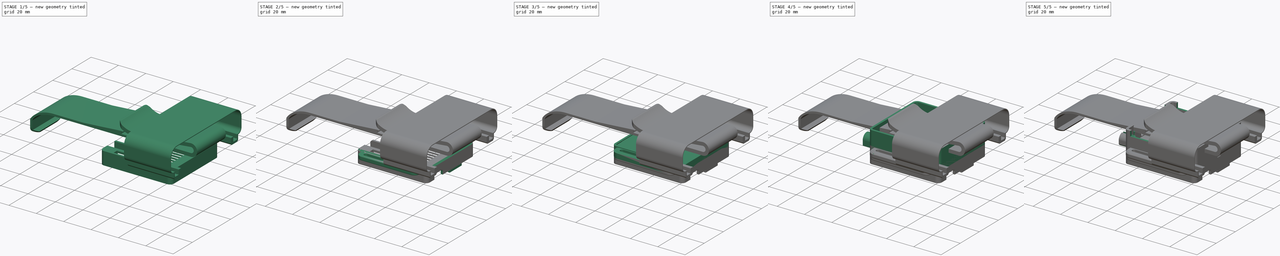
[diagram: build sequence overview — one tinted view per stage of 5, left to right]
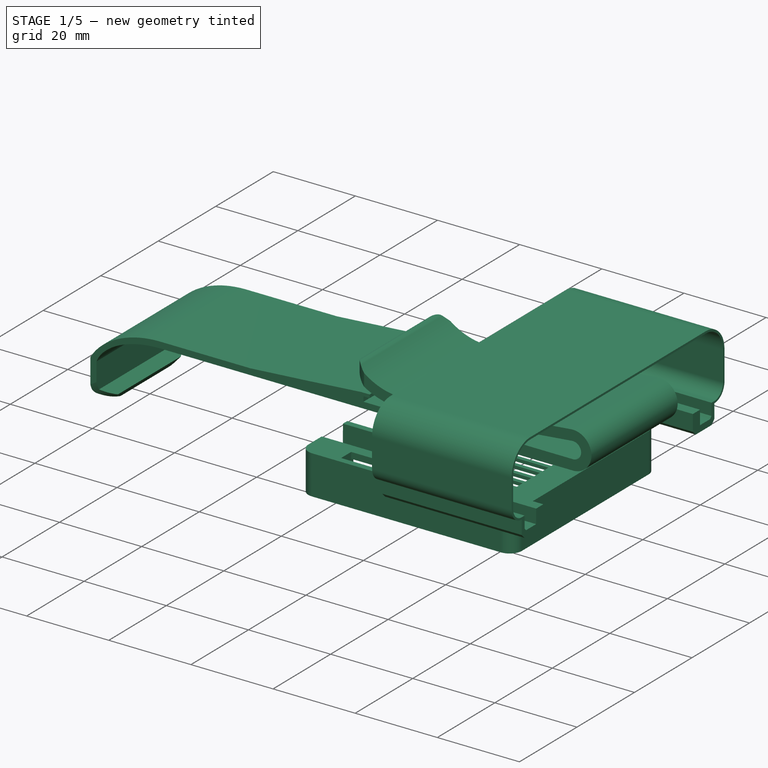
[diagram: stage 1 of 5 — iso view after this stage's code; geometry added in this stage tinted green]
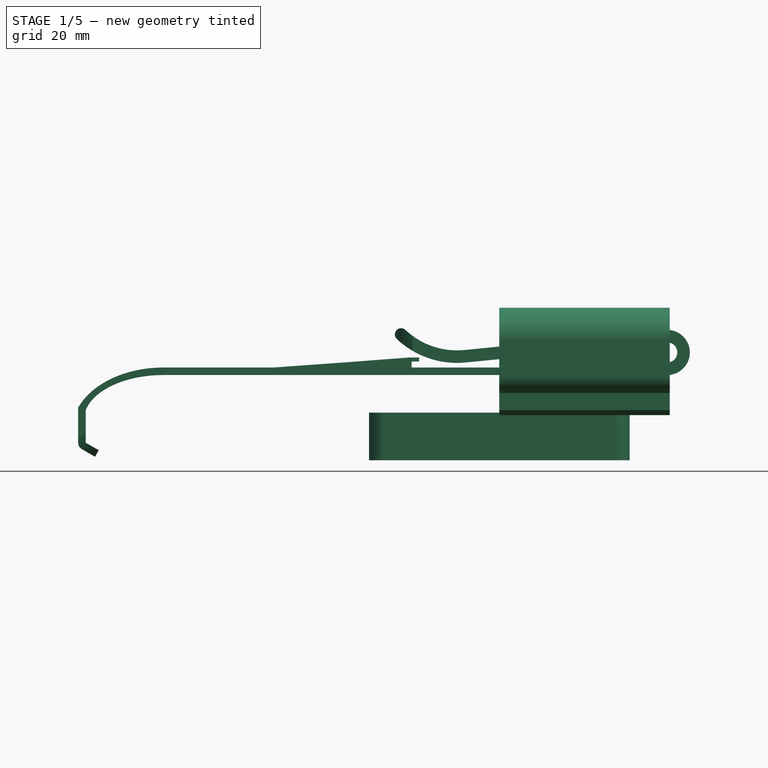
[diagram: stage 1 of 5 — front view after this stage's code; geometry added in this stage tinted green]
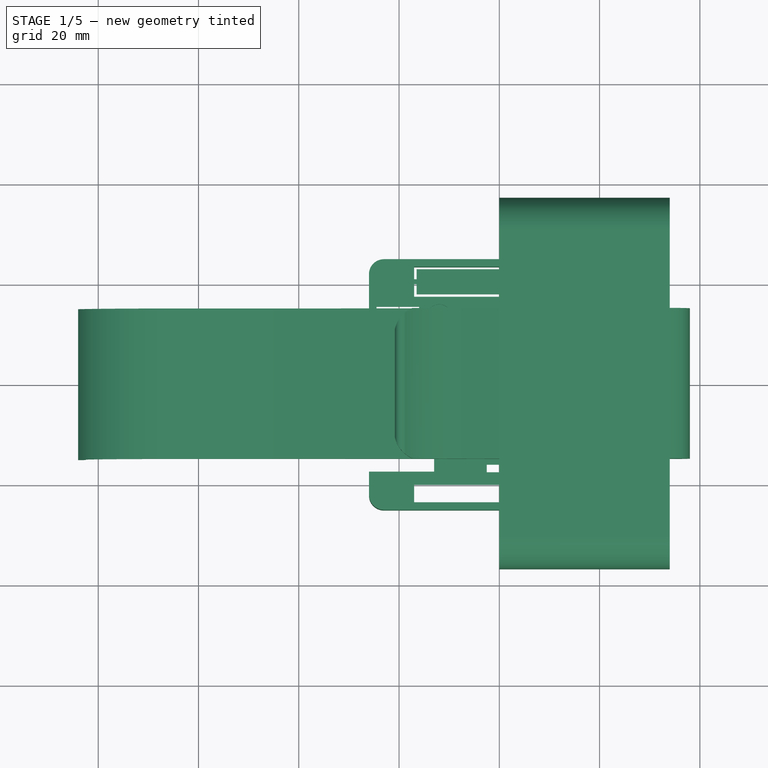
[diagram: stage 1 of 5 — top view after this stage's code; geometry added in this stage tinted green]
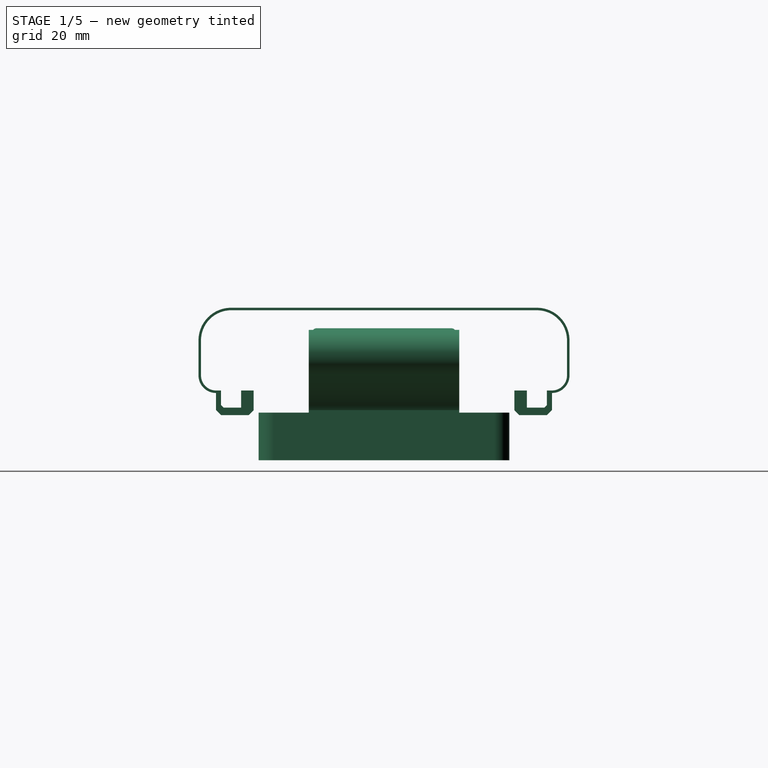
[diagram: stage 1 of 5 — right view after this stage's code; geometry added in this stage tinted green]
FCSTD DOCUMENT  (FreeCAD 0.17R12495 (Git))
Label: orange-pi-zero-case-jw
License: All rights reserved
LicenseURL: http://en.wikipedia.org/wiki/All_rights_reserved
objects: Sketcher::SketchObject×43, PartDesign::Pocket×23, PartDesign::Pad×20, PartDesign::Body×8, Part::Mirroring×3, PartDesign::Chamfer×3, Part::MultiFuse×2, PartDesign::Fillet×2, Part::Offset×1, Part::Thickness×1, Part::Feature×1, Part::Extrusion×1, Part::FeaturePython×1, Part::Chamfer×1, Part::Fillet×1, App::Part×1, App::DocumentObjectGroup×1, Image::ImagePlane×1
note: 154 computed .brp shape members not serialized (recipe doc carries the construction recipe); baked Part::Feature solids carry a one-line shape summary decoded from their .brp

FEATURE [PartDesign::Body] Body  label="henkelbody"
  Group = -> [Sketch013,Pad004,Fillet003]
  Origin = -> Origin013
  Tip = -> Pad004
FEATURE [App::Part] Part001  label="Henkel"
  Group = -> [Body,Body001]
  License = CC BY 3.0
  LicenseURL = http://creativecommons.org/licenses/by/3.0/
  Origin = -> Origin008
FEATURE [Sketcher::SketchObject] Sketch014  label="Sketch top face"
  MapMode = 5
  Support = -> [XY_Plane015]
  sketch-geometry (70):
    g0: ArcOfCircle CenterX=-22.9999 CenterY=22.0014 CenterZ=0 NormalX=0 NormalY=0 NormalZ=1 AngleXU=0 Radius=3 StartAngle=1.5708 EndAngle=3.14159
    g1: LineSegment StartX=-17 StartY=23.5 StartZ=0 EndX=-17 EndY=21 EndZ=0
    g2: LineSegment StartX=-17 StartY=21 StartZ=0 EndX=-16.5 EndY=21 EndZ=0
    g3: LineSegment StartX=-16.5 StartY=21 StartZ=0 EndX=-16.5 EndY=23 EndZ=0
    g4: LineSegment StartX=-16.5 StartY=23 StartZ=0 EndX=16.5 EndY=23 EndZ=0
    g5: LineSegment StartX=16.5 StartY=23 StartZ=0 EndX=16.5 EndY=21 EndZ=0
    g6: LineSegment StartX=16.5 StartY=21 StartZ=0 EndX=17 EndY=21 EndZ=0
    g7: LineSegment StartX=17 StartY=21 StartZ=0 EndX=17 EndY=23.5 EndZ=0
    g8: LineSegment StartX=17 StartY=23.5 StartZ=0 EndX=-17 EndY=23.5 EndZ=0
    g9: LineSegment StartX=-17 StartY=20 StartZ=0 EndX=-16.5 EndY=20 EndZ=0
    g10: LineSegment StartX=-16.5 StartY=20 StartZ=0 EndX=-16.5 EndY=18 EndZ=0
    g11: LineSegment StartX=-16.5 StartY=18 StartZ=0 EndX=16.5 EndY=18 EndZ=0
    g12: LineSegment StartX=16.5 StartY=18 StartZ=0 EndX=16.5 EndY=20 EndZ=0
    g13: LineSegment StartX=16.5 StartY=20 StartZ=0 EndX=17 EndY=20 EndZ=0
    g14: LineSegment StartX=17 StartY=20 StartZ=0 EndX=17 EndY=17.5 EndZ=0
    g15: LineSegment StartX=17 StartY=17.5 StartZ=0 EndX=-17 EndY=17.5 EndZ=0
    g16: LineSegment StartX=-17 StartY=17.5 StartZ=0 EndX=-17 EndY=20 EndZ=0
    g17: LineSegment StartX=-24.5 StartY=15.5 StartZ=0 EndX=-16 EndY=15.5 EndZ=0
    g18: LineSegment StartX=-16 StartY=15.5 StartZ=0 EndX=-16 EndY=12 EndZ=0
    g19: LineSegment StartX=-16 StartY=12 StartZ=0 EndX=-24.5 EndY=12 EndZ=0
    g20: LineSegment StartX=-24.5 StartY=12 StartZ=0 EndX=-24.5 EndY=15.5 EndZ=0
    g21: LineSegment StartX=-25.9999 StartY=22.0014 StartZ=0 EndX=-25.9954 EndY=-22.0003 EndZ=0
    g22: ArcOfCircle CenterX=-22.9954 CenterY=-22.0003 CenterZ=0 NormalX=0 NormalY=0 NormalZ=1 AngleXU=0 Radius=3 StartAngle=3.14159 EndAngle=4.69736
    g23: LineSegment StartX=17 StartY=-20 StartZ=0 EndX=-17 EndY=-20 EndZ=0
    g24: LineSegment StartX=-17 StartY=-20 StartZ=0 EndX=-17 EndY=-23.4991 EndZ=0
    g25: LineSegment StartX=-17 StartY=-23.4991 StartZ=0 EndX=17 EndY=-23.4991 EndZ=0
    g26: LineSegment StartX=17 StartY=-23.4991 StartZ=0 EndX=17 EndY=-20 EndZ=0
    g27: LineSegment StartX=-23.0404 StartY=-25 StartZ=0 EndX=23 EndY=-25 EndZ=0
    g28: ArcOfCircle CenterX=23 CenterY=-22 CenterZ=0 NormalX=0 NormalY=0 NormalZ=1 AngleXU=0 Radius=3 StartAngle=4.71239 EndAngle=6.28319
    g29: ArcOfCircle CenterX=23 CenterY=22.0014 CenterZ=0 NormalX=0 NormalY=0 NormalZ=1 AngleXU=0 Radius=3 StartAngle=0 EndAngle=1.5708
    g30: LineSegment StartX=-22.9999 StartY=25.0014 StartZ=0 EndX=23 EndY=25.0014 EndZ=0
    g31: LineSegment StartX=26 StartY=22.0014 StartZ=0 EndX=26 EndY=-22 EndZ=0
    g32: LineSegment StartX=19.5 StartY=-2.5 StartZ=0 EndX=-2.5 EndY=-2.5 EndZ=0
    g33: LineSegment StartX=19.5 StartY=-3.5 StartZ=0 EndX=-2.5 EndY=-3.5 EndZ=0
    g34: LineSegment StartX=-2.5 StartY=-3.5 StartZ=0 EndX=-2.5 EndY=-5.5 EndZ=0
    g35: LineSegment StartX=-2.5 StartY=-5.5 StartZ=0 EndX=19.5 EndY=-5.5 EndZ=0
    g36: LineSegment StartX=19.5 StartY=-5.5 StartZ=0 EndX=19.5 EndY=-3.5 EndZ=0
    g37: LineSegment StartX=-2.5 StartY=-6.5 StartZ=0 EndX=19.5 EndY=-6.5 EndZ=0
    g38: LineSegment StartX=19.5 StartY=-6.5 StartZ=0 EndX=19.5 EndY=-8.5 EndZ=0
    g39: LineSegment StartX=19.5 StartY=-8.5 StartZ=0 EndX=-2.5 EndY=-8.5 EndZ=0
    g40: LineSegment StartX=-2.5 StartY=-8.5 StartZ=0 EndX=-2.5 EndY=-6.5 EndZ=0
    g41: LineSegment StartX=19.5 StartY=-9.5 StartZ=0 EndX=-2.5 EndY=-9.5 EndZ=0
    g42: LineSegment StartX=-2.5 StartY=-9.5 StartZ=0 EndX=-2.5 EndY=-11.5 EndZ=0
    g43: LineSegment StartX=-2.5 StartY=-11.5 StartZ=0 EndX=19.5 EndY=-11.5 EndZ=0
    g44: LineSegment StartX=19.5 StartY=-11.5 StartZ=0 EndX=19.5 EndY=-9.5 EndZ=0
    g45: LineSegment StartX=-2.5 StartY=-12.5 StartZ=0 EndX=19.5 EndY=-12.5 EndZ=0
    g46: LineSegment StartX=19.5 StartY=-12.5 StartZ=0 EndX=19.5 EndY=-14.5 EndZ=0
    g47: LineSegment StartX=19.5 StartY=-14.5 StartZ=0 EndX=-2.5 EndY=-14.5 EndZ=0
    g48: LineSegment StartX=-2.5 StartY=-14.5 StartZ=0 EndX=-2.5 EndY=-12.5 EndZ=0
    g49: LineSegment StartX=19.5 StartY=-16 StartZ=0 EndX=-2.5 EndY=-16 EndZ=0
    g50: LineSegment StartX=19.5 StartY=0.5 StartZ=0 EndX=-2.5 EndY=0.5 EndZ=0
    g51: LineSegment StartX=-2.5 StartY=0.5 StartZ=0 EndX=-2.5 EndY=2.5 EndZ=0
    g52: LineSegment StartX=-2.5 StartY=-16 StartZ=0 EndX=-2.5 EndY=-17.5 EndZ=0
    g53: LineSegment StartX=-2.5 StartY=-17.5 StartZ=0 EndX=19.5 EndY=-17.5 EndZ=0
    g54: LineSegment StartX=19.5 StartY=-17.5 StartZ=0 EndX=19.5 EndY=-16 EndZ=0
    g55: LineSegment StartX=-2.5 StartY=-2.5 StartZ=0 EndX=-2.5 EndY=-0.605437 EndZ=0
    g56: LineSegment StartX=-2.5 StartY=-0.605437 StartZ=0 EndX=19.5 EndY=-0.605437 EndZ=0
    g57: LineSegment StartX=19.5 StartY=-0.605437 StartZ=0 EndX=19.5 EndY=-2.5 EndZ=0
    g58: LineSegment StartX=19.5 StartY=0.5 StartZ=0 EndX=19.5 EndY=2.5 EndZ=0
    g59: LineSegment StartX=19.5 StartY=2.5 StartZ=0 EndX=-2.5 EndY=2.5 EndZ=0
    g60: Circle CenterX=-12 CenterY=13.5 CenterZ=0 NormalX=0 NormalY=0 NormalZ=1 AngleXU=0 Radius=2.5
    g61: LineSegment [constr] StartX=-23.0404 StartY=-25 StartZ=0 EndX=-22.9954 EndY=-25.0007 EndZ=0
    g62: LineSegment [constr] StartX=-22.9954 StartY=-25.0007 StartZ=0 EndX=-22.9954 EndY=-22.0003 EndZ=0
    g63: LineSegment [constr] StartX=-22.9954 StartY=-22.0003 StartZ=0 EndX=-25.9954 EndY=-22.0003 EndZ=0
    g64: LineSegment [constr] StartX=-22.9999 StartY=25.0014 StartZ=0 EndX=-22.9999 EndY=22.0014 EndZ=0
    g65: LineSegment [constr] StartX=-22.9999 StartY=22.0014 StartZ=0 EndX=-25.9999 EndY=22.0014 EndZ=0
    g66: LineSegment [constr] StartX=23 StartY=25.0014 StartZ=0 EndX=23 EndY=22.0014 EndZ=0
    g67: LineSegment [constr] StartX=23 StartY=22.0014 StartZ=0 EndX=26 EndY=22.0014 EndZ=0
    g68: LineSegment [constr] StartX=26 StartY=-22 StartZ=0 EndX=23 EndY=-22 EndZ=0
    g69: LineSegment [constr] StartX=23 StartY=-22 StartZ=0 EndX=23 EndY=-25 EndZ=0
  constraints (141):
    c: Vertical(g1)
    c: Coincident(g1,g2)
    c: Horizontal(g2)
    c: Coincident(g2,g3)
    c: Vertical(g3)
    c: Coincident(g3,g4)
    c: Horizontal(g4)
    c: Coincident(g4,g5)
    c: Vertical(g5)
    c: Coincident(g5,g6)
    c: Horizontal(g6)
    c: Coincident(g6,g7)
    c: Vertical(g7)
    c: Coincident(g7,g8)
    c: Coincident(g8,g1)
    c: Horizontal(g8)
    c: Horizontal(g9)
    c: Coincident(g9,g10)
    c: Vertical(g10)
    c: Coincident(g10,g11)
    c: Horizontal(g11)
    c: Coincident(g11,g12)
    c: Vertical(g12)
    c: Coincident(g12,g13)
    c: Horizontal(g13)
    c: Coincident(g13,g14)
    c: Vertical(g14)
    c: Coincident(g14,g15)
    c: Horizontal(g15)
    c: Coincident(g15,g16)
    c: Coincident(g16,g9)
    c: Vertical(g16)
    c: Coincident(g17,g18)
    c: Coincident(g18,g19)
    c: Coincident(g19,g20)
    c: Coincident(g20,g17)
    c: Horizontal(g17)
    c: Horizontal(g19)
    c: Vertical(g18)
    c: Vertical(g20)
    c: Coincident(g22,g21)
    c: Coincident(g23,g24)
    c: Coincident(g24,g25)
    c: Coincident(g25,g26)
    c: Coincident(g26,g23)
    c: Horizontal(g23)
    c: Horizontal(g25)
    c: Vertical(g24)
    c: Vertical(g26)
    c: Coincident(g27,g22)
    c: Horizontal(g27)
    c: Coincident(g28,g27)
    c: Coincident(g30,g0)
    c: Coincident(g30,g29)
    c: Horizontal(g30)
    c: Coincident(g31,g29)
    c: Coincident(g31,g28)
    c: Vertical(g31)
    c: Horizontal(g32)
    c: Coincident(g33,g34)
    c: Coincident(g34,g35)
    c: Coincident(g35,g36)
    c: Coincident(g36,g33)
    c: Horizontal(g33)
    c: Horizontal(g35)
    c: Vertical(g34)
    c: Vertical(g36)
    c: Coincident(g37,g38)
    c: Coincident(g38,g39)
    c: Coincident(g39,g40)
    c: Coincident(g40,g37)
    c: Horizontal(g37)
    c: Horizontal(g39)
    c: Vertical(g38)
    c: Vertical(g40)
    c: Coincident(g41,g42)
    c: Coincident(g42,g43)
    c: Coincident(g43,g44)
    c: Coincident(g44,g41)
    c: Horizontal(g41)
    c: Horizontal(g43)
    c: Vertical(g44)
    c: Coincident(g45,g46)
    c: Coincident(g46,g47)
    c: Coincident(g47,g48)
    c: Coincident(g48,g45)
    c: Horizontal(g45)
    c: Horizontal(g47)
    c: Vertical(g46)
    c: Vertical(g48)
    c: Horizontal(g49)
    c: Coincident(g50,g51)
    c: Horizontal(g50)
    c: Vertical(g51)
    c: Coincident(g49,g52)
    c: Vertical(g52)
    c: Coincident(g52,g53)
    c: Coincident(g53,g54)
    c: Coincident(g54,g49)
    c: Coincident(g32,g55)
    c: Vertical(g55)
    c: Coincident(g55,g56)
    c: Horizontal(g56)
    c: Coincident(g56,g57)
    c: Coincident(g57,g32)
    c: Vertical(g57)
    c: Coincident(g50,g58)
    c: Vertical(g58)
    c: Coincident(g58,g59)
    c: Coincident(g59,g51)
    c: Radius(g60) = 2.5
    c: Equal(g22,g0)
    c: Equal(g0,g29)
    c: Equal(g29,g28)
    c: Radius(g28) = 3
    c: Tangent(g22,g61) = -1.5708
    c: Coincident(g61,g62)
    c: Coincident(g62,g22)
    c: Vertical(g62)
    c: Coincident(g62,g63)
    c: Coincident(g63,g21)
    c: Horizontal(g63)
    c: Coincident(g64,g0)
    c: Coincident(g64,g65)
    c: Coincident(g65,g0)
    c: Horizontal(g65)
    c: Vertical(g64)
    c: Coincident(g21,g0)
    c: Coincident(g0,g64)
    c: Coincident(g66,g29)
    c: Coincident(g66,g67)
    c: Coincident(g67,g29)
    c: Coincident(g66,g29)
    c: Vertical(g66)
    c: Horizontal(g67)
    c: Coincident(g28,g68)
    c: Coincident(g68,g69)
    c: Coincident(g69,g27)
    c: Coincident(g28,g68)
    c: Horizontal(g68)
    c: Vertical(g69)
FEATURE [PartDesign::Pad] Pad006
  Length = 1.5
  Length2 = 100
  Profile = -> Sketch014
  Type = 0
FEATURE [Sketcher::SketchObject] Sketch016  label="Sketch_wall"
  MapMode = 5
  Placement = pos=(0,0,0) rot=(1,0,0;3.14159rad)
  Support = -> [Pad006]
  sketch-geometry (24):
    g0: ArcOfCircle CenterX=-23 CenterY=22 CenterZ=0 NormalX=0 NormalY=0 NormalZ=1 AngleXU=0 Radius=1.5 StartAngle=1.5708 EndAngle=3.14159
    g1: ArcOfCircle CenterX=-23 CenterY=22 CenterZ=0 NormalX=0 NormalY=0 NormalZ=1 AngleXU=0 Radius=3 StartAngle=1.5708 EndAngle=3.14159
    g2: ArcOfCircle CenterX=23 CenterY=22 CenterZ=0 NormalX=0 NormalY=0 NormalZ=1 AngleXU=0 Radius=1.5 StartAngle=0 EndAngle=1.5708
    g3: ArcOfCircle CenterX=23 CenterY=22 CenterZ=0 NormalX=0 NormalY=0 NormalZ=1 AngleXU=0 Radius=3 StartAngle=0 EndAngle=1.5708
    g4: LineSegment StartX=-23 StartY=25 StartZ=0 EndX=23 EndY=25 EndZ=0
    g5: LineSegment StartX=23 StartY=23.5 StartZ=0 EndX=-23 EndY=23.5 EndZ=0
    g6: ArcOfCircle CenterX=-23 CenterY=-22 CenterZ=0 NormalX=0 NormalY=0 NormalZ=1 AngleXU=0 Radius=3 StartAngle=3.14159 EndAngle=4.71239
    g7: ArcOfCircle CenterX=-23 CenterY=-22 CenterZ=0 NormalX=0 NormalY=0 NormalZ=1 AngleXU=0 Radius=1.5 StartAngle=3.14159 EndAngle=4.71239
    g8: LineSegment StartX=-26 StartY=-22 StartZ=0 EndX=-26 EndY=22 EndZ=0
    g9: LineSegment StartX=-24.5 StartY=22 StartZ=0 EndX=-24.5 EndY=-22 EndZ=0
    g10: ArcOfCircle CenterX=23 CenterY=-22 CenterZ=0 NormalX=0 NormalY=0 NormalZ=1 AngleXU=0 Radius=1.5 StartAngle=4.71239 EndAngle=6.28319
    g11: ArcOfCircle CenterX=23 CenterY=-22 CenterZ=0 NormalX=0 NormalY=0 NormalZ=1 AngleXU=0 Radius=3 StartAngle=4.71239 EndAngle=6.28319
    g12: LineSegment StartX=-23 StartY=-25 StartZ=0 EndX=23 EndY=-25 EndZ=0
    g13: LineSegment StartX=23 StartY=-23.5 StartZ=0 EndX=-23 EndY=-23.5 EndZ=0
    g14: LineSegment StartX=24.5 StartY=-22 StartZ=0 EndX=24.5 EndY=22 EndZ=0
    g15: LineSegment StartX=26 StartY=22 StartZ=0 EndX=26 EndY=-22 EndZ=0
    g16: LineSegment [constr] StartX=-26 StartY=-22 StartZ=0 EndX=-23 EndY=-22 EndZ=0
    g17: LineSegment [constr] StartX=-23 StartY=-22 StartZ=0 EndX=-23 EndY=-25 EndZ=0
    g18: LineSegment [constr] StartX=23 StartY=-25 StartZ=0 EndX=23 EndY=-22 EndZ=0
    g19: LineSegment [constr] StartX=23 StartY=-22 StartZ=0 EndX=26 EndY=-22 EndZ=0
    g20: LineSegment [constr] StartX=26 StartY=22 StartZ=0 EndX=23 EndY=22 EndZ=0
    g21: LineSegment [constr] StartX=23 StartY=22 StartZ=0 EndX=23 EndY=25 EndZ=0
    g22: LineSegment [constr] StartX=-23 StartY=25 StartZ=0 EndX=-23 EndY=22 EndZ=0
    g23: LineSegment [constr] StartX=-23 StartY=22 StartZ=0 EndX=-26 EndY=22 EndZ=0
  constraints (60):
    c: Coincident(g1,g0)
    c: Coincident(g3,g2)
    c: Coincident(g4,g1)
    c: Coincident(g4,g3)
    c: Coincident(g5,g2)
    c: Coincident(g5,g0)
    c: Equal(g0,g2)
    c: Radius(g2) = 1.5
    c: Radius(g3) = 3
    c: Coincident(g7,g6)
    c: Coincident(g8,g6)
    c: Coincident(g8,g1)
    c: Coincident(g9,g0)
    c: Coincident(g9,g7)
    c: Coincident(g12,g6)
    c: Coincident(g12,g11)
    c: Coincident(g13,g10)
    c: Coincident(g13,g7)
    c: Coincident(g11,g10)
    c: Coincident(g14,g10)
    c: Coincident(g14,g2)
    c: Coincident(g15,g3)
    c: Coincident(g15,g11)
    c: Coincident(g6,g16)
    c: Coincident(g16,g17)
    c: Coincident(g17,g6)
    c: Vertical(g17)
    c: Coincident(g16,g6)
    c: Horizontal(g16)
    c: PointOnObject(g7,g16)
    c: PointOnObject(g7,g17)
    c: Coincident(g11,g18)
    c: Coincident(g18,g19)
    c: Coincident(g19,g11)
    c: PointOnObject(g10,g19)
    c: PointOnObject(g10,g18)
    c: Coincident(g18,g10)
    c: Vertical(g18)
    c: Horizontal(g19)
    c: Coincident(g3,g20)
    c: Coincident(g20,g21)
    c: Vertical(g21)
    c: Coincident(g3,g21)
    c: PointOnObject(g2,g20)
    c: PointOnObject(g2,g21)
    c: Coincident(g20,g2)
    c: Horizontal(g20)
    c: Coincident(g1,g22)
    c: Coincident(g22,g23)
    c: Coincident(g23,g1)
    c: Horizontal(g23)
    c: Vertical(g22)
    c: Coincident(g0,g22)
    c: PointOnObject(g0,g23)
    c: PointOnObject(g0,g22)
    c: Equal(g0,g7)
    c: Equal(g7,g10)
    c: Equal(g11,g6)
    c: Equal(g6,g1)
    c: Equal(g1,g3)
FEATURE [PartDesign::Pad] Pad007
  BaseFeature = -> Pad006
  Length = 8
  Length2 = 100
  Profile = -> Sketch016
  Type = 0
FEATURE [Sketcher::SketchObject] Sketch017  label="Sketch_boltS"
  MapMode = 5
  Placement = pos=(0,0,0) rot=(1,0,0;3.14159rad)
  Support = -> [Pad007]
  sketch-geometry (8):
    g0: Circle CenterX=-21 CenterY=20 CenterZ=0 NormalX=0 NormalY=0 NormalZ=1 AngleXU=0 Radius=2.75
    g1: Circle CenterX=-21 CenterY=20 CenterZ=0 NormalX=0 NormalY=0 NormalZ=1 AngleXU=0 Radius=1.25
    g2: Circle CenterX=21 CenterY=20 CenterZ=0 NormalX=0 NormalY=0 NormalZ=1 AngleXU=0 Radius=2.75
    g3: Circle CenterX=21 CenterY=20 CenterZ=0 NormalX=0 NormalY=0 NormalZ=1 AngleXU=0 Radius=1.25
    g4: Circle CenterX=21 CenterY=-20 CenterZ=0 NormalX=0 NormalY=0 NormalZ=1 AngleXU=0 Radius=2.75
    g5: Circle CenterX=21 CenterY=-20 CenterZ=0 NormalX=0 NormalY=0 NormalZ=1 AngleXU=0 Radius=1.25
    g6: Circle CenterX=-21 CenterY=-20 CenterZ=0 NormalX=0 NormalY=0 NormalZ=1 AngleXU=0 Radius=2.75
    g7: Circle CenterX=-21 CenterY=-20 CenterZ=0 NormalX=0 NormalY=0 NormalZ=1 AngleXU=0 Radius=1.25
  constraints (12):
    c: Coincident(g0,g1)
    c: Coincident(g2,g3)
    c: Coincident(g4,g5)
    c: Coincident(g6,g7)
    c: Equal(g7,g1)
    c: Equal(g1,g3)
    c: Equal(g3,g5)
    c: Equal(g2,g4)
    c: Equal(g4,g6)
    c: Equal(g6,g0)
    c: Radius(g3) = 1.25
    c: Radius(g2) = 2.75
FEATURE [PartDesign::Pad] Pad008
  BaseFeature = -> Pad007
  Length = 7.8
  Length2 = 100
  Profile = -> Sketch017
  Type = 0
FEATURE [Sketcher::SketchObject] Sketch018  label="top thinning"
  MapMode = 5
  Placement = pos=(0,0,0) rot=(1,0,0;3.14159rad)
  Support = -> [Pad008]
  sketch-geometry (8):
    g0: LineSegment StartX=-2.5 StartY=17.5 StartZ=0 EndX=19.5 EndY=17.5 EndZ=0
    g1: LineSegment StartX=19.5 StartY=17.5 StartZ=0 EndX=19.5 EndY=-2.5 EndZ=0
    g2: LineSegment StartX=19.5 StartY=-2.5 StartZ=0 EndX=-2.5 EndY=-2.5 EndZ=0
    g3: LineSegment StartX=-2.5 StartY=-2.5 StartZ=0 EndX=-2.5 EndY=17.5 EndZ=0
    g4: LineSegment StartX=-17 StartY=-17.5 StartZ=0 EndX=17 EndY=-17.5 EndZ=0
    g5: LineSegment StartX=17 StartY=-17.5 StartZ=0 EndX=17 EndY=-23.5 EndZ=0
    g6: LineSegment StartX=17 StartY=-23.5 StartZ=0 EndX=-17 EndY=-23.5 EndZ=0
    g7: LineSegment StartX=-17 StartY=-23.5 StartZ=0 EndX=-17 EndY=-17.5 EndZ=0
  constraints (16):
    c: Coincident(g0,g1)
    c: Coincident(g1,g2)
    c: Coincident(g2,g3)
    c: Coincident(g3,g0)
    c: Horizontal(g0)
    c: Horizontal(g2)
    c: Vertical(g1)
    c: Vertical(g3)
    c: Coincident(g4,g5)
    c: Coincident(g5,g6)
    c: Coincident(g6,g7)
    c: Coincident(g7,g4)
    c: Horizontal(g4)
    c: Horizontal(g6)
    c: Vertical(g5)
    c: Vertical(g7)
FEATURE [PartDesign::Pocket] Pocket009
  BaseFeature = -> Pad008
  Length = 0.75
  Profile = -> Sketch018
  Type = 0
FEATURE [Sketcher::SketchObject] Sketch019  label="top thickening"
  ExternalGeometry = -> [Pocket009]
  MapMode = 5
  Placement = pos=(0,0,0) rot=(1,0,0;3.14159rad)
  Support = -> [Pocket009]
  sketch-geometry (5):
    g0: Circle CenterX=-12 CenterY=-13.5 CenterZ=0 NormalX=0 NormalY=0 NormalZ=1 AngleXU=0 Radius=4
    g1: LineSegment StartX=-26 StartY=10 StartZ=0 EndX=-7 EndY=10 EndZ=0
    g2: LineSegment StartX=-7 StartY=10 StartZ=0 EndX=-7 EndY=8.5 EndZ=0
    g3: LineSegment StartX=-7 StartY=8.5 StartZ=0 EndX=-26 EndY=8.5 EndZ=0
    g4: LineSegment StartX=-26 StartY=8.5 StartZ=0 EndX=-26 EndY=10 EndZ=0
  constraints (9):
    c: Radius(g0) = 4
    c: Coincident(g1,g2)
    c: Coincident(g2,g3)
    c: Coincident(g3,g4)
    c: Coincident(g4,g1)
    c: Horizontal(g1)
    c: Horizontal(g3)
    c: Vertical(g2)
    c: Vertical(g4)
FEATURE [PartDesign::Pad] Pad009
  BaseFeature = -> Pocket009
  Length = 4
  Length2 = 100
  Profile = -> Sketch019
  Type = 0
FEATURE [Sketcher::SketchObject] Sketch020  label="cut top bottom"
  MapMode = 5
  Placement = pos=(0,0,0) rot=(1,0,0;3.14159rad)
  Support = -> [Pad009]
  sketch-geometry (16):
    g0: LineSegment StartX=-26 StartY=8.5 StartZ=0 EndX=-10.5 EndY=8.5 EndZ=0
    g1: LineSegment StartX=-10.5 StartY=8.5 StartZ=0 EndX=-10.5 EndY=-9 EndZ=0
    g2: LineSegment StartX=-10.5 StartY=-9 StartZ=0 EndX=-11.2 EndY=-9 EndZ=0
    g3: LineSegment StartX=-26 StartY=-9 StartZ=0 EndX=-26 EndY=8.5 EndZ=0
    g4: LineSegment StartX=-26 StartY=17.375 StartZ=0 EndX=-13 EndY=17.375 EndZ=0
    g5: LineSegment StartX=-13 StartY=17.375 StartZ=0 EndX=-13 EndY=10 EndZ=0
    g6: LineSegment StartX=-13 StartY=10 StartZ=0 EndX=-26 EndY=10 EndZ=0
    g7: LineSegment StartX=-26 StartY=10 StartZ=0 EndX=-26 EndY=17.375 EndZ=0
    g8: LineSegment StartX=21.5 StartY=-16.5 StartZ=0 EndX=24.5 EndY=-16.5 EndZ=0
    g9: LineSegment StartX=24.5 StartY=-16.5 StartZ=0 EndX=24.5 EndY=-9 EndZ=0
    g10: LineSegment StartX=24.5 StartY=-9 StartZ=0 EndX=21.5 EndY=-9 EndZ=0
    g11: LineSegment StartX=21.5 StartY=-9 StartZ=0 EndX=21.5 EndY=-16.5 EndZ=0
    g12: ArcOfCircle CenterX=-12 CenterY=-13.5 CenterZ=0 NormalX=0 NormalY=0 NormalZ=1 AngleXU=0 Radius=0.8 StartAngle=3.14159 EndAngle=6.28319
    g13: LineSegment StartX=-12.8 StartY=-9 StartZ=0 EndX=-12.8 EndY=-13.5 EndZ=0
    g14: LineSegment StartX=-11.2 StartY=-9 StartZ=0 EndX=-11.2 EndY=-13.5 EndZ=0
    g15: LineSegment StartX=-12.8 StartY=-9 StartZ=0 EndX=-26 EndY=-9 EndZ=0
  constraints (32):
    c: Coincident(g0,g1)
    c: Coincident(g1,g2)
    c: Coincident(g15,g3)
    c: Coincident(g3,g0)
    c: Horizontal(g0)
    c: Horizontal(g2)
    c: Vertical(g1)
    c: Vertical(g3)
    c: Coincident(g4,g5)
    c: Coincident(g5,g6)
    c: Coincident(g6,g7)
    c: Coincident(g7,g4)
    c: Horizontal(g4)
    c: Horizontal(g6)
    c: Vertical(g5)
    c: Vertical(g7)
    c: Coincident(g8,g9)
    c: Coincident(g9,g10)
    c: Coincident(g10,g11)
    c: Coincident(g11,g8)
    c: Horizontal(g8)
    c: Horizontal(g10)
    c: Vertical(g9)
    c: Vertical(g11)
    c: Tangent(g13,g12)
    c: Tangent(g14,g12)
    c: Vertical(g13)
    c: DistanceX(g12,g12) = 1.6
    c: Vertical(g14)
    c: Tangent(g2,g15)
    c: Coincident(g2,g14)
    c: Coincident(g13,g15)
FEATURE [PartDesign::Pocket] Pocket
  BaseFeature = -> Pad009
  Length = 5
  Midplane = true
  Profile = -> Sketch020
  Type = 1
FEATURE [PartDesign::Body] Body004  label="bot case"
  Group = -> [Sketch045,Pad017,Sketch047,Sketch048,Sketch049,Sketch054,Pocket027,Pad020,Sketch055,Pad021,Pocket028,Pocket029,Chamfer005]
  Origin = -> Origin
  Placement = pos=(0,0,-0.5) rot=(0,0,1;0rad)
  Tip = -> Pocket029
FEATURE [App::DocumentObjectGroup] Group  label="old case with screws"
  Group = -> [Body002,Part001,Fillet,Fusion]
FEATURE [Sketcher::SketchObject] Sketch056
  MapMode = 5
  Placement = pos=(0,0,0) rot=(0.57735,0.57735,0.57735;2.0944rad)
  Support = -> [YZ_Plane019]
  sketch-geometry (38):
    g0: LineSegment StartX=-30.5 StartY=22.4159 StartZ=0 EndX=30.5 EndY=22.4159 EndZ=0
    g1: LineSegment StartX=37 StartY=15.9159 StartZ=0 EndX=37 EndY=8.91589 EndZ=0
    g2: LineSegment [constr] StartX=33.5 StartY=5.41589 StartZ=0 EndX=-33.5 EndY=5.41589 EndZ=0
    g3: LineSegment StartX=-37 StartY=8.91589 StartZ=0 EndX=-37 EndY=15.9159 EndZ=0
    g4: ArcOfCircle CenterX=-30.5 CenterY=15.9159 CenterZ=0 NormalX=0 NormalY=0 NormalZ=1 AngleXU=0 Radius=6.5 StartAngle=1.5708 EndAngle=3.14159
    g5: ArcOfCircle CenterX=-33.5 CenterY=8.91589 CenterZ=0 NormalX=0 NormalY=0 NormalZ=1 AngleXU=0 Radius=3.5 StartAngle=3.14159 EndAngle=4.71239
    g6: ArcOfCircle CenterX=33.5 CenterY=8.91589 CenterZ=0 NormalX=0 NormalY=0 NormalZ=1 AngleXU=0 Radius=3.5 StartAngle=4.71239 EndAngle=6.28319
    g7: ArcOfCircle CenterX=30.5 CenterY=15.9159 CenterZ=0 NormalX=0 NormalY=0 NormalZ=1 AngleXU=0 Radius=6.5 StartAngle=0 EndAngle=1.5708
    g8: LineSegment StartX=-30.5 StartY=21.9159 StartZ=0 EndX=30.5 EndY=21.9159 EndZ=0
    g9: LineSegment StartX=36.5 StartY=15.9159 StartZ=0 EndX=36.5 EndY=8.91589 EndZ=0
    g10: LineSegment [constr] StartX=33.5 StartY=5.91589 StartZ=0 EndX=-33.5 EndY=5.91589 EndZ=0
    g11: LineSegment StartX=-36.5 StartY=8.91589 StartZ=0 EndX=-36.5 EndY=15.9159 EndZ=0
    g12: ArcOfCircle CenterX=-30.5 CenterY=15.9159 CenterZ=0 NormalX=0 NormalY=0 NormalZ=1 AngleXU=0 Radius=6 StartAngle=1.5708 EndAngle=3.14159
    g13: ArcOfCircle CenterX=-33.5 CenterY=8.91589 CenterZ=0 NormalX=0 NormalY=0 NormalZ=1 AngleXU=0 Radius=3 StartAngle=3.14159 EndAngle=4.71239
    g14: ArcOfCircle CenterX=33.5 CenterY=8.91589 CenterZ=0 NormalX=0 NormalY=0 NormalZ=1 AngleXU=0 Radius=3 StartAngle=4.71239 EndAngle=6.28319
    g15: ArcOfCircle CenterX=30.5 CenterY=15.9159 CenterZ=0 NormalX=0 NormalY=0 NormalZ=1 AngleXU=0 Radius=6 StartAngle=0 EndAngle=1.5708
    g16: LineSegment StartX=-33.5 StartY=5.41589 StartZ=0 EndX=-33.5 EndY=2 EndZ=0
    g17: LineSegment StartX=-33.5 StartY=2 StartZ=0 EndX=-32.5 EndY=1 EndZ=0
    g18: LineSegment StartX=-32.5 StartY=1 StartZ=0 EndX=-27 EndY=1 EndZ=0
    g19: LineSegment StartX=-27 StartY=1 StartZ=0 EndX=-26 EndY=2 EndZ=0
    g20: LineSegment StartX=-26 StartY=2 StartZ=0 EndX=-26 EndY=5.91589 EndZ=0
    g21: LineSegment StartX=-26 StartY=5.91589 StartZ=0 EndX=-28.5 EndY=5.91589 EndZ=0
    g22: LineSegment StartX=-28.5 StartY=5.91589 StartZ=0 EndX=-28.5 EndY=2.5 EndZ=0
    g23: LineSegment StartX=-28.5 StartY=2.5 StartZ=0 EndX=-32 EndY=2.5 EndZ=0
    g24: LineSegment StartX=-32 StartY=2.5 StartZ=0 EndX=-32.5 EndY=3 EndZ=0
    g25: LineSegment StartX=-32.5 StartY=3 StartZ=0 EndX=-32.5 EndY=5.91589 EndZ=0
    g26: LineSegment StartX=-32.5 StartY=5.91589 StartZ=0 EndX=-33.5 EndY=5.91589 EndZ=0
    g27: LineSegment StartX=32.5 StartY=1 StartZ=0 EndX=27 EndY=1 EndZ=0
    g28: LineSegment StartX=27 StartY=1 StartZ=0 EndX=26 EndY=2 EndZ=0
    g29: LineSegment StartX=26 StartY=2 StartZ=0 EndX=26 EndY=5.91589 EndZ=0
    g30: LineSegment StartX=26 StartY=5.91589 StartZ=0 EndX=28.5 EndY=5.91589 EndZ=0
    g31: LineSegment StartX=28.5 StartY=5.91589 StartZ=0 EndX=28.5 EndY=2.5 EndZ=0
    g32: LineSegment StartX=28.5 StartY=2.5 StartZ=0 EndX=32 EndY=2.5 EndZ=0
    g33: LineSegment StartX=32 StartY=2.5 StartZ=0 EndX=32.5 EndY=3 EndZ=0
    g34: LineSegment StartX=32.5 StartY=3 StartZ=0 EndX=32.5 EndY=5.91589 EndZ=0
    g35: LineSegment StartX=32.5 StartY=5.91589 StartZ=0 EndX=33.5 EndY=5.91589 EndZ=0
    g36: LineSegment StartX=33.5 StartY=5.41589 StartZ=0 EndX=33.5 EndY=2 EndZ=0
    g37: LineSegment StartX=32.5 StartY=1 StartZ=0 EndX=33.5 EndY=2 EndZ=0
  constraints (79):
    c: Horizontal(g0)
    c: Horizontal(g2)
    c: Vertical(g1)
    c: Vertical(g3)
    c: Tangent(g0,g4) = 1.5708
    c: Tangent(g3,g4) = 1.5708
    c: Tangent(g2,g5) = 1.5708
    c: Tangent(g3,g5) = 1.5708
    c: Tangent(g1,g6) = 1.5708
    c: Tangent(g2,g6) = 1.5708
    c: Tangent(g0,g7) = 1.5708
    c: Tangent(g1,g7) = 1.5708
    c: DistanceX(g3,g1) = 74
    c: DistanceY(g2,g0) = 17
    c: Equal(g4,g7)
    c: Equal(g5,g6)
    c: Radius(g7) = 6.5
    c: Radius(g6) = 3.5
    c: Symmetric(g2,g2,g-2)
    c: Horizontal(g8)
    c: Horizontal(g10)
    c: Vertical(g9)
    c: Vertical(g11)
    c: Tangent(g8,g12) = 1.5708
    c: Tangent(g11,g12) = 1.5708
    c: Tangent(g10,g13) = 1.5708
    c: Tangent(g11,g13) = 1.5708
    c: Tangent(g9,g14) = 1.5708
    c: Tangent(g10,g14) = 1.5708
    c: Tangent(g8,g15) = 1.5708
    c: Tangent(g9,g15) = 1.5708
    c: DistanceX(g11,g9) = 73
    c: DistanceY(g10,g8) = 16
    c: Equal(g12,g15)
    c: Equal(g13,g14)
    c: Radius(g15) = 6
    c: Radius(g14) = 3
    c: Coincident(g15,g7)
    c: Coincident(g2,g16)
    c: Vertical(g16)
    c: Coincident(g16,g17)
    c: Coincident(g17,g18)
    c: Horizontal(g18)
    c: Coincident(g18,g19)
    c: Coincident(g19,g20)
    c: PointOnObject(g20,g10)
    c: Vertical(g20)
    c: Coincident(g20,g21)
    c: PointOnObject(g21,g10)
    c: Coincident(g21,g22)
    c: Vertical(g22)
    c: Coincident(g22,g23)
    c: Horizontal(g23)
    c: Coincident(g23,g24)
    c: Coincident(g24,g25)
    c: PointOnObject(g25,g10)
    c: Vertical(g25)
    c: Coincident(g25,g26)
    c: Coincident(g26,g10)
    c: Horizontal(g27)
    c: Coincident(g27,g28)
    c: Coincident(g28,g29)
    c: Vertical(g29)
    c: Coincident(g29,g30)
    c: Horizontal(g30)
    c: Coincident(g30,g31)
    c: Vertical(g31)
    c: Coincident(g31,g32)
    c: Horizontal(g32)
    c: Coincident(g32,g33)
    c: Coincident(g33,g34)
    c: Vertical(g34)
    c: Coincident(g35,g34)
    c: Coincident(g35,g10)
    c: Horizontal(g35)
    c: Coincident(g36,g2)
    c: Vertical(g36)
    c: Coincident(g37,g27)
    c: Coincident(g37,g36)
FEATURE [PartDesign::Pad] Pad022
  Length = 34
  Length2 = 100
  Placement = pos=(0,0,0) rot=(0.57735,0.57735,0.57735;2.0944rad)
  Profile = -> Sketch056
  Type = 0
FEATURE [Sketcher::SketchObject] Sketch057
  ExternalGeometry = -> [Pad022]
  MapMode = 5
  Placement = pos=(0,-26,0) rot=(0.57735,0.57735,0.57735;4.18879rad)
  Support = -> [Pad022]
  sketch-geometry (4):
    g0: LineSegment StartX=2 StartY=22 StartZ=0 EndX=5.91589 EndY=22 EndZ=0
    g1: LineSegment StartX=5.91589 StartY=22 StartZ=0 EndX=5.91589 EndY=12 EndZ=0
    g2: LineSegment StartX=5.91589 StartY=12 StartZ=0 EndX=2 EndY=12 EndZ=0
    g3: LineSegment StartX=2 StartY=12 StartZ=0 EndX=2 EndY=22 EndZ=0
  constraints (9):
    c: Coincident(g0,g1)
    c: Coincident(g1,g2)
    c: Coincident(g2,g3)
    c: Coincident(g3,g0)
    c: Horizontal(g0)
    c: Horizontal(g2)
    c: Vertical(g1)
    c: Vertical(g3)
    c: PointOnObject(g0,g-3)
FEATURE [PartDesign::Pocket] Pocket030
  BaseFeature = -> Pad022
  Length = 5
  Placement = pos=(0,0,0) rot=(0.57735,0.57735,0.57735;2.0944rad)
  Profile = -> Sketch057
  Type = 0
FEATURE [Sketcher::SketchObject] Sketch058
  ExternalGeometry = -> [Pocket030]
  MapMode = 5
  Placement = pos=(0,26,0) rot=(0.57735,0.57735,-0.57735;2.0944rad)
  Support = -> [Pocket030]
  sketch-geometry (4):
    g0: LineSegment StartX=-5.91589 StartY=22 StartZ=0 EndX=-2.01082 EndY=22 EndZ=0
    g1: LineSegment StartX=-2.01082 StartY=22 StartZ=0 EndX=-2.01082 EndY=12.0308 EndZ=0
    g2: LineSegment StartX=-2.01082 StartY=12.0308 StartZ=0 EndX=-5.91589 EndY=12.0308 EndZ=0
    g3: LineSegment StartX=-5.91589 StartY=12.0308 StartZ=0 EndX=-5.91589 EndY=22 EndZ=0
  constraints (9):
    c: Coincident(g0,g1)
    c: Coincident(g1,g2)
    c: Coincident(g2,g3)
    c: Coincident(g3,g0)
    c: Horizontal(g0)
    c: Horizontal(g2)
    c: Vertical(g1)
    c: Vertical(g3)
    c: PointOnObject(g2,g-3)
FEATURE [PartDesign::Pocket] Pocket031
  BaseFeature = -> Pocket030
  Length = 5
  Placement = pos=(0,0,0) rot=(0.57735,0.57735,0.57735;2.0944rad)
  Profile = -> Sketch058
  Type = 0
FEATURE [PartDesign::Body] Body007  label="battery clip 16x73"
  Group = -> [Sketch056,Pad022,Sketch057,Pocket030,Sketch058,Pocket031]
  Origin = -> Origin019
  Placement = pos=(-17,0,-11) rot=(0,0,1;0rad)
  Tip = -> Pocket031
FEATURE [Sketcher::SketchObject] Sketch059
  MapMode = 5
  Placement = pos=(0,0,0) rot=(1,0,0;1.5708rad)
  Support = -> [XZ_Plane020]
  sketch-geometry (49):
    g0: LineSegment StartX=-17.5 StartY=10.5 StartZ=0 EndX=17.5 EndY=10.5 EndZ=0
    g1: LineSegment StartX=17.5 StartY=10.5 StartZ=0 EndX=17.5 EndY=11.5 EndZ=0
    g2: LineSegment StartX=17.5 StartY=11.5 StartZ=0 EndX=33.5 EndY=11.5 EndZ=0
    g3: LineSegment StartX=33.5 StartY=9 StartZ=0 EndX=-45 EndY=9 EndZ=0
    g4: LineSegment [constr] StartX=-45 StartY=10.5 StartZ=0 EndX=-45 EndY=9 EndZ=0
    g5: LineSegment StartX=-45 StartY=10.5 StartZ=0 EndX=-31 EndY=11.5 EndZ=0
    g6: LineSegment [constr] StartX=-10.7594 StartY=20.8338 StartZ=0 EndX=34.2406 EndY=20.8338 EndZ=0
    g7: LineSegment [constr] StartX=34.2406 StartY=20.8338 StartZ=0 EndX=34.2406 EndY=18.843 EndZ=0
    g8: LineSegment [constr] StartX=34.2406 StartY=18.843 StartZ=0 EndX=-10.7594 EndY=18.843 EndZ=0
    g9: LineSegment [constr] StartX=-10.7594 StartY=18.843 StartZ=0 EndX=-10.7594 EndY=20.8338 EndZ=0
    g10: ArcOfCircle CenterX=-8.43558 CenterY=28.9136 CenterZ=0 NormalX=0 NormalY=0 NormalZ=1 AngleXU=0 Radius=15 StartAngle=3.95637 EndAngle=4.81181
    g11: ArcOfCircle CenterX=-8.43558 CenterY=28.9136 CenterZ=0 NormalX=0 NormalY=0 NormalZ=1 AngleXU=0 Radius=17.5 StartAngle=3.95637 EndAngle=4.81181
    g12: LineSegment [constr] StartX=-18.7261 StartY=18 StartZ=0 EndX=-20.4411 EndY=16.1811 EndZ=0
    g13: ArcOfCircle CenterX=-19.5836 CenterY=17.0905 CenterZ=0 NormalX=0 NormalY=0 NormalZ=1 AngleXU=0 Radius=1.25 StartAngle=0.814776 EndAngle=3.95637
    g14: LineSegment [constr] StartX=-6.69852 StartY=11.5 StartZ=0 EndX=-8.43558 EndY=28.9136 EndZ=0
    g15: ArcOfCircle CenterX=33.5 CenterY=13.5 CenterZ=0 NormalX=0 NormalY=0 NormalZ=1 AngleXU=0 Radius=2 StartAngle=4.71239 EndAngle=7.95341
    g16: ArcOfCircle CenterX=33.5 CenterY=13.5 CenterZ=0 NormalX=0 NormalY=0 NormalZ=1 AngleXU=0 Radius=4.5 StartAngle=4.71239 EndAngle=7.95341
    g17: LineSegment [constr] StartX=33.5 StartY=9 StartZ=0 EndX=33.5 EndY=13.5 EndZ=0
    g18: LineSegment [constr] StartX=33.5 StartY=13.5 StartZ=0 EndX=33.0533 EndY=17.9778 EndZ=0
    g19: LineSegment StartX=33.3015 StartY=15.4901 StartZ=0 EndX=-6.69852 EndY=11.5 EndZ=0
    g20: LineSegment StartX=-6.94667 StartY=13.9877 StartZ=0 EndX=33.0533 EndY=17.9778 EndZ=0
    g21: LineSegment StartX=-31 StartY=11.5 StartZ=0 EndX=-18 EndY=12.5 EndZ=0
    g22: LineSegment StartX=-18 StartY=12.5 StartZ=0 EndX=-16 EndY=12.5 EndZ=0
    g23: LineSegment StartX=-16 StartY=12.5 StartZ=0 EndX=-16 EndY=11.7 EndZ=0
    g24: LineSegment StartX=-16 StartY=11.7 StartZ=0 EndX=-17.5 EndY=11.7 EndZ=0
    g25: LineSegment StartX=-17.5 StartY=11.7 StartZ=0 EndX=-17.5 EndY=10.5 EndZ=0
    g26: LineSegment [constr] StartX=-17.5 StartY=10.5 StartZ=0 EndX=-82.5 EndY=10.5 EndZ=0
    g27: LineSegment [constr] StartX=-82.5 StartY=10.5 StartZ=0 EndX=-82.5 EndY=-4.5 EndZ=0
    g28: LineSegment StartX=-45 StartY=9 StartZ=0 EndX=-67 EndY=9 EndZ=0
    g29: LineSegment StartX=-45 StartY=10.5 StartZ=0 EndX=-67 EndY=10.5 EndZ=0
    g30: ArcOfEllipse CenterX=-67 CenterY=0 CenterZ=0 NormalX=0 NormalY=0 NormalZ=1 MajorRadius=15.8975 MinorRadius=9 AngleXU=0 StartAngle=1.5708 EndAngle=2.9175
    g31: LineSegment [constr] StartX=-51.1025 StartY=0 StartZ=0 EndX=-82.8975 EndY=0 EndZ=0
    g32: LineSegment [constr] StartX=-67 StartY=9 StartZ=0 EndX=-67 EndY=-9 EndZ=0
    g33: GeomPoint X=-53.8954 Y=0 Z=0
    g34: GeomPoint X=-80.1046 Y=0 Z=0
    g35: LineSegment [constr] StartX=-82.5 StartY=2 StartZ=0 EndX=-78.6294 EndY=8.70415 EndZ=0
    g36: LineSegment StartX=-82.5 StartY=2 StartZ=0 EndX=-82.5 EndY=-4.5 EndZ=0
    g37: LineSegment StartX=-82.5 StartY=-4.5 StartZ=0 EndX=-79.9019 EndY=-6 EndZ=0
    g38: LineSegment StartX=-80.6519 StartY=-7.29904 StartZ=0 EndX=-83.25 EndY=-5.79904 EndZ=0
    g39: ArcOfEllipse CenterX=-67 CenterY=-2 CenterZ=0 NormalX=0 NormalY=0 NormalZ=1 MajorRadius=18.2217 MinorRadius=12.5 AngleXU=0 StartAngle=1.5708 EndAngle=2.77332
    g40: LineSegment [constr] StartX=-48.7783 StartY=-2 StartZ=0 EndX=-85.2217 EndY=-2 EndZ=0
    g41: LineSegment [constr] StartX=-67 StartY=10.5 StartZ=0 EndX=-67 EndY=-14.5 EndZ=0
    g42: GeomPoint X=-53.7417 Y=-2 Z=0
    g43: GeomPoint X=-80.2583 Y=-2 Z=0
    g44: LineSegment [constr] StartX=-82.5 StartY=-4.5 StartZ=0 EndX=-84 EndY=-4.5 EndZ=0
    g45: LineSegment StartX=-84 StartY=-4.5 StartZ=0 EndX=-84 EndY=2.5 EndZ=0
    g46: ArcOfCircle CenterX=-82.5 CenterY=-4.5 CenterZ=0 NormalX=0 NormalY=0 NormalZ=1 AngleXU=0 Radius=1.5 StartAngle=3.14159 EndAngle=4.18879
    g47: LineSegment [constr] StartX=-83.25 StartY=-5.79904 StartZ=0 EndX=-82.5 EndY=-4.5 EndZ=0
    g48: LineSegment StartX=-79.9019 StartY=-6 StartZ=0 EndX=-80.6519 EndY=-7.29904 EndZ=0
  constraints (113):
    c: Horizontal(g0)
    c: Coincident(g0,g1)
    c: Horizontal(g3)
    c: DistanceY(g3,g2) = 2.5
    c: Horizontal(g2)
    c: Coincident(g6,g7)
    c: Coincident(g7,g8)
    c: Coincident(g8,g9)
    c: Coincident(g9,g6)
    c: Horizontal(g6)
    c: Horizontal(g8)
    c: Vertical(g7)
    c: Vertical(g9)
    c: DistanceX(g6,g6) = 45
    c: Coincident(g11,g10)
    c: Coincident(g12,g10)
    c: Coincident(g12,g11)
    c: Perpendicular(g11,g12)
    c: PointOnObject(g13,g12)
    c: Coincident(g13,g11)
    c: Coincident(g13,g10)
    c: Coincident(g14,g11)
    c: Coincident(g14,g10)
    c: PointOnObject(g10,g14)
    c: Coincident(g16,g15)
    c: Coincident(g3,g16)
    c: Coincident(g2,g15)
    c: Tangent(g2,g15)
    c: Coincident(g3,g17)
    c: Coincident(g17,g15)
    c: Vertical(g17)
    c: Coincident(g17,g18)
    c: Coincident(g18,g16)
    c: PointOnObject(g15,g18)
    c: Vertical(g1)
    c: Coincident(g19,g15)
    c: Coincident(g19,g11)
    c: Coincident(g20,g10)
    c: Coincident(g20,g16)
    c: Tangent(g20,g10)
    c: Parallel(g20,g19)
    c: Radius(g16) = 4.5
    c: Coincident(g3,g4)
    c: Vertical(g4)
    c: Coincident(g1,g2)
    c: DistanceX(g0,g0) = 35
    c: DistanceX(g2,g2) = 16
    c: DistanceX(g20,g20) = 40
    c: DistanceY(g11,g0) = -1
    c: DistanceY(g1,g1) = 1
    c: Radius(g10) = 15
    c: DistanceY(g3) = 9
    c: DistanceY(g10) = 18
    c: Coincident(g5,g21)
    c: Coincident(g21,g22)
    c: Horizontal(g22)
    c: Coincident(g22,g23)
    c: Coincident(g23,g24)
    c: Coincident(g24,g25)
    c: Coincident(g25,g0)
    c: Vertical(g25)
    c: Horizontal(g24)
    c: DistanceY(g25,g25) = 1.2
    c: Coincident(g26,g0)
    c: Horizontal(g26)
    c: Coincident(g27,g26)
    c: Vertical(g27)
    c: DistanceX(g26,g26) = 65
    c: Coincident(g5,g4)
    c: Coincident(g28,g3)
    c: Horizontal(g28)
    c: Coincident(g29,g4)
    c: Horizontal(g29)
    c: InternalAlignment(g31-g34 -> g30) x4
    c: Coincident(g30,g32)
    c: Coincident(g35,g30)
    c: Tangent(g30,g30)
    c: Angle(g35) = 1.0472
    c: Symmetric(g0,g0,g-2)
    c: PointOnObject(g30,g27)
    c: Coincident(g30,g28)
    c: DistanceY(g30,g28) = 7
    c: DistanceX(g30) = -67
    c: Coincident(g36,g30)
    c: Vertical(g36)
    c: Angle(g37) = -0.523599
    c: InternalAlignment(g40-g43 -> g39) x4
    c: Coincident(g39,g41)
    c: Coincident(g39,g29)
    c: DistanceY(g4,g4) = 1.5
    c: DistanceY(g27,g28) = 13.5
    c: PointOnObject(g28,g41)
    c: Horizontal(g31)
    c: Distance(g41) = 25
    c: Distance(g32) = 18
    c: Horizontal(g40)
    c: Coincident(g44,g27)
    c: Horizontal(g44)
    c: DistanceX(g44,g44) = 1.5
    c: Coincident(g45,g39)
    c: Vertical(g45)
    c: Distance(g37) = 3
    c: Coincident(g46,g27)
    c: Coincident(g46,g44)
    c: Coincident(g38,g46)
    c: Coincident(g47,g38)
    c: Coincident(g47,g37)
    c: Coincident(g48,g37)
    c: Coincident(g48,g38)
    c: Perpendicular(g47,g37)
    c: Perpendicular(g48,g37)
    c: Perpendicular(g48,g38)
    c: Coincident(g37,g27)
FEATURE [PartDesign::Pad] Pad023
  Length = 30
  Length2 = 100
  Midplane = true
  Placement = pos=(0,0,0) rot=(1,0,0;1.5708rad)
  Profile = -> Sketch059
  Type = 0
FEATURE [Sketcher::SketchObject] Sketch060
  MapMode = 5
  Placement = pos=(0,0,12.5) rot=(0,0,1;3.14159rad)
  Support = -> [Pad023]
  sketch-geometry (9):
    g0: ArcOfCircle CenterX=14.9195 CenterY=9.43069 CenterZ=0 NormalX=0 NormalY=0 NormalZ=1 AngleXU=0 Radius=6.06931 StartAngle=0 EndAngle=1.5708
    g1: ArcOfCircle CenterX=14.9195 CenterY=-9.43069 CenterZ=0 NormalX=0 NormalY=0 NormalZ=1 AngleXU=0 Radius=6.06931 StartAngle=4.71239 EndAngle=6.28319
    g2: LineSegment StartX=14.9195 StartY=-17.9609 StartZ=0 EndX=23.6336 EndY=-17.9609 EndZ=0
    g3: LineSegment StartX=23.6336 StartY=-17.9609 StartZ=0 EndX=23.6336 EndY=17.9609 EndZ=0
    g4: LineSegment StartX=23.6336 StartY=17.9609 StartZ=0 EndX=14.9195 EndY=17.9609 EndZ=0
    g5: LineSegment StartX=14.9195 StartY=17.9609 StartZ=0 EndX=14.9195 EndY=15.5 EndZ=0
    g6: LineSegment StartX=20.9888 StartY=9.43069 StartZ=0 EndX=20.9888 EndY=-9.43069 EndZ=0
    g7: LineSegment [constr] StartX=14.9195 StartY=-17.9609 StartZ=0 EndX=14.9195 EndY=17.9609 EndZ=0
    g8: LineSegment StartX=14.9195 StartY=-17.9609 StartZ=0 EndX=14.9195 EndY=-15.5 EndZ=0
  constraints (23):
    c: Horizontal(g2)
    c: Coincident(g2,g3)
    c: Vertical(g3)
    c: Coincident(g3,g4)
    c: Horizontal(g4)
    c: Coincident(g4,g5)
    c: Coincident(g5,g0)
    c: Tangent(g0,g6) = 1.5708
    c: Coincident(g1,g6)
    c: Coincident(g7,g4)
    c: Vertical(g7)
    c: PointOnObject(g0,g7)
    c: PointOnObject(g0,g7)
    c: PointOnObject(g1,g7)
    c: PointOnObject(g1,g7)
    c: Coincident(g2,g7)
    c: Coincident(g8,g2)
    c: Coincident(g8,g1)
    c: Equal(g8,g5)
    c: Equal(g0,g1)
    c: Symmetric(g1,g0,g-1)
    c: Tangent(g1,g6,g1) = 1.5708
    c: DistanceY(g1,g0) = 31
FEATURE [PartDesign::Pocket] Pocket032
  BaseFeature = -> Pad023
  Length = 5
  Placement = pos=(0,0,0) rot=(1,0,0;1.5708rad)
  Profile = -> Sketch060
  Reversed = true
  Type = 1
FEATURE [Sketcher::SketchObject] Sketch061
  MapMode = 5
  Placement = pos=(-50.8498,1,-66.0745) rot=(0.5,0,0.866025;3.15905rad)
  Support = -> [Pocket032]
  superPlacement = pos=(11,-1,-36) rot=(0.008722,-0.999432,0.032551;0.523883rad)
  sketch-geometry (9):
    g0: LineSegment StartX=63.1404 StartY=17.4616 StartZ=0 EndX=73.9991 EndY=17.4616 EndZ=0
    g1: LineSegment [constr] StartX=73.9991 StartY=17.4616 StartZ=0 EndX=73.9991 EndY=-17.4616 EndZ=0
    g2: LineSegment StartX=73.9991 StartY=-17.4616 StartZ=0 EndX=63.1404 EndY=-17.4616 EndZ=0
    g3: LineSegment StartX=63.1404 StartY=-17.4616 StartZ=0 EndX=63.1404 EndY=17.4616 EndZ=0
    g4: LineSegment StartX=73.9991 StartY=17.4616 StartZ=0 EndX=73.9991 EndY=15.5 EndZ=0
    g5: LineSegment StartX=73.9991 StartY=-17.4616 StartZ=0 EndX=73.9991 EndY=-15.5 EndZ=0
    g6: ArcOfCircle CenterX=73.9991 CenterY=7.16745 CenterZ=0 NormalX=0 NormalY=0 NormalZ=1 AngleXU=0 Radius=8.33255 StartAngle=1.5708 EndAngle=3.14159
    g7: ArcOfCircle CenterX=73.9991 CenterY=-7.16745 CenterZ=0 NormalX=0 NormalY=0 NormalZ=1 AngleXU=0 Radius=8.33255 StartAngle=3.14159 EndAngle=4.71239
    g8: LineSegment StartX=65.6665 StartY=-7.16745 StartZ=0 EndX=65.6665 EndY=7.16745 EndZ=0
  constraints (24):
    c: Coincident(g0,g1)
    c: Coincident(g1,g2)
    c: Coincident(g2,g3)
    c: Coincident(g3,g0)
    c: Horizontal(g0)
    c: Horizontal(g2)
    c: Vertical(g1)
    c: Vertical(g3)
    c: Symmetric(g1,g0,g-1)
    c: PointOnObject(g4,g1)
    c: Coincident(g1,g5)
    c: PointOnObject(g5,g1)
    c: Coincident(g0,g4)
    c: PointOnObject(g6,g1)
    c: Coincident(g6,g4)
    c: PointOnObject(g7,g1)
    c: Coincident(g7,g5)
    c: Coincident(g8,g7)
    c: Tangent(g7,g8)
    c: Vertical(g8)
    c: Equal(g7,g6)
    c: Coincident(g8,g6)
    c: Equal(g4,g5)
    c: DistanceY(g5,g4) = 31
FEATURE [PartDesign::Pocket] Pocket033
  BaseFeature = -> Pocket032
  Length = 5
  Placement = pos=(0,0,0) rot=(1,0,0;1.5708rad)
  Profile = -> Sketch061
  Reversed = true
  Type = 0
FEATURE [PartDesign::Body] Body008  label="belt clip"
  Group = -> [Sketch059,Pad023,Sketch060,Pocket032,Sketch061,Pocket033]
  Origin = -> Origin020
  Tip = -> Pocket032
FEATURE [Image::ImagePlane] ImagePlane
  Placement = pos=(-18.992,0,1.19993) rot=(-0.006788,0.70709,-0.70709;3.15517rad)
  XSize = 185.004
  YSize = 101.932
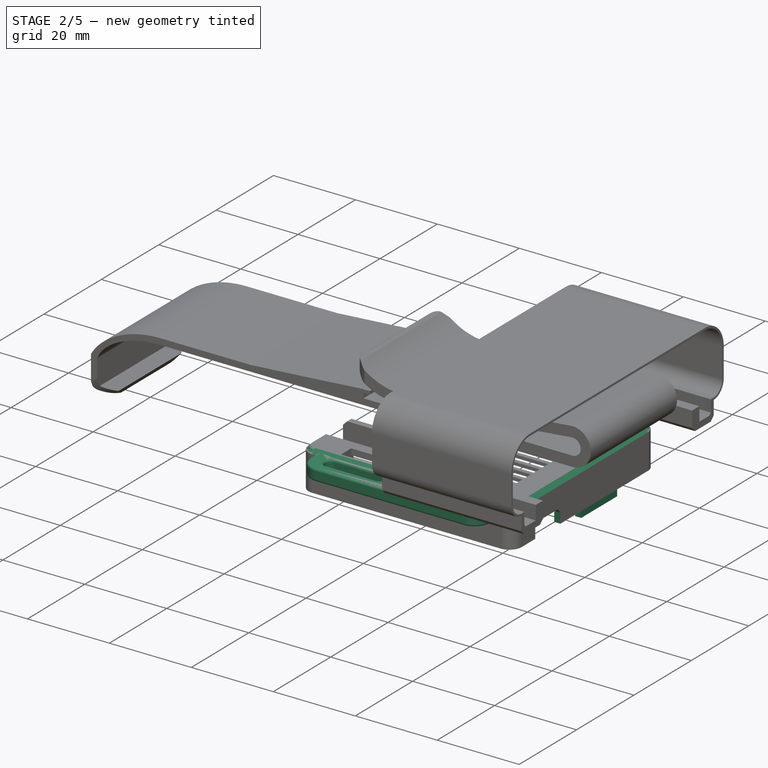
[diagram: stage 2 of 5 — iso view after this stage's code; geometry added in this stage tinted green]
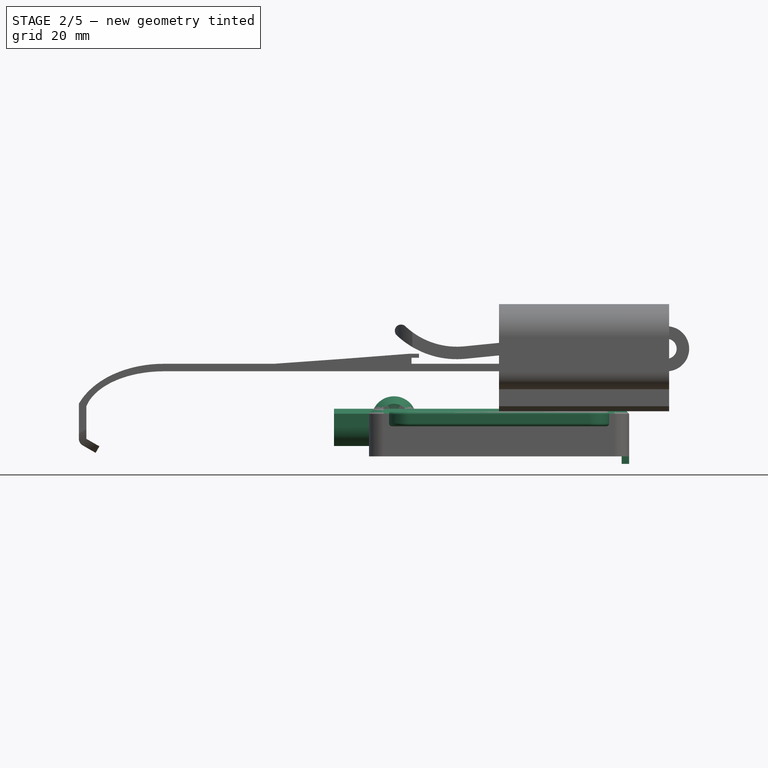
[diagram: stage 2 of 5 — front view after this stage's code; geometry added in this stage tinted green]
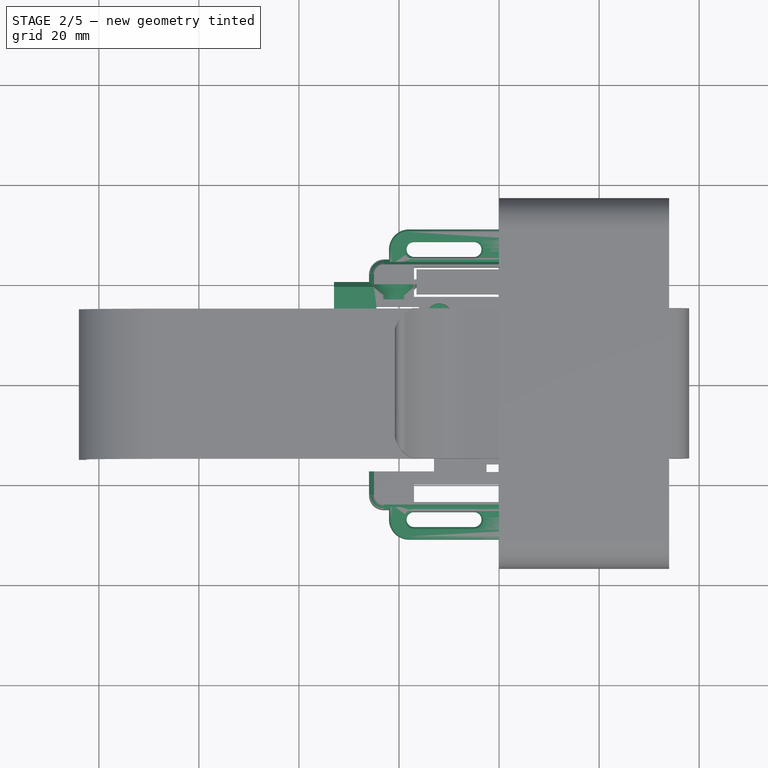
[diagram: stage 2 of 5 — top view after this stage's code; geometry added in this stage tinted green]
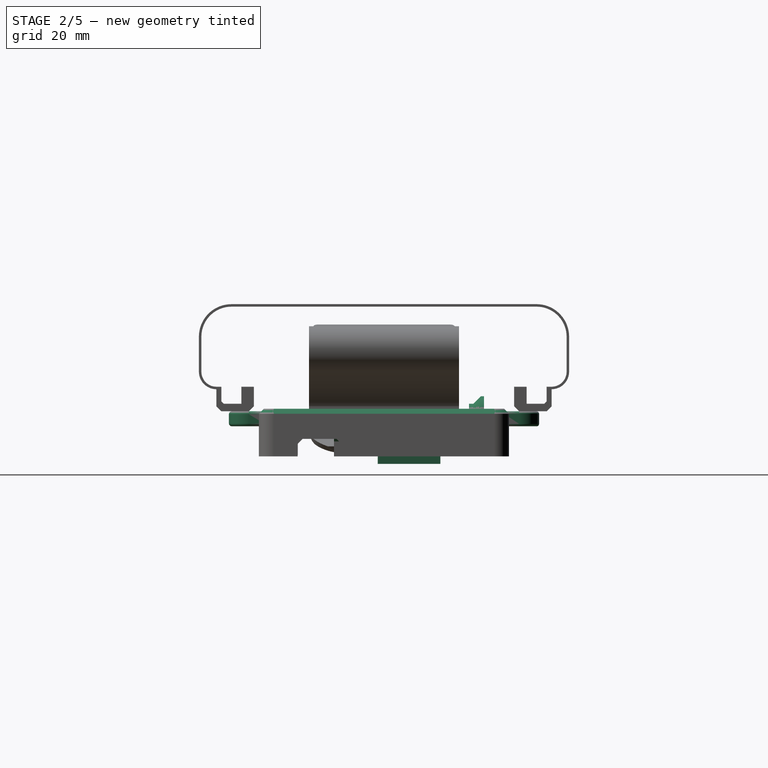
[diagram: stage 2 of 5 — right view after this stage's code; geometry added in this stage tinted green]
FEATURE [Part::FeaturePython] Clone  label="bottom-screw-clone-001"  # WARN: FeaturePython — macro-defined, semantics opaque (R4)
  Placement = pos=(-21,20,-0.5) rot=(1,0,0;1.5708rad)
  Scale = (1,1,1)
FEATURE [Sketcher::SketchObject] Sketch013
  MapMode = 5
  Support = -> [XY_Plane013]
  sketch-geometry (14):
    g0: LineSegment StartX=-22 StartY=24 StartZ=0 EndX=22 EndY=24 EndZ=0
    g1: LineSegment StartX=22 StartY=24 StartZ=0 EndX=22 EndY=27 EndZ=0
    g2: LineSegment StartX=-22 StartY=24 StartZ=0 EndX=-22 EndY=27 EndZ=0
    g3: ArcOfCircle CenterX=-18 CenterY=27 CenterZ=0 NormalX=0 NormalY=0 NormalZ=1 AngleXU=0 Radius=4 StartAngle=1.5708 EndAngle=3.14159
    g4: ArcOfCircle CenterX=18 CenterY=27 CenterZ=0 NormalX=0 NormalY=0 NormalZ=1 AngleXU=0 Radius=4 StartAngle=3.54045e-06 EndAngle=1.5708
    g5: LineSegment StartX=-18 StartY=31 StartZ=0 EndX=18 EndY=31 EndZ=0
    g6: ArcOfCircle CenterX=-17 CenterY=27 CenterZ=0 NormalX=0 NormalY=0 NormalZ=1 AngleXU=0 Radius=1.5 StartAngle=1.5708 EndAngle=4.71239
    g7: ArcOfCircle CenterX=-5 CenterY=27 CenterZ=0 NormalX=0 NormalY=0 NormalZ=1 AngleXU=0 Radius=1.5 StartAngle=4.71239 EndAngle=7.85398
    g8: LineSegment StartX=-17 StartY=25.5 StartZ=0 EndX=-5 EndY=25.5 EndZ=0
    g9: LineSegment StartX=-17 StartY=28.5 StartZ=0 EndX=-5 EndY=28.5 EndZ=0
    g10: ArcOfCircle CenterX=5 CenterY=27 CenterZ=0 NormalX=0 NormalY=0 NormalZ=1 AngleXU=0 Radius=1.5 StartAngle=1.5708 EndAngle=4.71239
    g11: ArcOfCircle CenterX=17 CenterY=27 CenterZ=0 NormalX=0 NormalY=0 NormalZ=1 AngleXU=0 Radius=1.5 StartAngle=4.71239 EndAngle=7.85398
    g12: LineSegment StartX=5 StartY=25.5 StartZ=0 EndX=17 EndY=25.5 EndZ=0
    g13: LineSegment StartX=5 StartY=28.5 StartZ=0 EndX=17 EndY=28.5 EndZ=0
  constraints (39):
    c: Horizontal(g0)
    c: Coincident(g0,g1)
    c: Vertical(g1)
    c: Coincident(g0,g2)
    c: Vertical(g2)
    c: Equal(g1,g2)
    c: Coincident(g3,g2)
    c: Coincident(g4,g1)
    c: Tangent(g1,g4)
    c: Tangent(g2,g3)
    c: Coincident(g5,g3)
    c: Coincident(g5,g4)
    c: Horizontal(g5)
    c: Tangent(g5,g4)
    c: Tangent(g5,g3)
    c: Tangent(g6,g9) = 1.5708
    c: Tangent(g6,g8) = -1.5708
    c: Tangent(g8,g7) = -1.5708
    c: Tangent(g9,g7) = 1.5708
    c: Horizontal(g8)
    c: Equal(g6,g7)
    c: Tangent(g10,g13) = 1.5708
    c: Tangent(g10,g12) = -1.5708
    c: Tangent(g12,g11) = -1.5708
    c: Tangent(g13,g11) = 1.5708
    c: Horizontal(g12)
    c: Equal(g10,g11)
    c: Equal(g12,g8)
    c: Symmetric(g7,g10,g-2)
    c: Equal(g10,g7)
    c: Symmetric(g0,g0,g-2)
    c: Radius(g6) = 1.5
    c: DistanceX(g8,g8) = 12
    c: DistanceX(g0,g0) = 44
    c: DistanceY(g0) = 24
    c: DistanceY(g0,g4) = 7
    c: DistanceY(g11,g4) = 2.5
    c: DistanceX(g7,g10) = 10
    c: Radius(g3) = 4
FEATURE [PartDesign::Pad] Pad004
  Length = 1
  Length2 = 2
  Midplane = true
  Profile = -> Sketch013
  Type = 4
FEATURE [Sketcher::SketchObject] CopySketch014
  Placement = pos=(0,0,0) rot=(0,0,1;3.14159rad)
  sketch-geometry (14):
    g0: LineSegment StartX=-22 StartY=24 StartZ=0 EndX=22 EndY=24 EndZ=0
    g1: LineSegment StartX=22 StartY=24 StartZ=0 EndX=22 EndY=27 EndZ=0
    g2: LineSegment StartX=-22 StartY=24 StartZ=0 EndX=-22 EndY=27 EndZ=0
    g3: ArcOfCircle CenterX=-18 CenterY=27 CenterZ=0 NormalX=0 NormalY=0 NormalZ=1 AngleXU=0 Radius=4 StartAngle=1.5708 EndAngle=3.14159
    g4: ArcOfCircle CenterX=18 CenterY=27 CenterZ=0 NormalX=0 NormalY=0 NormalZ=1 AngleXU=0 Radius=4 StartAngle=3.54045e-06 EndAngle=1.5708
    g5: LineSegment StartX=-18 StartY=31 StartZ=0 EndX=18 EndY=31 EndZ=0
    g6: ArcOfCircle CenterX=-17 CenterY=27 CenterZ=0 NormalX=0 NormalY=0 NormalZ=1 AngleXU=0 Radius=1.5 StartAngle=1.5708 EndAngle=4.71239
    g7: ArcOfCircle CenterX=-5 CenterY=27 CenterZ=0 NormalX=0 NormalY=0 NormalZ=1 AngleXU=0 Radius=1.5 StartAngle=4.71239 EndAngle=7.85398
    g8: LineSegment StartX=-17 StartY=25.5 StartZ=0 EndX=-5 EndY=25.5 EndZ=0
    g9: LineSegment StartX=-17 StartY=28.5 StartZ=0 EndX=-5 EndY=28.5 EndZ=0
    g10: ArcOfCircle CenterX=5 CenterY=27 CenterZ=0 NormalX=0 NormalY=0 NormalZ=1 AngleXU=0 Radius=1.5 StartAngle=1.5708 EndAngle=4.71239
    g11: ArcOfCircle CenterX=17 CenterY=27 CenterZ=0 NormalX=0 NormalY=0 NormalZ=1 AngleXU=0 Radius=1.5 StartAngle=4.71239 EndAngle=7.85398
    g12: LineSegment StartX=5 StartY=25.5 StartZ=0 EndX=17 EndY=25.5 EndZ=0
    g13: LineSegment StartX=5 StartY=28.5 StartZ=0 EndX=17 EndY=28.5 EndZ=0
  constraints (39):
    c: Horizontal(g0)
    c: Coincident(g0,g1)
    c: Vertical(g1)
    c: Coincident(g0,g2)
    c: Vertical(g2)
    c: Equal(g1,g2)
    c: Coincident(g3,g2)
    c: Coincident(g4,g1)
    c: Tangent(g1,g4)
    c: Tangent(g2,g3)
    c: Coincident(g5,g3)
    c: Coincident(g5,g4)
    c: Horizontal(g5)
    c: Tangent(g5,g4)
    c: Tangent(g5,g3)
    c: Tangent(g6,g9) = 1.5708
    c: Tangent(g6,g8) = -1.5708
    c: Tangent(g8,g7) = -1.5708
    c: Tangent(g9,g7) = 1.5708
    c: Horizontal(g8)
    c: Equal(g6,g7)
    c: Tangent(g10,g13) = 1.5708
    c: Tangent(g10,g12) = -1.5708
    c: Tangent(g12,g11) = -1.5708
    c: Tangent(g13,g11) = 1.5708
    c: Horizontal(g12)
    c: Equal(g10,g11)
    c: Equal(g12,g8)
    c: Symmetric(g7,g10,g-2)
    c: Equal(g10,g7)
    c: Symmetric(g0,g0,g-2)
    c: Radius(g6) = 1.5
    c: DistanceX(g8,g8) = 12
    c: DistanceX(g0,g0) = 44
    c: DistanceY(g0) = 24
    c: DistanceY(g0,g4) = 7
    c: DistanceY(g11,g4) = 2.5
    c: DistanceX(g7,g10) = 10
    c: Radius(g3) = 4
FEATURE [PartDesign::Pad] Pad005
  Length = 1
  Length2 = 2
  Midplane = true
  Placement = pos=(0,0,0) rot=(0,0,1;3.14159rad)
  Profile = -> CopySketch014
  Type = 4
FEATURE [PartDesign::Fillet] Fillet002
  Base = -> Pad005 [Edge13,Edge22,Edge34,Edge12,Edge21,Edge33]
  BaseFeature = -> Pad005
  Placement = pos=(0,0,0) rot=(0,0,1;3.14159rad)
  Radius = 0.6
FEATURE [PartDesign::Body] Body001
  Group = -> [CopySketch014,Pad005,Fillet002]
  Origin = -> Origin014
  Tip = -> Pad005
FEATURE [PartDesign::Fillet] Fillet003
  Base = -> Pad004 [Edge12,Edge21,Edge33,Edge13,Edge22,Edge34]
  BaseFeature = -> Pad004
  Radius = 0.5
FEATURE [Sketcher::SketchObject] Sketch  label="antenna top pocket"
  ExternalGeometry = -> [Pocket]
  MapMode = 5
  Placement = pos=(0,0,1.5) rot=(0,0,1;0rad)
  Support = -> [Pocket]
  sketch-geometry (1):
    g0: Circle CenterX=-12 CenterY=13.5 CenterZ=0 NormalX=0 NormalY=0 NormalZ=1 AngleXU=0 Radius=2.7
  constraints (2):
    c: Coincident(g0,g-3)
    c: Radius(g0) = 2.7
FEATURE [PartDesign::Pocket] Pocket010
  BaseFeature = -> Pocket
  Length = 4.5
  Profile = -> Sketch
  Type = 0
FEATURE [Sketcher::SketchObject] Sketch022  label="micro-usb-pouch"
  MapMode = 5
  Placement = pos=(0,0,-8) rot=(1,0,0;3.14159rad)
  Support = -> [Pocket010]
  sketch-geometry (4):
    g0: LineSegment StartX=24.5 StartY=17.2629 StartZ=0 EndX=26 EndY=17.2629 EndZ=0
    g1: LineSegment StartX=26 StartY=17.2629 StartZ=0 EndX=26 EndY=8.5 EndZ=0
    g2: LineSegment StartX=26 StartY=8.5 StartZ=0 EndX=24.5 EndY=8.5 EndZ=0
    g3: LineSegment StartX=24.5 StartY=8.5 StartZ=0 EndX=24.5 EndY=17.2629 EndZ=0
  constraints (8):
    c: Coincident(g0,g1)
    c: Coincident(g1,g2)
    c: Coincident(g2,g3)
    c: Coincident(g3,g0)
    c: Horizontal(g0)
    c: Horizontal(g2)
    c: Vertical(g1)
    c: Vertical(g3)
FEATURE [PartDesign::Pocket] Pocket011
  BaseFeature = -> Pocket010
  Length = 3.5
  Profile = -> Sketch022
  Type = 0
FEATURE [Sketcher::SketchObject] Sketch021  label="sdcard pad"
  MapMode = 5
  Placement = pos=(0,0,-8) rot=(1,0,0;3.14159rad)
  Support = -> [Pocket011]
  sketch-geometry (4):
    g0: LineSegment StartX=24.5 StartY=1.24661 StartZ=0 EndX=26 EndY=1.24661 EndZ=0
    g1: LineSegment StartX=26 StartY=1.24661 StartZ=0 EndX=26 EndY=-11.2702 EndZ=0
    g2: LineSegment StartX=26 StartY=-11.2702 StartZ=0 EndX=24.5 EndY=-11.2702 EndZ=0
    g3: LineSegment StartX=24.5 StartY=-11.2702 StartZ=0 EndX=24.5 EndY=1.24661 EndZ=0
  constraints (8):
    c: Coincident(g0,g1)
    c: Coincident(g1,g2)
    c: Coincident(g2,g3)
    c: Coincident(g3,g0)
    c: Horizontal(g0)
    c: Horizontal(g2)
    c: Vertical(g1)
    c: Vertical(g3)
FEATURE [PartDesign::Pad] Pad
  BaseFeature = -> Pocket011
  Length = 1.5
  Length2 = 100
  Profile = -> Sketch021
  Type = 0
FEATURE [Sketcher::SketchObject] Sketch023  label="antenna front pad"
  ExternalGeometry = -> [Pad]
  MapMode = 5
  Placement = pos=(-25.9976,-0.00269193,0) rot=(0.57739,-0.57733,-0.57733;2.09434rad)
  Support = -> [Pad]
  sketch-geometry (4):
    g0: ArcOfCircle CenterX=-16.5 CenterY=-2 CenterZ=0 NormalX=0 NormalY=0 NormalZ=1 AngleXU=0 Radius=4 StartAngle=3.14159 EndAngle=6.28319
    g1: LineSegment StartX=-12.5 StartY=-2 StartZ=0 EndX=-12.5 EndY=1.5 EndZ=0
    g2: LineSegment StartX=-20.5 StartY=-2 StartZ=0 EndX=-20.5 EndY=1.5 EndZ=0
    g3: LineSegment StartX=-20.5 StartY=1.5 StartZ=0 EndX=-12.5 EndY=1.5 EndZ=0
  constraints (9):
    c: Tangent(g0,g2) = 1.5708
    c: Tangent(g0,g1) = -1.5708
    c: Vertical(g1)
    c: Radius(g0) = 4
    c: Horizontal(g3)
    c: Vertical(g2)
    c: Coincident(g2,g3)
    c: PointOnObject(g2,g-3)
    c: Coincident(g3,g1)
FEATURE [PartDesign::Pad] Pad010
  BaseFeature = -> Pad
  Length = 7
  Length2 = 100
  Profile = -> Sketch023
  Type = 0
FEATURE [Sketcher::SketchObject] Sketch024  label="antenna front pocket"
  ExternalGeometry = -> [Pad010]
  MapMode = 5
  Placement = pos=(-32.9976,-0.00341675,0) rot=(0.57739,-0.57733,-0.57733;2.09434rad)
  Support = -> [Pad010]
  sketch-geometry (1):
    g0: Circle CenterX=-16.6157 CenterY=-2 CenterZ=0 NormalX=0 NormalY=0 NormalZ=1 AngleXU=0 Radius=2.6
  constraints (1):
    c: Radius(g0) = 2.6
FEATURE [PartDesign::Pocket] Pocket012
  BaseFeature = -> Pad010
  Length = 8
  Profile = -> Sketch024
  Type = 0
FEATURE [Sketcher::SketchObject] Sketch025  label="antenna front slot"
  ExternalGeometry = -> [Pocket012]
  MapMode = 5
  Placement = pos=(-32.9976,-0.00341675,0) rot=(0.57739,-0.57733,-0.57733;2.09434rad)
  Support = -> [Pocket012]
  sketch-geometry (4):
    g0: ArcOfCircle CenterX=-16.5 CenterY=-2.5 CenterZ=0 NormalX=0 NormalY=0 NormalZ=1 AngleXU=0 Radius=0.65 StartAngle=0 EndAngle=3.14159
    g1: LineSegment StartX=-17.15 StartY=-2.5 StartZ=0 EndX=-17.15 EndY=-8 EndZ=0
    g2: LineSegment StartX=-15.85 StartY=-2.5 StartZ=0 EndX=-15.85 EndY=-8 EndZ=0
    g3: LineSegment StartX=-17.15 StartY=-8 StartZ=0 EndX=-15.85 EndY=-8 EndZ=0
  constraints (8):
    c: Tangent(g0,g2) = 1.5708
    c: Tangent(g0,g1) = -1.5708
    c: Vertical(g1)
    c: DistanceX(g0,g0) = 1.3
    c: Coincident(g3,g1)
    c: Coincident(g3,g2)
    c: Horizontal(g3)
    c: Vertical(g2)
FEATURE [PartDesign::Pocket] Pocket013
  BaseFeature = -> Pocket012
  Length = 0
  Profile = -> Sketch025
  Type = 3
  UpToFace = -> Pocket012 [Face64]
FEATURE [PartDesign::Chamfer] Chamfer001
  Base = -> Pocket013 [Edge18,Edge21,Edge23,Edge24,Edge33,Edge372,Edge373,Edge398,Edge400]
  BaseFeature = -> Pocket013
  Size = 1
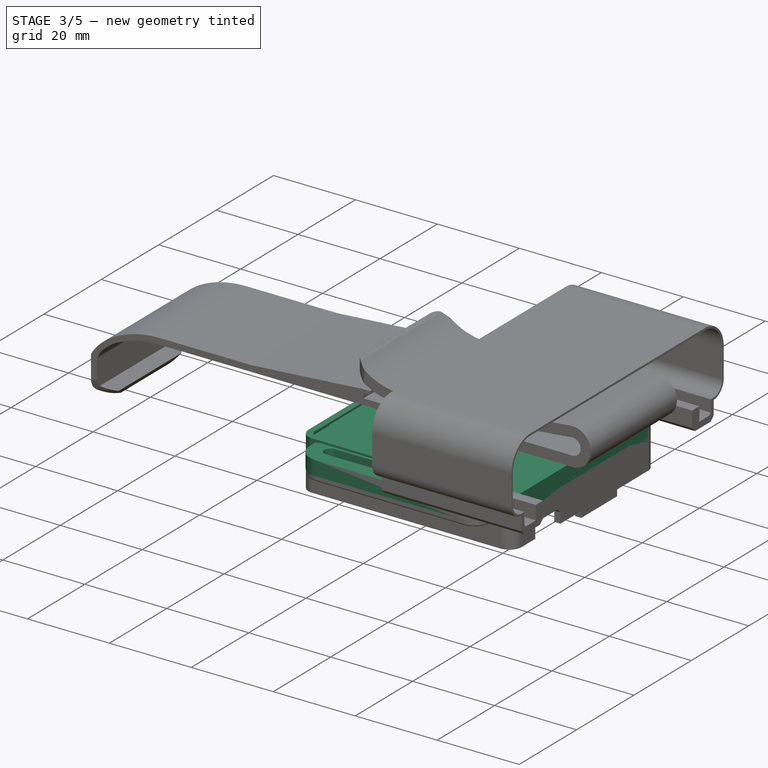
[diagram: stage 3 of 5 — iso view after this stage's code; geometry added in this stage tinted green]
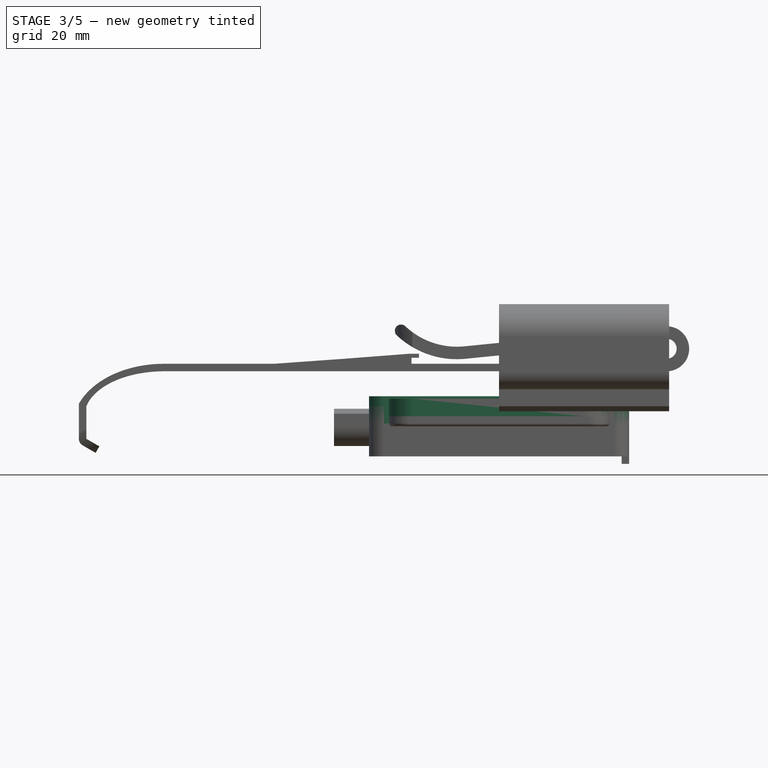
[diagram: stage 3 of 5 — front view after this stage's code; geometry added in this stage tinted green]
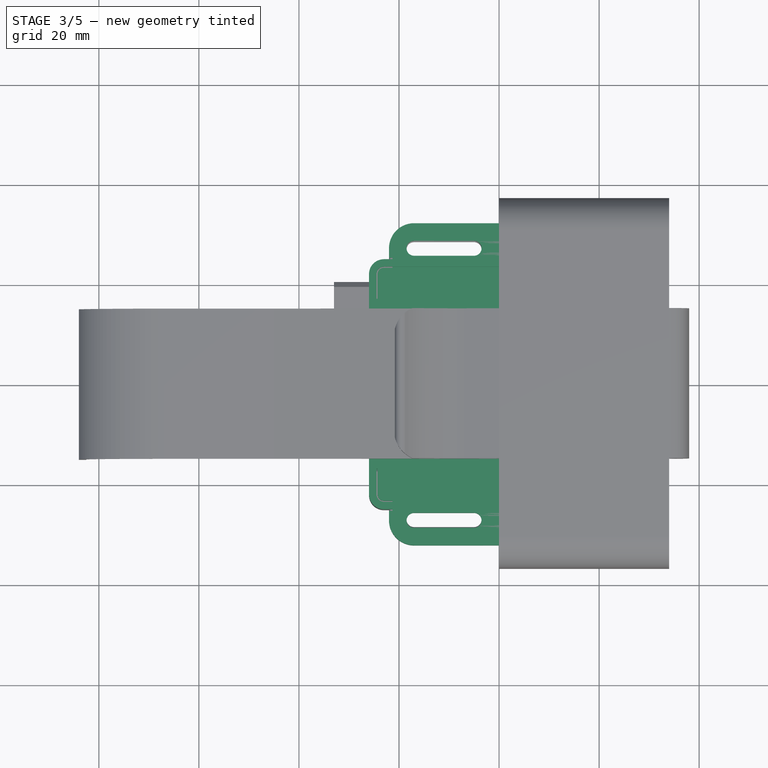
[diagram: stage 3 of 5 — top view after this stage's code; geometry added in this stage tinted green]
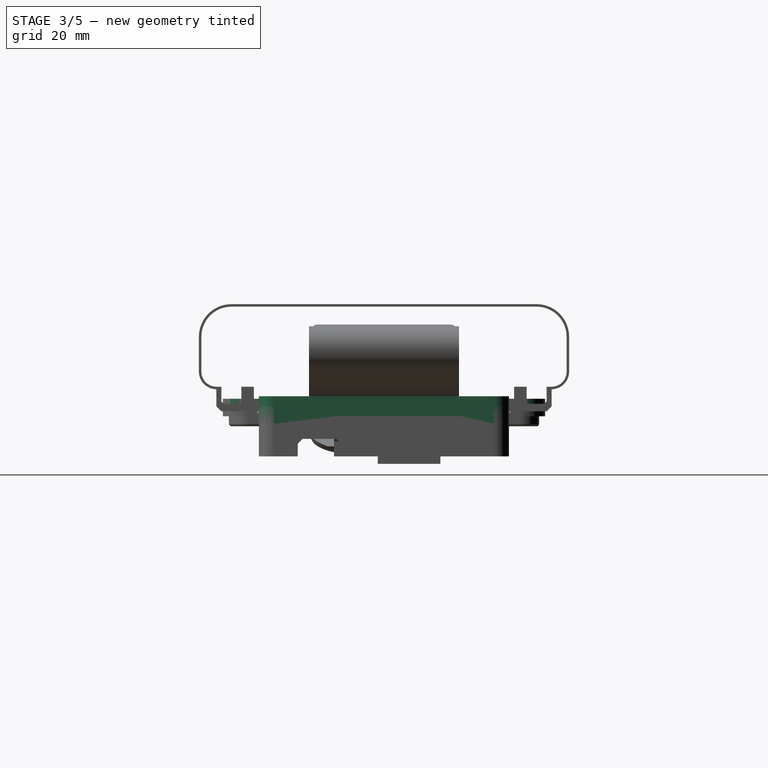
[diagram: stage 3 of 5 — right view after this stage's code; geometry added in this stage tinted green]
FEATURE [Part::Offset] Offset  label="board-offset"
  Fill = false
  Intersection = false
  Join = 2
  Mode = 0
  SelfIntersection = false
  Value = 0.5
FEATURE [Part::Thickness] Thickness  label="bottom-case-thickness"
  Faces = -> Offset [Face10]
  Intersection = false
  Join = 2
  Mode = 0
  SelfIntersection = false
  Value = 1
FEATURE [Part::Feature] Face  label="bottom-case-face"
  Placement = pos=(0,0,1.5) rot=(0,0,1;0rad)
  shape: bbox 52 x 50 x 0.002 mm, 1 faces, 0 solids (baked)
FEATURE [Part::Extrusion] Extrusion  label="bottom-case-extrusion"
  Base = -> Face
  Dir = (0,0,2)
  DirMode = 0
  FaceMakerClass = Part::FaceMakerExtrusion
  LengthFwd = 0
  LengthRev = 0
  Solid = true
  Symmetric = false
FEATURE [Part::MultiFuse] Fusion  label="bottom-case-fusion"
  Shapes = -> [Thickness,Extrusion]
FEATURE [Part::Mirroring] Part__Mirroring  label="bottom-screw-clone-002"
  Base = (0,0,0)
  Normal = (0,0,1)
  Source = -> Clone
FEATURE [Part::Mirroring] Part__Mirroring001  label="bottom-screw-clone-003"
  Base = (0,0,0)
  Normal = (0,0,1)
  Source = -> Clone
FEATURE [Part::Mirroring] Part__Mirroring002  label="bottom-screw-clone-004"
  Base = (0,0,0)
  Normal = (0,0,1)
  Source = -> Part__Mirroring
FEATURE [Part::MultiFuse] Fusion001  label="bottom-case-screw-fusion"
  Shapes = -> [Part__Mirroring001,Clone,Part__Mirroring002,Part__Mirroring]
FEATURE [Part::Chamfer] Chamfer  label="bottom-case-chamfer"
  Base = -> Fusion001
  Edges = 12 edges r=0.5: [Edge1,Edge2,Edge3,Edge4,Edge5,Edge6,Edge7,Edge8,Edge9,Edge10,Edge11,Edge12]
FEATURE [Part::Fillet] Fillet  label="orange-pi-zero-bottom-case"
  Base = -> Chamfer
  Edges = 2 edges r=1: [Edge79,Edge81]
FEATURE [Sketcher::SketchObject] Sketch045  label="outer shape bot"
  MapMode = 5
  Support = -> [XY_Plane]
  sketch-geometry (72):
    g0: ArcOfCircle CenterX=-23 CenterY=22 CenterZ=0 NormalX=0 NormalY=0 NormalZ=1 AngleXU=0 Radius=1.3 StartAngle=1.5708 EndAngle=3.14159
    g1: ArcOfCircle CenterX=23 CenterY=22 CenterZ=0 NormalX=0 NormalY=0 NormalZ=1 AngleXU=0 Radius=1.3 StartAngle=0 EndAngle=1.5708
    g2: ArcOfCircle CenterX=-23 CenterY=-22 CenterZ=0 NormalX=0 NormalY=0 NormalZ=1 AngleXU=0 Radius=1.3 StartAngle=3.14159 EndAngle=4.71239
    g3: LineSegment StartX=-24.3 StartY=22 StartZ=0 EndX=-24.3 EndY=17.1 EndZ=0
    g4: ArcOfCircle CenterX=23 CenterY=-22 CenterZ=0 NormalX=0 NormalY=0 NormalZ=1 AngleXU=0 Radius=1.3 StartAngle=4.71239 EndAngle=6.28319
    g5: LineSegment [constr] StartX=-26 StartY=-22 StartZ=0 EndX=-23 EndY=-22 EndZ=0
    g6: LineSegment [constr] StartX=-23 StartY=-22 StartZ=0 EndX=-23 EndY=-25 EndZ=0
    g7: LineSegment [constr] StartX=23 StartY=-25 StartZ=0 EndX=23 EndY=-22 EndZ=0
    g8: LineSegment [constr] StartX=23 StartY=-22 StartZ=0 EndX=26 EndY=-22 EndZ=0
    g9: LineSegment [constr] StartX=26 StartY=22 StartZ=0 EndX=23 EndY=22 EndZ=0
    g10: LineSegment [constr] StartX=23 StartY=22 StartZ=0 EndX=23 EndY=25 EndZ=0
    g11: LineSegment [constr] StartX=-23 StartY=25 StartZ=0 EndX=-23 EndY=22 EndZ=0
    g12: LineSegment [constr] StartX=-23 StartY=22 StartZ=0 EndX=-26 EndY=22 EndZ=0
    g13: ArcOfCircle CenterX=-17 CenterY=27.2 CenterZ=0 NormalX=0 NormalY=0 NormalZ=1 AngleXU=0 Radius=1.5 StartAngle=1.5708 EndAngle=4.71239
    g14: ArcOfCircle CenterX=-5 CenterY=27.2 CenterZ=0 NormalX=0 NormalY=0 NormalZ=1 AngleXU=0 Radius=1.5 StartAngle=4.71239 EndAngle=7.85398
    g15: LineSegment StartX=-17 StartY=25.7 StartZ=0 EndX=-5 EndY=25.7 EndZ=0
    g16: LineSegment StartX=-17 StartY=28.7 StartZ=0 EndX=-5 EndY=28.7 EndZ=0
    g17: ArcOfCircle CenterX=5 CenterY=27.2 CenterZ=0 NormalX=0 NormalY=0 NormalZ=1 AngleXU=0 Radius=1.5 StartAngle=1.5708 EndAngle=4.71239
    g18: ArcOfCircle CenterX=17 CenterY=27.2 CenterZ=0 NormalX=0 NormalY=0 NormalZ=1 AngleXU=0 Radius=1.5 StartAngle=4.71239 EndAngle=7.85398
    g19: LineSegment StartX=5 StartY=25.7 StartZ=0 EndX=17 EndY=25.7 EndZ=0
    g20: LineSegment StartX=5 StartY=28.7 StartZ=0 EndX=17 EndY=28.7 EndZ=0
    g21: ArcOfCircle CenterX=17 CenterY=27.2 CenterZ=0 NormalX=0 NormalY=0 NormalZ=1 AngleXU=0 Radius=5 StartAngle=0 EndAngle=1.5708
    g22: ArcOfCircle CenterX=-17 CenterY=27.2 CenterZ=0 NormalX=0 NormalY=0 NormalZ=1 AngleXU=0 Radius=5 StartAngle=1.5708 EndAngle=3.14159
    g23: LineSegment StartX=-17 StartY=32.2 StartZ=0 EndX=17 EndY=32.2 EndZ=0
    g24: LineSegment [constr] StartX=22 StartY=27.2 StartZ=0 EndX=17 EndY=27.2 EndZ=0
    g25: LineSegment [constr] StartX=17 StartY=27.2 StartZ=0 EndX=17 EndY=32.2 EndZ=0
    g26: LineSegment [constr] StartX=-17 StartY=33.3681 StartZ=0 EndX=-17 EndY=27.2 EndZ=0
    g27: LineSegment [constr] StartX=-17 StartY=27.2 StartZ=0 EndX=-22 EndY=27.2 EndZ=0
    g28: LineSegment [constr] StartX=-17 StartY=32.2 StartZ=0 EndX=-17 EndY=27.2 EndZ=0
    g29: LineSegment [constr] StartX=-23 StartY=23.3 StartZ=0 EndX=23 EndY=23.3 EndZ=0
    g30: LineSegment StartX=-21.3 StartY=23.3 StartZ=0 EndX=-23 EndY=23.3 EndZ=0
    g31: LineSegment StartX=21.3 StartY=23.3 StartZ=0 EndX=23 EndY=23.3 EndZ=0
    g32: ArcOfCircle CenterX=-17 CenterY=-27.2 CenterZ=0 NormalX=0 NormalY=0 NormalZ=1 AngleXU=0 Radius=1.5 StartAngle=1.5708 EndAngle=4.71239
    g33: ArcOfCircle CenterX=-5 CenterY=-27.2 CenterZ=0 NormalX=0 NormalY=0 NormalZ=1 AngleXU=0 Radius=1.5 StartAngle=4.71239 EndAngle=7.85398
    g34: LineSegment StartX=-17 StartY=-25.7 StartZ=0 EndX=-5 EndY=-25.7 EndZ=0
    g35: LineSegment StartX=-17 StartY=-28.7 StartZ=0 EndX=-5 EndY=-28.7 EndZ=0
    g36: ArcOfCircle CenterX=5 CenterY=-27.2 CenterZ=0 NormalX=0 NormalY=0 NormalZ=1 AngleXU=0 Radius=1.5 StartAngle=1.5708 EndAngle=4.71239
    g37: ArcOfCircle CenterX=17 CenterY=-27.2 CenterZ=0 NormalX=0 NormalY=0 NormalZ=1 AngleXU=0 Radius=1.5 StartAngle=4.71239 EndAngle=7.85398
    g38: LineSegment StartX=5 StartY=-25.7 StartZ=0 EndX=17 EndY=-25.7 EndZ=0
    g39: LineSegment StartX=5 StartY=-28.7 StartZ=0 EndX=17 EndY=-28.7 EndZ=0
    g40: ArcOfCircle CenterX=17 CenterY=-27.2 CenterZ=0 NormalX=0 NormalY=0 NormalZ=1 AngleXU=0 Radius=5 StartAngle=4.71239 EndAngle=6.28319
    g41: ArcOfCircle CenterX=-17 CenterY=-27.2 CenterZ=0 NormalX=0 NormalY=0 NormalZ=1 AngleXU=0 Radius=5 StartAngle=3.14159 EndAngle=4.71239
    g42: LineSegment StartX=-17 StartY=-32.2 StartZ=0 EndX=17 EndY=-32.2 EndZ=0
    g43: LineSegment [constr] StartX=22 StartY=-27.2 StartZ=0 EndX=17 EndY=-27.2 EndZ=0
    g44: LineSegment [constr] StartX=17 StartY=-27.2 StartZ=0 EndX=17 EndY=-32.2 EndZ=0
    g45: LineSegment [constr] StartX=-17 StartY=-32.2 StartZ=0 EndX=-17 EndY=-27.2 EndZ=0
    g46: LineSegment [constr] StartX=-17 StartY=-27.2 StartZ=0 EndX=-22 EndY=-27.2 EndZ=0
    g47: LineSegment [constr] StartX=-17 StartY=-32.2 StartZ=0 EndX=-17 EndY=-27.2 EndZ=0
    g48: LineSegment [constr] StartX=-23 StartY=-23.3 StartZ=0 EndX=23 EndY=-23.3 EndZ=0
    g49: LineSegment StartX=-21.3 StartY=-23.3 StartZ=0 EndX=-23 EndY=-23.3 EndZ=0
    g50: LineSegment StartX=21.3 StartY=-23.3 StartZ=0 EndX=23 EndY=-23.3 EndZ=0
    g51: LineSegment StartX=-24.3 StartY=-16.9 StartZ=0 EndX=-26 EndY=-16.9 EndZ=0
    g52: LineSegment StartX=-26 StartY=-16.9 StartZ=0 EndX=-26 EndY=17.1 EndZ=0
    g53: LineSegment StartX=-26 StartY=17.1 StartZ=0 EndX=-24.3 EndY=17.1 EndZ=0
    g54: LineSegment StartX=-24.3 StartY=-16.9 StartZ=0 EndX=-24.3 EndY=-22 EndZ=0
    g55: LineSegment StartX=22 StartY=27.2 StartZ=0 EndX=22 EndY=25.3 EndZ=0
    g56: LineSegment StartX=22 StartY=25.3 StartZ=0 EndX=21.3 EndY=25.3 EndZ=0
    g57: LineSegment StartX=21.3 StartY=25.3 StartZ=0 EndX=21.3 EndY=23.3 EndZ=0
    g58: LineSegment StartX=-22 StartY=27.2 StartZ=0 EndX=-22 EndY=25.3 EndZ=0
    g59: LineSegment StartX=-22 StartY=25.3 StartZ=0 EndX=-21.3 EndY=25.3 EndZ=0
    g60: LineSegment StartX=-21.3 StartY=25.3 StartZ=0 EndX=-21.3 EndY=23.3 EndZ=0
    g61: LineSegment StartX=22 StartY=-27.2 StartZ=0 EndX=22 EndY=-25.3 EndZ=0
    g62: LineSegment StartX=22 StartY=-25.3 StartZ=0 EndX=21.3 EndY=-25.3 EndZ=0
    g63: LineSegment StartX=21.3 StartY=-25.3 StartZ=0 EndX=21.3 EndY=-23.3 EndZ=0
    g64: LineSegment StartX=-22 StartY=-27.2 StartZ=0 EndX=-22 EndY=-25.3 EndZ=0
    g65: LineSegment StartX=-22 StartY=-25.3 StartZ=0 EndX=-21.3 EndY=-25.3 EndZ=0
    g66: LineSegment StartX=-21.3 StartY=-25.3 StartZ=0 EndX=-21.3 EndY=-23.3 EndZ=0
    g67: LineSegment StartX=24.3 StartY=17.2 StartZ=0 EndX=26 EndY=17.2 EndZ=0
    g68: LineSegment StartX=26 StartY=17.2 StartZ=0 EndX=26 EndY=-10.7 EndZ=0
    g69: LineSegment StartX=26 StartY=-10.7 StartZ=0 EndX=24.3 EndY=-10.7 EndZ=0
    g70: LineSegment StartX=24.3 StartY=-22 StartZ=0 EndX=24.3 EndY=-10.7 EndZ=0
    g71: LineSegment StartX=24.3 StartY=22 StartZ=0 EndX=24.3 EndY=17.2 EndZ=0
  constraints (182):
    c: Equal(g0,g1)
    c: Coincident(g3,g0)
    c: Coincident(g54,g2)
    c: Coincident(g5,g6)
    c: Vertical(g6)
    c: Horizontal(g5)
    c: PointOnObject(g2,g5)
    c: PointOnObject(g2,g6)
    c: Coincident(g7,g8)
    c: PointOnObject(g4,g8)
    c: PointOnObject(g4,g7)
    c: Coincident(g7,g4)
    c: Vertical(g7)
    c: Horizontal(g8)
    c: Coincident(g9,g10)
    c: Vertical(g10)
    c: PointOnObject(g1,g9)
    c: PointOnObject(g1,g10)
    c: Coincident(g9,g1)
    c: Horizontal(g9)
    c: Coincident(g11,g12)
    c: Horizontal(g12)
    c: Vertical(g11)
    c: Coincident(g0,g11)
    c: PointOnObject(g0,g12)
    c: PointOnObject(g0,g11)
    c: Equal(g0,g2)
    c: Equal(g2,g4)
    c: Coincident(g2,g5)
    c: Tangent(g13,g16)
    c: Tangent(g13,g15)
    c: Tangent(g15,g14)
    c: Tangent(g16,g14)
    c: Horizontal(g15)
    c: Equal(g13,g14)
    c: Tangent(g17,g20)
    c: Tangent(g17,g19)
    c: Tangent(g19,g18)
    c: Tangent(g20,g18)
    c: Horizontal(g19)
    c: Equal(g17,g18)
    c: Equal(g19,g15)
    c: Symmetric(g14,g17,g-2)
    c: Equal(g17,g14)
    c: DistanceX(g15,g15) = 12
    c: DistanceX(g14,g17) = 10
    c: DistanceX(g0) = -23
    c: DistanceY(g0) = 22
    c: Symmetric(g0,g1,g-2)
    c: Symmetric(g0,g2,g-1)
    c: Symmetric(g1,g4,g-1)
    c: Radius(g1) = 1.3
    c: Coincident(g21,g18)
    c: Coincident(g22,g13)
    c: Coincident(g23,g22)
    c: Coincident(g23,g21)
    c: Horizontal(g23)
    c: Radius(g18) = 1.5
    c: Coincident(g24,g18)
    c: Horizontal(g24)
    c: Coincident(g24,g25)
    c: Coincident(g25,g21)
    c: Vertical(g25)
    c: Coincident(g26,g13)
    c: Vertical(g26)
    c: Coincident(g26,g27)
    c: Coincident(g27,g22)
    c: Horizontal(g27)
    c: Coincident(g28,g22)
    c: Coincident(g28,g13)
    c: Vertical(g28)
    c: Coincident(g21,g24)
    c: Coincident(g29,g0)
    c: Coincident(g29,g1)
    c: Horizontal(g30)
    c: Horizontal(g31)
    c: Tangent(g32,g35) = -1.5708
    c: Tangent(g32,g34) = 1.5708
    c: Tangent(g34,g33) = 1.5708
    c: Tangent(g35,g33) = -1.5708
    c: Horizontal(g34)
    c: Equal(g32,g33)
    c: Tangent(g36,g39) = -1.5708
    c: Tangent(g36,g38) = 1.5708
    c: Tangent(g38,g37) = 1.5708
    c: Tangent(g39,g37) = -1.5708
    c: Horizontal(g38)
    c: Equal(g36,g37)
    c: Equal(g38,g34)
    c: Equal(g36,g33)
    c: Coincident(g40,g37)
    c: Coincident(g41,g32)
    c: Coincident(g42,g41)
    c: Coincident(g42,g40)
    c: Horizontal(g42)
    c: Radius(g37) = 1.5
    c: Coincident(g43,g37)
    c: Horizontal(g43)
    c: Coincident(g43,g44)
    c: Coincident(g44,g40)
    c: Vertical(g44)
    c: Coincident(g45,g32)
    c: Vertical(g45)
    c: Coincident(g45,g46)
    c: Coincident(g46,g41)
    c: Horizontal(g46)
    c: Coincident(g47,g41)
    c: Coincident(g47,g32)
    c: Vertical(g47)
    c: Coincident(g40,g43)
    c: Horizontal(g49)
    c: Horizontal(g50)
    c: Coincident(g48,g2)
    c: Coincident(g48,g4)
    c: Symmetric(g33,g36,g-2)
    c: Coincident(g31,g1)
    c: Coincident(g30,g0)
    c: DistanceY(g1,g18) = 3.7
    c: Coincident(g45,g41)
    c: DistanceX(g33,g36) = 10
    c: Coincident(g49,g2)
    c: Coincident(g50,g4)
    c: Symmetric(g18,g37,g-1)
    c: Symmetric(g40,g21,g-1)
    c: Coincident(g28,g26)
    c: Coincident(g28,g27)
    c: Horizontal(g51)
    c: Coincident(g52,g51)
    c: Vertical(g52)
    c: Coincident(g53,g52)
    c: Horizontal(g53)
    c: DistanceX(g52,g0) = 3
    c: Coincident(g3,g53)
    c: Coincident(g54,g51)
    c: Tangent(g3,g54)
    c: Tangent(g21,g55) = 1.5708
    c: Coincident(g55,g56)
    c: Horizontal(g56)
    c: Coincident(g56,g57)
    c: Vertical(g57)
    c: Coincident(g57,g31)
    c: Tangent(g22,g58) = -1.5708
    c: Coincident(g58,g59)
    c: Horizontal(g59)
    c: Coincident(g59,g60)
    c: Vertical(g60)
    c: Coincident(g60,g30)
    c: DistanceX(g22,g21) = 44
    c: Symmetric(g22,g21,g-2)
    c: Symmetric(g30,g31,g-2)
    c: DistanceX(g30,g31) = 42.6
    c: DistanceY(g1,g55) = 3.3
    c: DistanceY(g0,g58) = 3.3
    c: Tangent(g40,g61) = -1.5708
    c: Coincident(g61,g62)
    c: Coincident(g62,g63)
    c: Coincident(g63,g50)
    c: Vertical(g63)
    c: Horizontal(g62)
    c: Symmetric(g62,g56,g-1)
    c: Tangent(g41,g64) = 1.5708
    c: Coincident(g64,g65)
    c: Horizontal(g65)
    c: Coincident(g65,g66)
    c: Coincident(g66,g49)
    c: Vertical(g66)
    c: Symmetric(g65,g59,g-1)
    c: Coincident(g67,g68)
    c: Coincident(g68,g69)
    c: Horizontal(g67)
    c: Horizontal(g69)
    c: Vertical(g68)
    c: DistanceY(g4,g69) = 11.3
    c: DistanceY(g67,g1) = 4.8
    c: Coincident(g70,g4)
    c: Coincident(g70,g69)
    c: Vertical(g70)
    c: Coincident(g71,g1)
    c: Coincident(g71,g67)
    c: Vertical(g71)
    c: DistanceY(g3,g0) = 4.9
    c: DistanceY(g2,g51) = 5.1
FEATURE [PartDesign::Pad] Pad017
  Length = 3.5
  Length2 = 100
  Profile = -> Sketch045
  Type = 0
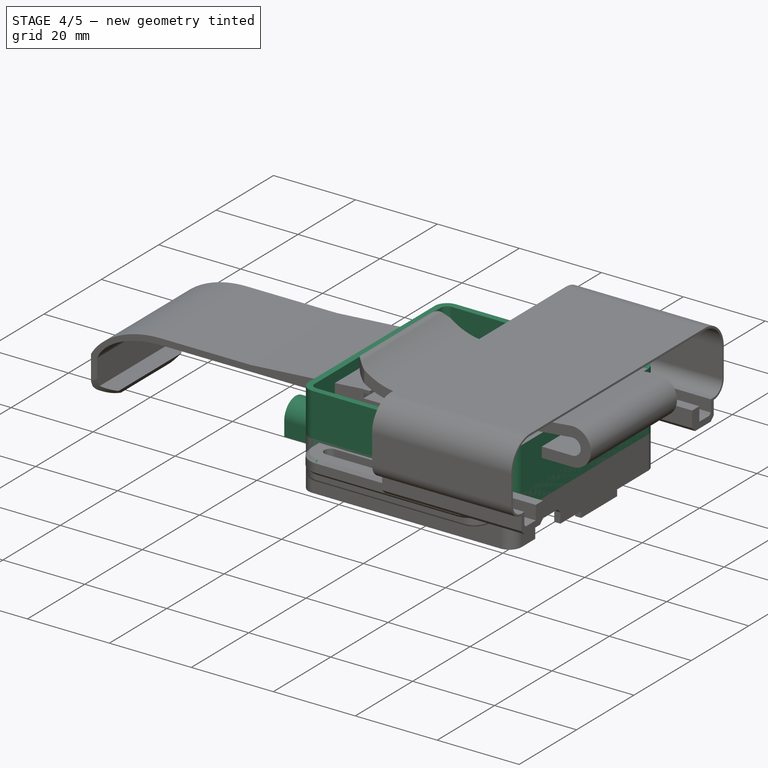
[diagram: stage 4 of 5 — iso view after this stage's code; geometry added in this stage tinted green]
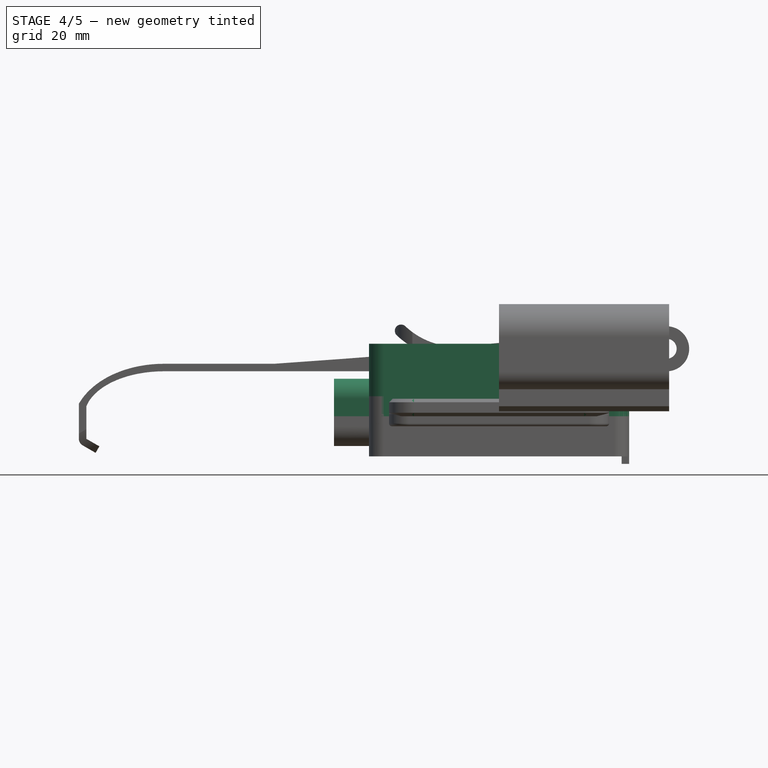
[diagram: stage 4 of 5 — front view after this stage's code; geometry added in this stage tinted green]
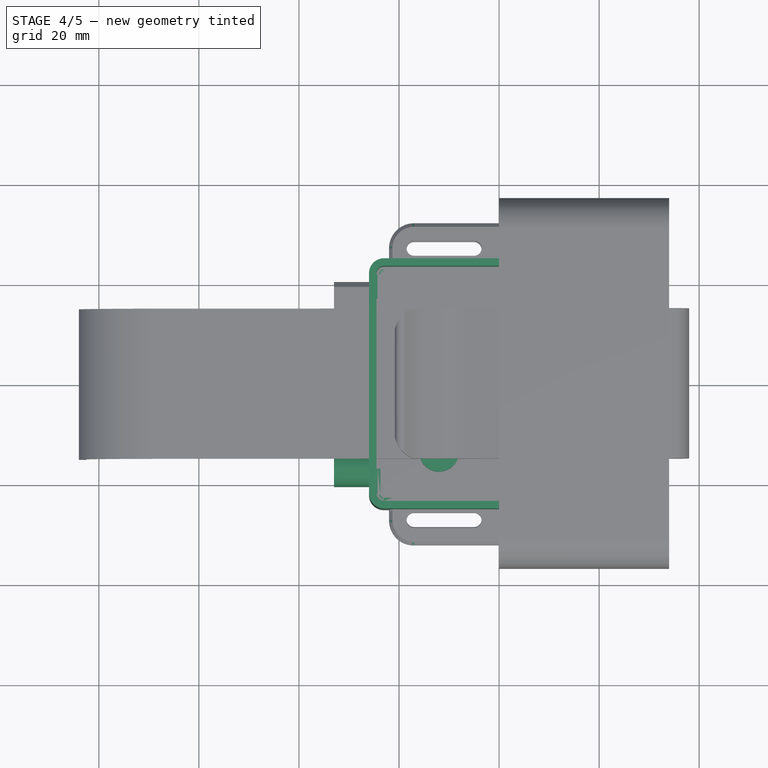
[diagram: stage 4 of 5 — top view after this stage's code; geometry added in this stage tinted green]
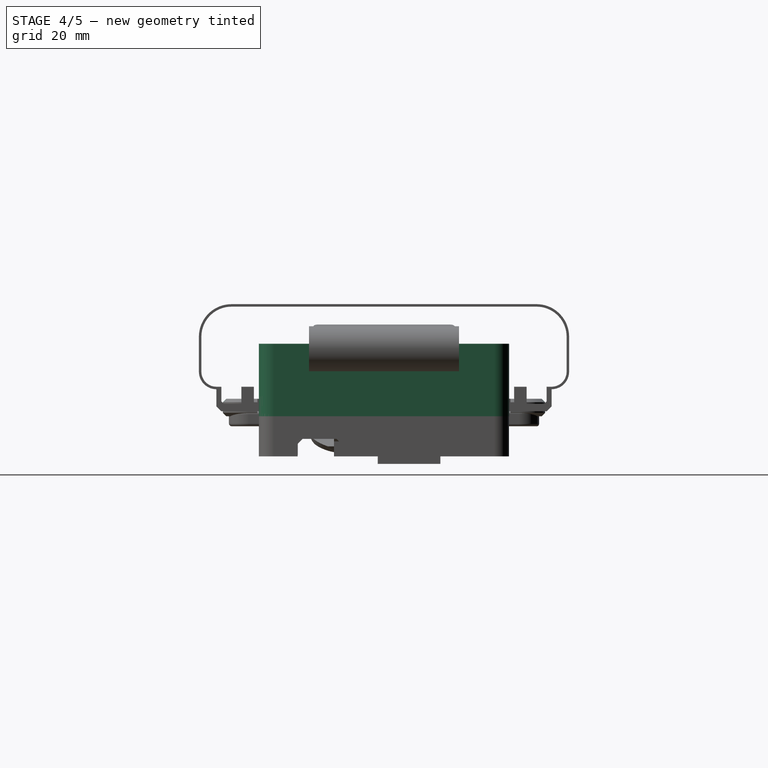
[diagram: stage 4 of 5 — right view after this stage's code; geometry added in this stage tinted green]
FEATURE [PartDesign::Body] Body002  label="top case jw screws"
  Group = -> [Sketch018,Sketch017,Sketch016,Sketch014,Pad006,Pad007,Pad008,Pocket009,Sketch019,Pad009,Sketch020,Sketch021,Sketch022,Pocket,Sketch,Pocket010,Pocket011,Pad,Sketch023,Pad010,Sketch024,Pocket012,Sketch025,Pocket013,Chamfer001]
  Origin = -> Origin015
  Placement = pos=(0,0,1.5) rot=(0,0,1;0rad)
  Tip = -> Chamfer001
FEATURE [Sketcher::SketchObject] Sketch026  label="outer shape"
  MapMode = 5
  Support = -> [XY_Plane016]
  sketch-geometry (17):
    g0: ArcOfCircle CenterX=-22.9999 CenterY=22.0014 CenterZ=0 NormalX=0 NormalY=0 NormalZ=1 AngleXU=0 Radius=3 StartAngle=1.5708 EndAngle=3.14159
    g1: LineSegment StartX=-25.9999 StartY=22.0014 StartZ=0 EndX=-25.9954 EndY=-22.0003 EndZ=0
    g2: ArcOfCircle CenterX=-22.9954 CenterY=-22.0003 CenterZ=0 NormalX=0 NormalY=0 NormalZ=1 AngleXU=0 Radius=3 StartAngle=3.14159 EndAngle=4.69736
    g3: LineSegment StartX=-23.0404 StartY=-25 StartZ=0 EndX=23 EndY=-25 EndZ=0
    g4: ArcOfCircle CenterX=23 CenterY=-22 CenterZ=0 NormalX=0 NormalY=0 NormalZ=1 AngleXU=0 Radius=3 StartAngle=4.71239 EndAngle=6.28319
    g5: ArcOfCircle CenterX=23 CenterY=22.0014 CenterZ=0 NormalX=0 NormalY=0 NormalZ=1 AngleXU=0 Radius=3 StartAngle=0 EndAngle=1.5708
    g6: LineSegment StartX=-22.9999 StartY=25.0014 StartZ=0 EndX=23 EndY=25.0014 EndZ=0
    g7: LineSegment StartX=26 StartY=22.0014 StartZ=0 EndX=26 EndY=-22 EndZ=0
    g8: LineSegment [constr] StartX=-23.0404 StartY=-25 StartZ=0 EndX=-22.9954 EndY=-25.0007 EndZ=0
    g9: LineSegment [constr] StartX=-22.9954 StartY=-25.0007 StartZ=0 EndX=-22.9954 EndY=-22.0003 EndZ=0
    g10: LineSegment [constr] StartX=-22.9954 StartY=-22.0003 StartZ=0 EndX=-25.9954 EndY=-22.0003 EndZ=0
    g11: LineSegment [constr] StartX=-22.9999 StartY=25.0014 StartZ=0 EndX=-22.9999 EndY=22.0014 EndZ=0
    g12: LineSegment [constr] StartX=-22.9999 StartY=22.0014 StartZ=0 EndX=-25.9999 EndY=22.0014 EndZ=0
    g13: LineSegment [constr] StartX=23 StartY=25.0014 StartZ=0 EndX=23 EndY=22.0014 EndZ=0
    g14: LineSegment [constr] StartX=23 StartY=22.0014 StartZ=0 EndX=26 EndY=22.0014 EndZ=0
    g15: LineSegment [constr] StartX=26 StartY=-22 StartZ=0 EndX=23 EndY=-22 EndZ=0
    g16: LineSegment [constr] StartX=23 StartY=-22 StartZ=0 EndX=23 EndY=-25 EndZ=0
  constraints (40):
    c: Coincident(g2,g1)
    c: Coincident(g3,g2)
    c: Horizontal(g3)
    c: Coincident(g4,g3)
    c: Coincident(g6,g0)
    c: Coincident(g6,g5)
    c: Horizontal(g6)
    c: Coincident(g7,g5)
    c: Coincident(g7,g4)
    c: Vertical(g7)
    c: Equal(g2,g0)
    c: Equal(g0,g5)
    c: Equal(g5,g4)
    c: Radius(g4) = 3
    c: Tangent(g2,g8) = -1.5708
    c: Coincident(g8,g9)
    c: Coincident(g9,g2)
    c: Vertical(g9)
    c: Coincident(g9,g10)
    c: Coincident(g10,g1)
    c: Horizontal(g10)
    c: Coincident(g11,g0)
    c: Coincident(g11,g12)
    c: Coincident(g12,g0)
    c: Horizontal(g12)
    c: Vertical(g11)
    c: Coincident(g1,g0)
    c: Coincident(g0,g11)
    c: Coincident(g13,g5)
    c: Coincident(g13,g14)
    c: Coincident(g14,g5)
    c: Coincident(g13,g5)
    c: Vertical(g13)
    c: Horizontal(g14)
    c: Coincident(g4,g15)
    c: Coincident(g15,g16)
    c: Coincident(g16,g3)
    c: Coincident(g4,g15)
    c: Horizontal(g15)
    c: Vertical(g16)
FEATURE [PartDesign::Pad] Pad011
  Length = 14.5
  Length2 = 100
  Profile = -> Sketch026
  Type = 0
FEATURE [Sketcher::SketchObject] Sketch027  label="inner shape"
  MapMode = 5
  Placement = pos=(0,0,14.5) rot=(0,0,1;0rad)
  Support = -> [Pad011]
  sketch-geometry (16):
    g0: ArcOfCircle CenterX=-22.9999 CenterY=22.0014 CenterZ=0 NormalX=0 NormalY=0 NormalZ=1 AngleXU=0 Radius=1.5 StartAngle=1.5708 EndAngle=3.14159
    g1: ArcOfCircle CenterX=23 CenterY=22.0014 CenterZ=0 NormalX=0 NormalY=0 NormalZ=1 AngleXU=0 Radius=1.5 StartAngle=0 EndAngle=1.5708
    g2: LineSegment StartX=23 StartY=23.5014 StartZ=0 EndX=-22.9999 EndY=23.5014 EndZ=0
    g3: ArcOfCircle CenterX=-22.9954 CenterY=-22.0003 CenterZ=0 NormalX=0 NormalY=0 NormalZ=1 AngleXU=0 Radius=1.5 StartAngle=3.14159 EndAngle=4.71239
    g4: LineSegment StartX=-24.4999 StartY=22.0014 StartZ=0 EndX=-24.4954 EndY=-22.0003 EndZ=0
    g5: ArcOfCircle CenterX=23 CenterY=-22 CenterZ=0 NormalX=0 NormalY=0 NormalZ=1 AngleXU=0 Radius=1.5 StartAngle=4.71239 EndAngle=6.28319
    g6: LineSegment StartX=23 StartY=-23.5 StartZ=0 EndX=-22.9954 EndY=-23.5003 EndZ=0
    g7: LineSegment StartX=24.5 StartY=-22 StartZ=0 EndX=24.5 EndY=22.0014 EndZ=0
    g8: LineSegment [constr] StartX=-26 StartY=-22.0003 StartZ=0 EndX=-22.9954 EndY=-22.0003 EndZ=0
    g9: LineSegment [constr] StartX=-22.9954 StartY=-22.0003 StartZ=0 EndX=-22.9954 EndY=-25 EndZ=0
    g10: LineSegment [constr] StartX=23 StartY=-25 StartZ=0 EndX=23 EndY=-22 EndZ=0
    g11: LineSegment [constr] StartX=23 StartY=-22 StartZ=0 EndX=26 EndY=-22 EndZ=0
    g12: LineSegment [constr] StartX=26 StartY=22.0014 StartZ=0 EndX=23 EndY=22.0014 EndZ=0
    g13: LineSegment [constr] StartX=23 StartY=22.0014 StartZ=0 EndX=23 EndY=25 EndZ=0
    g14: LineSegment [constr] StartX=-22.9999 StartY=25 StartZ=0 EndX=-22.9999 EndY=22.0014 EndZ=0
    g15: LineSegment [constr] StartX=-22.9999 StartY=22.0014 StartZ=0 EndX=-26 EndY=22.0014 EndZ=0
  constraints (36):
    c: Coincident(g2,g1)
    c: Coincident(g2,g0)
    c: Equal(g0,g1)
    c: Radius(g1) = 1.5
    c: Coincident(g4,g0)
    c: Coincident(g4,g3)
    c: Coincident(g6,g5)
    c: Coincident(g6,g3)
    c: Coincident(g7,g5)
    c: Coincident(g7,g1)
    c: Coincident(g8,g9)
    c: Vertical(g9)
    c: Horizontal(g8)
    c: PointOnObject(g3,g8)
    c: PointOnObject(g3,g9)
    c: Coincident(g10,g11)
    c: PointOnObject(g5,g11)
    c: PointOnObject(g5,g10)
    c: Coincident(g10,g5)
    c: Vertical(g10)
    c: Horizontal(g11)
    c: Coincident(g12,g13)
    c: Vertical(g13)
    c: PointOnObject(g1,g12)
    c: PointOnObject(g1,g13)
    c: Coincident(g12,g1)
    c: Horizontal(g12)
    c: Coincident(g14,g15)
    c: Horizontal(g15)
    c: Vertical(g14)
    c: Coincident(g0,g14)
    c: PointOnObject(g0,g15)
    c: PointOnObject(g0,g14)
    c: Equal(g0,g3)
    c: Equal(g3,g5)
    c: Coincident(g3,g8)
FEATURE [PartDesign::Pocket] Pocket014
  BaseFeature = -> Pad011
  Length = 5
  Offset = -1.5
  Profile = -> Sketch027
  Type = 2
FEATURE [Sketcher::SketchObject] Sketch029  label="top thinning001"
  MapMode = 5
  Placement = pos=(0,0,1.5) rot=(0,0,1;0rad)
  Support = -> [Pocket014]
  sketch-geometry (8):
    g0: LineSegment StartX=-2.5 StartY=18 StartZ=0 EndX=19.5 EndY=18 EndZ=0
    g1: LineSegment StartX=19.5 StartY=18 StartZ=0 EndX=19.5 EndY=-2.5 EndZ=0
    g2: LineSegment StartX=19.5 StartY=-2.5 StartZ=0 EndX=-2.5 EndY=-2.5 EndZ=0
    g3: LineSegment StartX=-2.5 StartY=-2.5 StartZ=0 EndX=-2.5 EndY=18 EndZ=0
    g4: LineSegment StartX=-17 StartY=-17.5 StartZ=0 EndX=17 EndY=-17.5 EndZ=0
    g5: LineSegment StartX=17 StartY=-17.5 StartZ=0 EndX=17 EndY=-23.5 EndZ=0
    g6: LineSegment StartX=17 StartY=-23.5 StartZ=0 EndX=-17 EndY=-23.5 EndZ=0
    g7: LineSegment StartX=-17 StartY=-23.5 StartZ=0 EndX=-17 EndY=-17.5 EndZ=0
  constraints (16):
    c: Coincident(g0,g1)
    c: Coincident(g1,g2)
    c: Coincident(g2,g3)
    c: Coincident(g3,g0)
    c: Horizontal(g0)
    c: Horizontal(g2)
    c: Vertical(g1)
    c: Vertical(g3)
    c: Coincident(g4,g5)
    c: Coincident(g5,g6)
    c: Coincident(g6,g7)
    c: Coincident(g7,g4)
    c: Horizontal(g4)
    c: Horizontal(g6)
    c: Vertical(g5)
    c: Vertical(g7)
FEATURE [PartDesign::Pocket] Pocket015
  BaseFeature = -> Pocket014
  Length = 0.75
  Profile = -> Sketch029
  Type = 0
FEATURE [Sketcher::SketchObject] Sketch039  label="antenna top pad"
  MapMode = 5
  Placement = pos=(0,0,1.5) rot=(0,0,1;0rad)
  Support = -> [Pocket015]
  sketch-geometry (1):
    g0: Circle CenterX=-12 CenterY=-13.5 CenterZ=0 NormalX=0 NormalY=0 NormalZ=1 AngleXU=0 Radius=4
  constraints (1):
    c: Radius(g0) = 4
FEATURE [PartDesign::Pad] Pad012
  BaseFeature = -> Pocket015
  Length = 5
  Length2 = 100
  Profile = -> Sketch039
  Type = 0
FEATURE [Sketcher::SketchObject] Sketch034  label="antenna top pocket001"
  ExternalGeometry = -> [Pad012]
  MapMode = 5
  Placement = pos=(0,0,0) rot=(1,0,0;3.14159rad)
  Support = -> [Pad012]
  sketch-geometry (1):
    g0: Circle CenterX=-12 CenterY=13.5 CenterZ=0 NormalX=0 NormalY=0 NormalZ=1 AngleXU=0 Radius=2.7
  constraints (2):
    c: Radius(g0) = 2.7
    c: Coincident(g-3,g0)
FEATURE [PartDesign::Pocket] Pocket016
  BaseFeature = -> Pad012
  Length = 5.5
  Profile = -> Sketch034
  Type = 0
FEATURE [Sketcher::SketchObject] Sketch035  label="antenna front pad001"
  ExternalGeometry = -> [Pocket016]
  MapMode = 5
  Placement = pos=(-25.9976,-0.00269193,0) rot=(0.57739,-0.57733,-0.57733;2.09434rad)
  Support = -> [Pocket016]
  sketch-geometry (4):
    g0: ArcOfCircle CenterX=16.5 CenterY=3.5 CenterZ=0 NormalX=0 NormalY=0 NormalZ=1 AngleXU=0 Radius=4 StartAngle=0 EndAngle=3.14159
    g1: LineSegment StartX=12.5 StartY=3.5 StartZ=0 EndX=12.5 EndY=0 EndZ=0
    g2: LineSegment StartX=20.5 StartY=3.5 StartZ=0 EndX=20.5 EndY=0 EndZ=0
    g3: LineSegment StartX=20.5 StartY=0 StartZ=0 EndX=12.5 EndY=0 EndZ=0
  constraints (9):
    c: Tangent(g0,g2) = 1.5708
    c: Tangent(g0,g1) = -1.5708
    c: Radius(g0) = 4
    c: Coincident(g2,g3)
    c: Coincident(g3,g1)
    c: PointOnObject(g2,g-3)
    c: Horizontal(g3)
    c: Vertical(g2)
    c: Vertical(g1)
FEATURE [PartDesign::Pad] Pad013
  BaseFeature = -> Pocket016
  Length = 7
  Length2 = 100
  Profile = -> Sketch035
  Type = 0
FEATURE [PartDesign::Body] Body003  label="top case"
  Group = -> [Sketch029,Sketch028,Sketch027,Sketch026,Sketch030,Sketch031,Sketch034,Sketch035,Sketch036,Sketch037,Pad011,Sketch038,Pocket014,Pocket015,Sketch039,Pad012,Pocket016,Pad013,Pocket017,Pocket018,Pocket019,Pad014,Pad015,Pad016,Sketch040,Pocket020,Sketch041,Pocket021,Sketch042,Pocket022,Chamfer004]
  Origin = -> Origin016
  Placement = pos=(0,0,-11.5) rot=(0,0,1;0rad)
  Tip = -> Chamfer004
FEATURE [PartDesign::Pocket] Pocket027
  BaseFeature = -> Pad017
  Length = 2
  Profile = -> Sketch047
  Type = 0
FEATURE [Sketcher::SketchObject] Sketch054  label="front wall"
  ExternalGeometry = -> [Pad017]
  MapMode = 5
  Placement = pos=(-26,0,0) rot=(0.57735,-0.57735,-0.57735;2.0944rad)
  Support = -> [Pocket027]
  sketch-geometry (4):
    g0: LineSegment StartX=-17.1 StartY=3.5 StartZ=0 EndX=16.9 EndY=3.5 EndZ=0
    g1: LineSegment StartX=16.9 StartY=3.5 StartZ=0 EndX=16.9 EndY=-1.3 EndZ=0
    g2: LineSegment StartX=16.9 StartY=-1.3 StartZ=0 EndX=-17.1 EndY=-1.3 EndZ=0
    g3: LineSegment StartX=-17.1 StartY=-1.3 StartZ=0 EndX=-17.1 EndY=3.5 EndZ=0
  constraints (11):
    c: Coincident(g0,g1)
    c: Coincident(g1,g2)
    c: Coincident(g2,g3)
    c: Coincident(g3,g0)
    c: Horizontal(g0)
    c: Horizontal(g2)
    c: Vertical(g1)
    c: Vertical(g3)
    c: Coincident(g0,g-3)
    c: Coincident(g0,g-3)
    c: DistanceY(g1,g1) = 4.8
FEATURE [PartDesign::Pad] Pad020
  BaseFeature = -> Pocket027
  Length = 1.5
  Length2 = 100
  Profile = -> Sketch054
  Reversed = true
  Type = 0
FEATURE [Sketcher::SketchObject] Sketch055  label="back wall"
  ExternalGeometry = -> [Pad020]
  MapMode = 5
  Placement = pos=(26,0,0) rot=(0.57735,0.57735,0.57735;2.0944rad)
  Support = -> [Pad020]
  sketch-geometry (6):
    g0: LineSegment StartX=1.8 StartY=3.5 StartZ=0 EndX=1.8 EndY=0 EndZ=0
    g1: LineSegment StartX=1.8 StartY=0 StartZ=0 EndX=8.8 EndY=0 EndZ=0
    g2: LineSegment StartX=8.8 StartY=0 StartZ=0 EndX=8.8 EndY=-1.5 EndZ=0
    g3: LineSegment StartX=8.8 StartY=-1.5 StartZ=0 EndX=17.2 EndY=-1.5 EndZ=0
    g4: LineSegment StartX=17.2 StartY=-1.5 StartZ=0 EndX=17.2 EndY=3.5 EndZ=0
    g5: LineSegment StartX=17.2 StartY=3.5 StartZ=0 EndX=1.8 EndY=3.5 EndZ=0
  constraints (17):
    c: Vertical(g0)
    c: Coincident(g0,g1)
    c: Horizontal(g1)
    c: Coincident(g1,g2)
    c: Coincident(g2,g3)
    c: Horizontal(g3)
    c: Coincident(g3,g4)
    c: Vertical(g4)
    c: Coincident(g4,g5)
    c: Coincident(g5,g0)
    c: Horizontal(g5)
    c: DistanceY(g4,g4) = 5
    c: DistanceY(g0,g0) = 3.5
    c: Coincident(g4,g-3)
    c: DistanceX(g-3,g0) = 12.5
    c: DistanceX(g3,g3) = 8.4
    c: Vertical(g2)
FEATURE [PartDesign::Pad] Pad021
  BaseFeature = -> Pad020
  Length = 1.5
  Length2 = 100
  Profile = -> Sketch055
  Reversed = true
  Type = 0
FEATURE [Sketcher::SketchObject] Sketch049  label="bot thinning"
  MapMode = 5
  Placement = pos=(0,0,2) rot=(1,0,0;3.14159rad)
  Support = -> [Pad021]
  sketch-geometry (4):
    g0: LineSegment StartX=-24.5 StartY=9 StartZ=0 EndX=-20.5 EndY=9 EndZ=0
    g1: LineSegment StartX=-20.5 StartY=9 StartZ=0 EndX=-20.5 EndY=-8.5 EndZ=0
    g2: LineSegment StartX=-20.5 StartY=-8.5 StartZ=0 EndX=-24.5 EndY=-8.5 EndZ=0
    g3: LineSegment StartX=-24.5 StartY=-8.5 StartZ=0 EndX=-24.5 EndY=9 EndZ=0
  constraints (8):
    c: Coincident(g0,g1)
    c: Coincident(g1,g2)
    c: Coincident(g2,g3)
    c: Coincident(g3,g0)
    c: Horizontal(g0)
    c: Horizontal(g2)
    c: Vertical(g1)
    c: Vertical(g3)
FEATURE [PartDesign::Pocket] Pocket028
  BaseFeature = -> Pad021
  Length = 0.5
  Profile = -> Sketch049
  Type = 0
FEATURE [Sketcher::SketchObject] Sketch048  label="bottom snap001"
  ExternalGeometry = -> [Pocket028]
  MapMode = 5
  Placement = pos=(0,0,3.5) rot=(0,0,1;0rad)
  Support = -> [Pocket028]
  sketch-geometry (32):
    g0: ArcOfCircle CenterX=23 CenterY=22 CenterZ=0 NormalX=0 NormalY=0 NormalZ=1 AngleXU=0 Radius=1.3 StartAngle=0 EndAngle=1.5708
    g1: ArcOfCircle CenterX=23 CenterY=22 CenterZ=0 NormalX=0 NormalY=0 NormalZ=1 AngleXU=0 Radius=0.7 StartAngle=1.8282e-08 EndAngle=1.57078
    g2: LineSegment StartX=23 StartY=23.3 StartZ=0 EndX=21.3 EndY=23.3 EndZ=0
    g3: LineSegment StartX=21.3 StartY=23.3 StartZ=0 EndX=21.3 EndY=22.7 EndZ=0
    g4: LineSegment StartX=21.3 StartY=22.7 StartZ=0 EndX=23 EndY=22.7 EndZ=0
    g5: LineSegment StartX=23 StartY=-23.3 StartZ=0 EndX=21.3 EndY=-23.3 EndZ=0
    g6: LineSegment StartX=21.3 StartY=-23.3 StartZ=0 EndX=21.3 EndY=-22.7 EndZ=0
    g7: LineSegment StartX=21.3 StartY=-22.7 StartZ=0 EndX=23 EndY=-22.7 EndZ=0
    g8: ArcOfCircle CenterX=23 CenterY=-22 CenterZ=0 NormalX=0 NormalY=0 NormalZ=1 AngleXU=0 Radius=0.699999 StartAngle=4.71239 EndAngle=6.28319
    g9: ArcOfCircle CenterX=23 CenterY=-22 CenterZ=0 NormalX=0 NormalY=0 NormalZ=1 AngleXU=0 Radius=1.3 StartAngle=4.71239 EndAngle=6.28319
    g10: ArcOfCircle CenterX=-23 CenterY=22 CenterZ=0 NormalX=0 NormalY=0 NormalZ=1 AngleXU=0 Radius=1.3 StartAngle=1.5708 EndAngle=3.14159
    g11: ArcOfCircle CenterX=-23 CenterY=22 CenterZ=0 NormalX=0 NormalY=0 NormalZ=1 AngleXU=0 Radius=0.7 StartAngle=1.5708 EndAngle=3.14159
    g12: LineSegment StartX=-24.3 StartY=22 StartZ=0 EndX=-24.3 EndY=17.1 EndZ=0
    g13: LineSegment StartX=-24.3 StartY=17.1 StartZ=0 EndX=-23.7 EndY=17.1 EndZ=0
    g14: LineSegment StartX=-23.7 StartY=17.1 StartZ=0 EndX=-23.7 EndY=22 EndZ=0
    g15: LineSegment StartX=-23 StartY=22.7 StartZ=0 EndX=-21.3 EndY=22.7 EndZ=0
    g16: LineSegment StartX=-21.3 StartY=22.7 StartZ=0 EndX=-21.3 EndY=23.3 EndZ=0
    g17: LineSegment StartX=-21.3 StartY=23.3 StartZ=0 EndX=-23 EndY=23.3 EndZ=0
    g18: ArcOfCircle CenterX=-23 CenterY=-22 CenterZ=0 NormalX=0 NormalY=0 NormalZ=1 AngleXU=0 Radius=1.3 StartAngle=3.14159 EndAngle=4.71239
    g19: ArcOfCircle CenterX=-23 CenterY=-22 CenterZ=0 NormalX=0 NormalY=0 NormalZ=1 AngleXU=0 Radius=0.7 StartAngle=3.14159 EndAngle=4.71239
    g20: LineSegment StartX=-23 StartY=-23.3 StartZ=0 EndX=-21.3 EndY=-23.3 EndZ=0
    g21: LineSegment StartX=-21.3 StartY=-23.3 StartZ=0 EndX=-21.3 EndY=-22.7 EndZ=0
    g22: LineSegment StartX=-21.3 StartY=-22.7 StartZ=0 EndX=-23 EndY=-22.7 EndZ=0
    g23: LineSegment StartX=-23.7 StartY=-22 StartZ=0 EndX=-23.7 EndY=-16.9 EndZ=0
    g24: LineSegment StartX=-23.7 StartY=-16.9 StartZ=0 EndX=-24.3 EndY=-16.9 EndZ=0
    g25: LineSegment StartX=-24.3 StartY=-16.9 StartZ=0 EndX=-24.3 EndY=-22 EndZ=0
    g26: LineSegment StartX=23.7 StartY=-10.7 StartZ=0 EndX=23.7 EndY=-22 EndZ=0
    g27: LineSegment StartX=23.7 StartY=-10.7 StartZ=0 EndX=24.3 EndY=-10.7 EndZ=0
    g28: LineSegment StartX=24.3 StartY=-10.7 StartZ=0 EndX=24.3 EndY=-22 EndZ=0
    g29: LineSegment StartX=23.7 StartY=22 StartZ=0 EndX=23.7 EndY=17.2 EndZ=0
    g30: LineSegment StartX=23.7 StartY=17.2 StartZ=0 EndX=24.3 EndY=17.2 EndZ=0
    g31: LineSegment StartX=24.3 StartY=17.2 StartZ=0 EndX=24.3 EndY=22 EndZ=0
  constraints (80):
    c: Coincident(g1,g0)
    c: Tangent(g0,g2)
    c: Coincident(g2,g3)
    c: Vertical(g3)
    c: Coincident(g3,g4)
    c: Coincident(g4,g1)
    c: Horizontal(g4)
    c: Coincident(g5,g6)
    c: Vertical(g6)
    c: Coincident(g6,g7)
    c: Coincident(g8,g7)
    c: Tangent(g7,g8)
    c: Coincident(g9,g8)
    c: Coincident(g9,g5)
    c: DistanceX(g1,g0) = 0.6
    c: Coincident(g11,g10)
    c: Tangent(g10,g12)
    c: Coincident(g12,g13)
    c: Horizontal(g13)
    c: Coincident(g13,g14)
    c: Coincident(g14,g11)
    c: Vertical(g14)
    c: Tangent(g11,g15)
    c: Coincident(g15,g16)
    c: Vertical(g16)
    c: Coincident(g16,g17)
    c: Coincident(g17,g10)
    c: Horizontal(g17)
    c: Horizontal(g15)
    c: Coincident(g19,g18)
    c: Tangent(g18,g20)
    c: Coincident(g20,g21)
    c: Vertical(g21)
    c: Coincident(g21,g22)
    c: Coincident(g22,g19)
    c: Tangent(g19,g23)
    c: Coincident(g23,g24)
    c: Horizontal(g24)
    c: Coincident(g24,g25)
    c: Coincident(g25,g18)
    c: Vertical(g25)
    c: Horizontal(g22)
    c: Vertical(g23)
    c: Coincident(g20,g-3)
    c: Coincident(g-3,g18)
    c: Tangent(g19,g22)
    c: Coincident(g26,g8)
    c: Coincident(g26,g27)
    c: Coincident(g27,g28)
    c: Coincident(g28,g9)
    c: Coincident(g-4,g5)
    c: Coincident(g9,g-5)
    c: Coincident(g27,g-5)
    c: Horizontal(g27)
    c: Vertical(g26)
    c: Horizontal(g7)
    c: Coincident(g5,g-4)
    c: Coincident(g29,g1)
    c: Coincident(g30,g29)
    c: Coincident(g31,g30)
    c: Coincident(g31,g0)
    c: Horizontal(g30)
    c: Vertical(g29)
    c: Tangent(g1,g29)
    c: Equal(g30,g27)
    c: Equal(g24,g6)
    c: Equal(g13,g24)
    c: Coincident(g-6,g18)
    c: Tangent(g9,g28)
    c: Tangent(g8,g26)
    c: Coincident(g-8,g2)
    c: Coincident(g0,g-8)
    c: Coincident(g0,g-7)
    c: Coincident(g30,g-7)
    c: Tangent(g1,g4)
    c: Coincident(g-9,g16)
    c: Coincident(g-9,g10)
    c: Coincident(g-10,g10)
    c: Coincident(g12,g-10)
    c: Tangent(g14,g11)
FEATURE [PartDesign::Pocket] Pocket029
  BaseFeature = -> Pocket028
  Length = 0.8
  Profile = -> Sketch048
  Type = 0
FEATURE [PartDesign::Chamfer] Chamfer005
  Base = -> Pocket029 [Edge149,Edge56,Edge174,Edge39]
  BaseFeature = -> Pocket029
  Size = 0.7
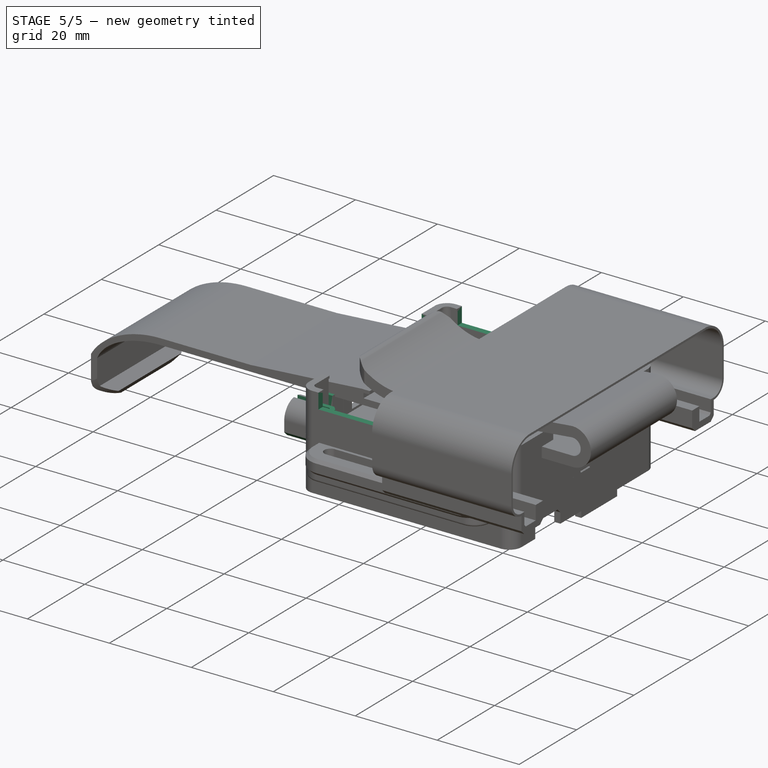
[diagram: stage 5 of 5 — iso view after this stage's code; geometry added in this stage tinted green]
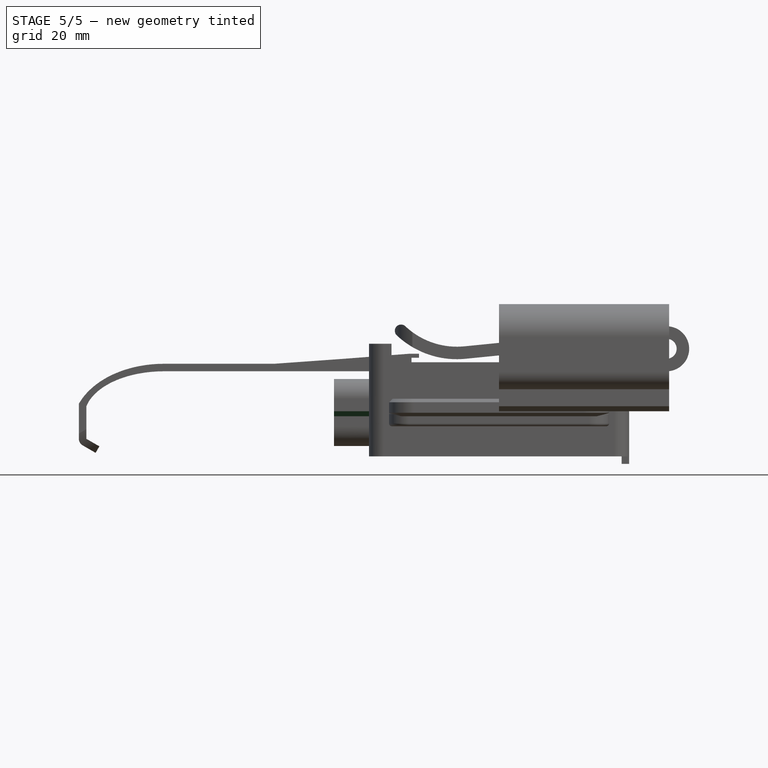
[diagram: stage 5 of 5 — front view after this stage's code; geometry added in this stage tinted green]
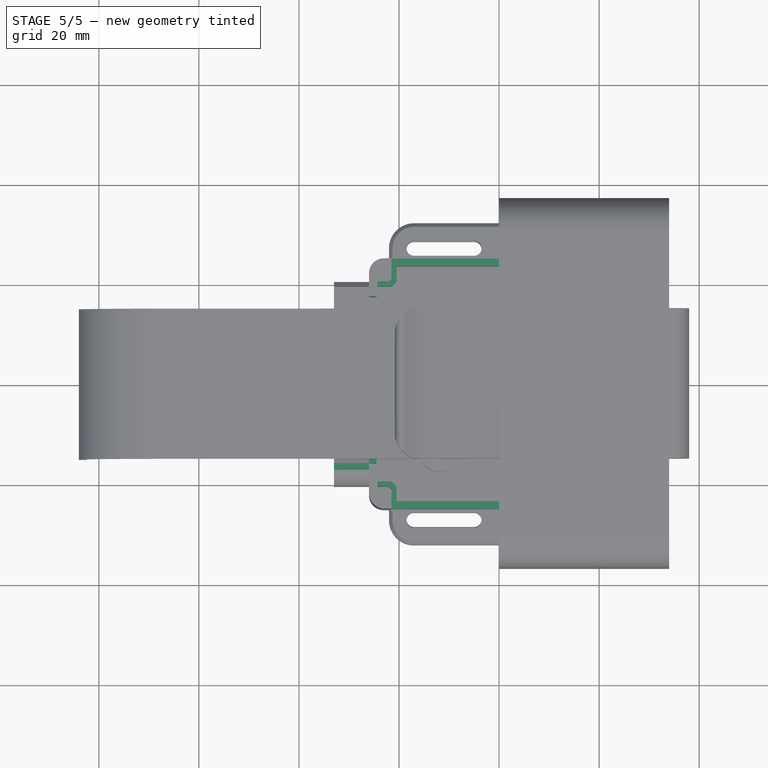
[diagram: stage 5 of 5 — top view after this stage's code; geometry added in this stage tinted green]
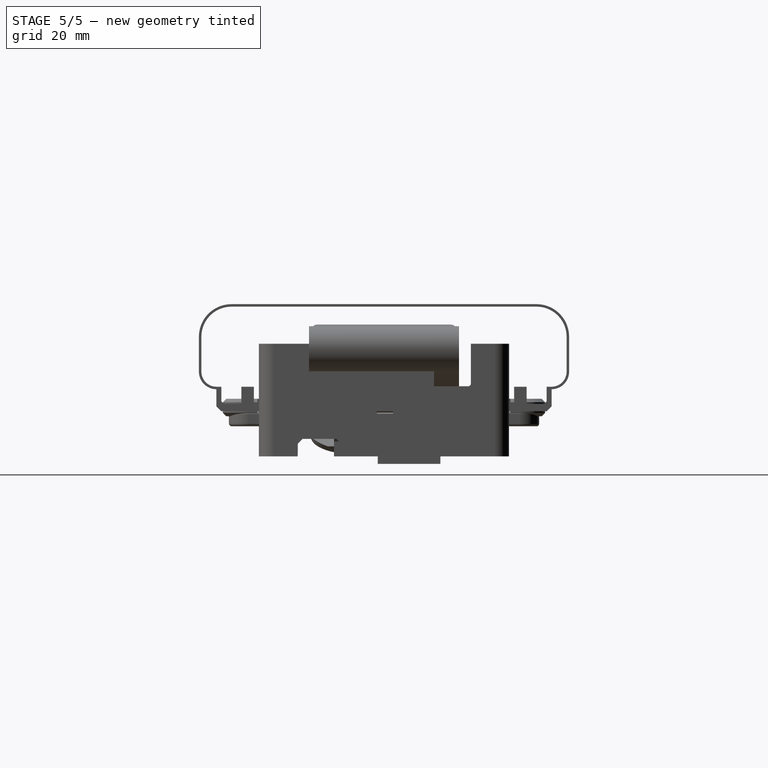
[diagram: stage 5 of 5 — right view after this stage's code; geometry added in this stage tinted green]
FEATURE [Sketcher::SketchObject] Sketch036  label="antenna front pocket001"
  ExternalGeometry = -> [Pad013]
  MapMode = 5
  Placement = pos=(-32.9976,-0.00341675,0) rot=(0.57739,-0.57733,-0.57733;2.09434rad)
  Support = -> [Pad013]
  sketch-geometry (1):
    g0: Circle CenterX=16.5 CenterY=3.5 CenterZ=0 NormalX=0 NormalY=0 NormalZ=1 AngleXU=0 Radius=2.6
  constraints (2):
    c: Radius(g0) = 2.6
    c: Coincident(g0,g-3)
FEATURE [PartDesign::Pocket] Pocket017
  BaseFeature = -> Pad013
  Length = 8
  Profile = -> Sketch036
  Type = 0
FEATURE [Sketcher::SketchObject] Sketch037  label="antenna front slot001"
  ExternalGeometry = -> [Pocket017]
  MapMode = 5
  Placement = pos=(-32.9976,-0.00341675,0) rot=(0.57739,-0.57733,-0.57733;2.09434rad)
  Support = -> [Pocket017]
  sketch-geometry (4):
    g0: ArcOfCircle CenterX=16.5 CenterY=3.5 CenterZ=0 NormalX=0 NormalY=0 NormalZ=1 AngleXU=0 Radius=0.65 StartAngle=3.14159 EndAngle=6.28319
    g1: LineSegment StartX=17.15 StartY=3.5 StartZ=0 EndX=17.15 EndY=14.5 EndZ=0
    g2: LineSegment StartX=15.85 StartY=3.5 StartZ=0 EndX=15.85 EndY=14.5 EndZ=0
    g3: LineSegment StartX=17.15 StartY=14.5 StartZ=0 EndX=15.85 EndY=14.5 EndZ=0
  constraints (10):
    c: Tangent(g0,g2) = 1.5708
    c: Tangent(g0,g1) = -1.5708
    c: Coincident(g3,g1)
    c: Coincident(g3,g2)
    c: Horizontal(g3)
    c: PointOnObject(g2,g-3)
    c: Vertical(g2)
    c: Vertical(g1)
    c: DistanceX(g0,g0) = 1.3
    c: Coincident(g0,g-4)
FEATURE [PartDesign::Pocket] Pocket018
  BaseFeature = -> Pocket017
  Length = 10
  Profile = -> Sketch037
  Type = 0
FEATURE [Sketcher::SketchObject] Sketch031  label="cut top bot through all"
  MapMode = 5
  Placement = pos=(0,0,1.5) rot=(0,0,1;0rad)
  Support = -> [Pocket018]
  sketch-geometry (68):
    g0: LineSegment StartX=-26 StartY=8.5 StartZ=0 EndX=-10.5 EndY=8.5 EndZ=0
    g1: LineSegment StartX=-10.5 StartY=8.5 StartZ=0 EndX=-10.5 EndY=-9 EndZ=0
    g2: LineSegment StartX=-10.5 StartY=-9 StartZ=0 EndX=-11.2 EndY=-9 EndZ=0
    g3: LineSegment StartX=-26 StartY=-9 StartZ=0 EndX=-26 EndY=8.5 EndZ=0
    g4: LineSegment StartX=-26 StartY=17.375 StartZ=0 EndX=-13 EndY=17.375 EndZ=0
    g5: LineSegment StartX=-13 StartY=17.375 StartZ=0 EndX=-13 EndY=10 EndZ=0
    g6: LineSegment StartX=-13 StartY=10 StartZ=0 EndX=-26 EndY=10 EndZ=0
    g7: LineSegment StartX=-26 StartY=10 StartZ=0 EndX=-26 EndY=17.375 EndZ=0
    g8: LineSegment StartX=21.5 StartY=-15.5 StartZ=0 EndX=24.5 EndY=-15.5 EndZ=0
    g9: LineSegment StartX=24.5 StartY=-15.5 StartZ=0 EndX=24.5 EndY=-8 EndZ=0
    g10: LineSegment StartX=24.5 StartY=-8 StartZ=0 EndX=21.5 EndY=-8 EndZ=0
    g11: LineSegment StartX=21.5 StartY=-8 StartZ=0 EndX=21.5 EndY=-15.5 EndZ=0
    g12: ArcOfCircle CenterX=-12 CenterY=-13.5 CenterZ=0 NormalX=0 NormalY=0 NormalZ=1 AngleXU=0 Radius=0.8 StartAngle=3.14159 EndAngle=6.28319
    g13: LineSegment StartX=-12.8 StartY=-9 StartZ=0 EndX=-12.8 EndY=-13.5 EndZ=0
    g14: LineSegment StartX=-11.2 StartY=-9 StartZ=0 EndX=-11.2 EndY=-13.5 EndZ=0
    g15: LineSegment StartX=-12.8 StartY=-9 StartZ=0 EndX=-26 EndY=-9 EndZ=0
    g16: LineSegment StartX=-24.5 StartY=-12 StartZ=0 EndX=-16 EndY=-12 EndZ=0
    g17: LineSegment StartX=-16 StartY=-12 StartZ=0 EndX=-16 EndY=-15.5 EndZ=0
    g18: LineSegment StartX=-16 StartY=-15.5 StartZ=0 EndX=-24.5 EndY=-15.5 EndZ=0
    g19: LineSegment StartX=-24.5 StartY=-15.5 StartZ=0 EndX=-24.5 EndY=-12 EndZ=0
    g20: LineSegment StartX=-17 StartY=-17.5 StartZ=0 EndX=-17 EndY=-20 EndZ=0
    g21: LineSegment StartX=-17 StartY=-20 StartZ=0 EndX=-16.5 EndY=-20 EndZ=0
    g22: LineSegment StartX=-16.5 StartY=-20 StartZ=0 EndX=-16.5 EndY=-18 EndZ=0
    g23: LineSegment StartX=-16.5 StartY=-18 StartZ=0 EndX=16.5 EndY=-18 EndZ=0
    g24: LineSegment StartX=16.5 StartY=-18 StartZ=0 EndX=16.5 EndY=-20 EndZ=0
    g25: LineSegment StartX=16.5 StartY=-20 StartZ=0 EndX=17 EndY=-20 EndZ=0
    g26: LineSegment StartX=17 StartY=-20 StartZ=0 EndX=17 EndY=-17.5 EndZ=0
    g27: LineSegment StartX=17 StartY=-17.5 StartZ=0 EndX=-17 EndY=-17.5 EndZ=0
    g28: LineSegment StartX=-17 StartY=-21 StartZ=0 EndX=-16.5 EndY=-21 EndZ=0
    g29: LineSegment StartX=-16.5 StartY=-21 StartZ=0 EndX=-16.5 EndY=-23 EndZ=0
    g30: LineSegment StartX=-16.5 StartY=-23 StartZ=0 EndX=16.5 EndY=-23 EndZ=0
    g31: LineSegment StartX=16.5 StartY=-23 StartZ=0 EndX=16.5 EndY=-21 EndZ=0
    g32: LineSegment StartX=16.5 StartY=-21 StartZ=0 EndX=17 EndY=-21 EndZ=0
    g33: LineSegment StartX=17 StartY=-21 StartZ=0 EndX=17 EndY=-23.5 EndZ=0
    g34: LineSegment StartX=17 StartY=-23.5 StartZ=0 EndX=-17 EndY=-23.5 EndZ=0
    g35: LineSegment StartX=-17 StartY=-23.5 StartZ=0 EndX=-17 EndY=-21 EndZ=0
    g36: LineSegment StartX=-2.5 StartY=-0.5 StartZ=0 EndX=19.5 EndY=-0.5 EndZ=0
    g37: LineSegment StartX=19.5 StartY=-0.5 StartZ=0 EndX=19.5 EndY=-2.5 EndZ=0
    g38: LineSegment StartX=19.5 StartY=-2.5 StartZ=0 EndX=-2.5 EndY=-2.5 EndZ=0
    g39: LineSegment StartX=-2.5 StartY=-2.5 StartZ=0 EndX=-2.5 EndY=-0.5 EndZ=0
    g40: LineSegment StartX=-2.5 StartY=0.5 StartZ=0 EndX=19.5 EndY=0.5 EndZ=0
    g41: LineSegment StartX=19.5 StartY=0.5 StartZ=0 EndX=19.5 EndY=2.5 EndZ=0
    g42: LineSegment StartX=19.5 StartY=2.5 StartZ=0 EndX=-2.5 EndY=2.5 EndZ=0
    g43: LineSegment StartX=-2.5 StartY=2.5 StartZ=0 EndX=-2.5 EndY=0.5 EndZ=0
    g44: LineSegment StartX=19.5 StartY=3.5 StartZ=0 EndX=-2.5 EndY=3.5 EndZ=0
    g45: LineSegment StartX=-2.5 StartY=3.5 StartZ=0 EndX=-2.5 EndY=5.5 EndZ=0
    g46: LineSegment StartX=-2.5 StartY=5.5 StartZ=0 EndX=19.5 EndY=5.5 EndZ=0
    g47: LineSegment StartX=19.5 StartY=5.5 StartZ=0 EndX=19.5 EndY=3.5 EndZ=0
    g48: LineSegment StartX=-2.5 StartY=6.5 StartZ=0 EndX=19.5 EndY=6.5 EndZ=0
    g49: LineSegment StartX=19.5 StartY=6.5 StartZ=0 EndX=19.5 EndY=8.5 EndZ=0
    g50: LineSegment StartX=19.5 StartY=8.5 StartZ=0 EndX=-2.5 EndY=8.5 EndZ=0
    g51: LineSegment StartX=-2.5 StartY=8.5 StartZ=0 EndX=-2.5 EndY=6.5 EndZ=0
    g52: LineSegment StartX=19.5 StartY=9.5 StartZ=0 EndX=-2.5 EndY=9.5 EndZ=0
    g53: LineSegment StartX=-2.5 StartY=9.5 StartZ=0 EndX=-2.5 EndY=11.5 EndZ=0
    g54: LineSegment StartX=-2.5 StartY=11.5 StartZ=0 EndX=19.5 EndY=11.5 EndZ=0
    g55: LineSegment StartX=19.5 StartY=11.5 StartZ=0 EndX=19.5 EndY=9.5 EndZ=0
    g56: LineSegment StartX=-2.5 StartY=12.5 StartZ=0 EndX=19.5 EndY=12.5 EndZ=0
    g57: LineSegment StartX=19.5 StartY=12.5 StartZ=0 EndX=19.5 EndY=14.5 EndZ=0
    g58: LineSegment StartX=19.5 StartY=14.5 StartZ=0 EndX=-2.5 EndY=14.5 EndZ=0
    g59: LineSegment StartX=-2.5 StartY=14.5 StartZ=0 EndX=-2.5 EndY=12.5 EndZ=0
    g60: LineSegment StartX=19.5 StartY=16 StartZ=0 EndX=-2.5 EndY=16 EndZ=0
    g61: LineSegment StartX=-2.5 StartY=16 StartZ=0 EndX=-2.5 EndY=18 EndZ=0
    g62: LineSegment StartX=-2.5 StartY=18 StartZ=0 EndX=19.5 EndY=18 EndZ=0
    g63: LineSegment StartX=19.5 StartY=18 StartZ=0 EndX=19.5 EndY=16 EndZ=0
    g64: LineSegment StartX=-17 StartY=20 StartZ=0 EndX=17 EndY=20 EndZ=0
    g65: LineSegment StartX=17 StartY=20 StartZ=0 EndX=17 EndY=23.5 EndZ=0
    g66: LineSegment StartX=17 StartY=23.5 StartZ=0 EndX=-17 EndY=23.5 EndZ=0
    g67: LineSegment StartX=-17 StartY=23.5 StartZ=0 EndX=-17 EndY=20 EndZ=0
  constraints (137):
    c: Coincident(g0,g1)
    c: Coincident(g1,g2)
    c: Coincident(g15,g3)
    c: Coincident(g3,g0)
    c: Horizontal(g0)
    c: Horizontal(g2)
    c: Vertical(g1)
    c: Vertical(g3)
    c: Coincident(g4,g5)
    c: Coincident(g5,g6)
    c: Coincident(g6,g7)
    c: Coincident(g7,g4)
    c: Horizontal(g4)
    c: Horizontal(g6)
    c: Vertical(g5)
    c: Vertical(g7)
    c: Coincident(g8,g9)
    c: Coincident(g9,g10)
    c: Coincident(g10,g11)
    c: Coincident(g11,g8)
    c: Horizontal(g8)
    c: Horizontal(g10)
    c: Vertical(g9)
    c: Vertical(g11)
    c: Tangent(g13,g12)
    c: Tangent(g14,g12)
    c: Vertical(g13)
    c: DistanceX(g12,g12) = 1.6
    c: Vertical(g14)
    c: Tangent(g2,g15)
    c: Coincident(g2,g14)
    c: Coincident(g13,g15)
    c: Coincident(g16,g17)
    c: Coincident(g17,g18)
    c: Coincident(g18,g19)
    c: Coincident(g19,g16)
    c: Horizontal(g16)
    c: Horizontal(g18)
    c: Vertical(g17)
    c: Vertical(g19)
    c: Vertical(g20)
    c: Coincident(g20,g21)
    c: Horizontal(g21)
    c: Coincident(g21,g22)
    c: Vertical(g22)
    c: Coincident(g22,g23)
    c: Horizontal(g23)
    c: Coincident(g23,g24)
    c: Vertical(g24)
    c: Coincident(g24,g25)
    c: Horizontal(g25)
    c: Coincident(g25,g26)
    c: Vertical(g26)
    c: Coincident(g27,g20)
    c: Horizontal(g27)
    c: Horizontal(g28)
    c: Coincident(g28,g29)
    c: Vertical(g29)
    c: Coincident(g29,g30)
    c: Horizontal(g30)
    c: Coincident(g30,g31)
    c: Vertical(g31)
    c: Coincident(g31,g32)
    c: Horizontal(g32)
    c: Coincident(g32,g33)
    c: Vertical(g33)
    c: Coincident(g33,g34)
    c: Horizontal(g34)
    c: Coincident(g34,g35)
    c: Coincident(g35,g28)
    c: Vertical(g35)
    c: Coincident(g36,g37)
    c: Coincident(g37,g38)
    c: Coincident(g38,g39)
    c: Coincident(g39,g36)
    c: Horizontal(g36)
    c: Horizontal(g38)
    c: Vertical(g37)
    c: Vertical(g39)
    c: Coincident(g40,g41)
    c: Coincident(g41,g42)
    c: Coincident(g42,g43)
    c: Coincident(g43,g40)
    c: Horizontal(g40)
    c: Horizontal(g42)
    c: Vertical(g41)
    c: Vertical(g43)
    c: Coincident(g44,g45)
    c: Coincident(g45,g46)
    c: Coincident(g46,g47)
    c: Coincident(g47,g44)
    c: Horizontal(g44)
    c: Horizontal(g46)
    c: Vertical(g45)
    c: Vertical(g47)
    c: Coincident(g48,g49)
    c: Coincident(g49,g50)
    c: Coincident(g50,g51)
    c: Coincident(g51,g48)
    c: Horizontal(g48)
    c: Horizontal(g50)
    c: Vertical(g49)
    c: Vertical(g51)
    c: Coincident(g52,g53)
    c: Coincident(g53,g54)
    c: Coincident(g54,g55)
    c: Coincident(g55,g52)
    c: Horizontal(g52)
    c: Horizontal(g54)
    c: Vertical(g53)
    c: Vertical(g55)
    c: Coincident(g56,g57)
    c: Coincident(g57,g58)
    c: Coincident(g58,g59)
    c: Coincident(g59,g56)
    c: Horizontal(g56)
    c: Horizontal(g58)
    c: Vertical(g57)
    c: Vertical(g59)
    c: Coincident(g60,g61)
    c: Coincident(g61,g62)
    c: Coincident(g62,g63)
    c: Coincident(g63,g60)
    c: Horizontal(g60)
    c: Horizontal(g62)
    c: Vertical(g61)
    c: Vertical(g63)
    c: Coincident(g64,g65)
    c: Coincident(g65,g66)
    c: Coincident(g66,g67)
    c: Coincident(g67,g64)
    c: Horizontal(g64)
    c: Horizontal(g66)
    c: Vertical(g65)
    c: Vertical(g67)
    c: DistanceY(g11,g11) = 7.5
    c: DistanceY(g10) = -8
FEATURE [PartDesign::Pocket] Pocket019
  BaseFeature = -> Pocket018
  Length = 5
  Midplane = true
  Profile = -> Sketch031
  Type = 1
FEATURE [Sketcher::SketchObject] Sketch038  label="bottom snap"
  MapMode = 5
  Placement = pos=(0,0,14.5) rot=(0,0,1;0rad)
  Support = -> [Pocket019]
  sketch-geometry (24):
    g0: ArcOfCircle CenterX=-23.0993 CenterY=22.1008 CenterZ=0 NormalX=0 NormalY=0 NormalZ=1 AngleXU=0 Radius=1.2 StartAngle=1.5708 EndAngle=3.14159
    g1: ArcOfCircle CenterX=23.0994 CenterY=22.078 CenterZ=0 NormalX=0 NormalY=0 NormalZ=1 AngleXU=0 Radius=1.2 StartAngle=0 EndAngle=1.5708
    g2: LineSegment StartX=23.0994 StartY=23.278 StartZ=0 EndX=-23.0993 EndY=23.3008 EndZ=0
    g3: ArcOfCircle CenterX=-23.0948 CenterY=-22.0009 CenterZ=0 NormalX=0 NormalY=0 NormalZ=1 AngleXU=0 Radius=1.2 StartAngle=3.14159 EndAngle=4.71239
    g4: LineSegment StartX=-24.2993 StartY=22.1008 StartZ=0 EndX=-24.2948 EndY=-22.0009 EndZ=0
    g5: ArcOfCircle CenterX=23.0228 CenterY=-22.0994 CenterZ=0 NormalX=0 NormalY=0 NormalZ=1 AngleXU=0 Radius=1.2 StartAngle=4.71239 EndAngle=6.28319
    g6: LineSegment StartX=23.0228 StartY=-23.2994 StartZ=0 EndX=-23.0948 EndY=-23.2009 EndZ=0
    g7: LineSegment StartX=24.2228 StartY=-22.0994 StartZ=0 EndX=24.2994 EndY=22.078 EndZ=0
    g8: LineSegment [constr] StartX=-26 StartY=-22.0009 StartZ=0 EndX=-23.0948 EndY=-22.0009 EndZ=0
    g9: LineSegment [constr] StartX=-23.0948 StartY=-22.0009 StartZ=0 EndX=-23.0948 EndY=-25 EndZ=0
    g10: LineSegment [constr] StartX=23.0228 StartY=-25 StartZ=0 EndX=23.0228 EndY=-22.0994 EndZ=0
    g11: LineSegment [constr] StartX=23.0228 StartY=-22.0994 StartZ=0 EndX=26 EndY=-22.0994 EndZ=0
    g12: LineSegment [constr] StartX=26 StartY=22.078 StartZ=0 EndX=23.0994 EndY=22.078 EndZ=0
    g13: LineSegment [constr] StartX=23.0994 StartY=22.078 StartZ=0 EndX=23.0994 EndY=25 EndZ=0
    g14: LineSegment [constr] StartX=-23.0993 StartY=25 StartZ=0 EndX=-23.0993 EndY=22.1008 EndZ=0
    g15: LineSegment [constr] StartX=-23.0993 StartY=22.1008 StartZ=0 EndX=-26 EndY=22.1008 EndZ=0
    g16: LineSegment StartX=-25.0993 StartY=22.1008 StartZ=0 EndX=-25.0948 EndY=-22.0009 EndZ=0
    g17: ArcOfCircle CenterX=-23.0993 CenterY=22.1008 CenterZ=0 NormalX=0 NormalY=0 NormalZ=1 AngleXU=0 Radius=2 StartAngle=1.5708 EndAngle=3.14159
    g18: LineSegment StartX=23.0994 StartY=24.078 StartZ=0 EndX=-23.0993 EndY=24.1008 EndZ=0
    g19: ArcOfCircle CenterX=23.0994 CenterY=22.078 CenterZ=0 NormalX=0 NormalY=0 NormalZ=1 AngleXU=0 Radius=2 StartAngle=0 EndAngle=1.5708
    g20: LineSegment StartX=25.0228 StartY=-22.0994 StartZ=0 EndX=25.0994 EndY=22.078 EndZ=0
    g21: ArcOfCircle CenterX=23.0228 CenterY=-22.0994 CenterZ=0 NormalX=0 NormalY=0 NormalZ=1 AngleXU=0 Radius=2 StartAngle=4.71239 EndAngle=6.28319
    g22: LineSegment StartX=23.0228 StartY=-24.0994 StartZ=0 EndX=-23.0948 EndY=-24.0009 EndZ=0
    g23: ArcOfCircle CenterX=-23.0948 CenterY=-22.0009 CenterZ=0 NormalX=0 NormalY=0 NormalZ=1 AngleXU=0 Radius=2 StartAngle=3.14159 EndAngle=4.71239
  constraints (60):
    c: Coincident(g2,g1)
    c: Coincident(g2,g0)
    c: Radius(g1) = 1.2
    c: Coincident(g4,g0)
    c: Coincident(g4,g3)
    c: Coincident(g6,g5)
    c: Coincident(g6,g3)
    c: Coincident(g7,g5)
    c: Coincident(g7,g1)
    c: Coincident(g8,g9)
    c: Vertical(g9)
    c: Horizontal(g8)
    c: PointOnObject(g3,g8)
    c: PointOnObject(g3,g9)
    c: Coincident(g10,g11)
    c: PointOnObject(g5,g11)
    c: PointOnObject(g5,g10)
    c: Coincident(g10,g5)
    c: Vertical(g10)
    c: Horizontal(g11)
    c: Coincident(g12,g13)
    c: Vertical(g13)
    c: PointOnObject(g1,g12)
    c: PointOnObject(g1,g13)
    c: Coincident(g12,g1)
    c: Horizontal(g12)
    c: Coincident(g14,g15)
    c: Horizontal(g15)
    c: Vertical(g14)
    c: Coincident(g0,g14)
    c: PointOnObject(g0,g15)
    c: PointOnObject(g0,g14)
    c: Coincident(g3,g8)
    c: Coincident(g18,g19)
    c: Coincident(g18,g17)
    c: Equal(g17,g19)
    c: Coincident(g16,g17)
    c: Coincident(g22,g21)
    c: Coincident(g20,g21)
    c: Coincident(g20,g19)
    c: Coincident(g19,g1)
    c: PointOnObject(g18,g13)
    c: PointOnObject(g19,g12)
    c: Radius(g19) = 2
    c: Coincident(g17,g0)
    c: PointOnObject(g17,g14)
    c: PointOnObject(g16,g15)
    c: Coincident(g5,g21)
    c: PointOnObject(g20,g11)
    c: PointOnObject(g21,g10)
    c: Coincident(g23,g3)
    c: Coincident(g23,g22)
    c: Coincident(g23,g16)
    c: PointOnObject(g22,g9)
    c: PointOnObject(g16,g8)
    c: Equal(g17,g23)
    c: Equal(g23,g21)
    c: Equal(g1,g0)
    c: Equal(g0,g3)
    c: Equal(g3,g5)
FEATURE [PartDesign::Pad] Pad014
  BaseFeature = -> Pocket019
  Length = 0.6
  Length2 = 100
  Profile = -> Sketch038
  Reversed = true
  Type = 0
FEATURE [Sketcher::SketchObject] Sketch030  label="top inner padding"
  MapMode = 5
  Placement = pos=(0,0,1.5) rot=(0,0,1;0rad)
  Support = -> [Pad014]
  sketch-geometry (4):
    g0: LineSegment StartX=-25 StartY=10 StartZ=0 EndX=-7 EndY=10 EndZ=0
    g1: LineSegment StartX=-7 StartY=10 StartZ=0 EndX=-7 EndY=8.5 EndZ=0
    g2: LineSegment StartX=-7 StartY=8.5 StartZ=0 EndX=-25 EndY=8.5 EndZ=0
    g3: LineSegment StartX=-25 StartY=8.5 StartZ=0 EndX=-25 EndY=10 EndZ=0
  constraints (8):
    c: Coincident(g0,g1)
    c: Coincident(g1,g2)
    c: Coincident(g2,g3)
    c: Coincident(g3,g0)
    c: Horizontal(g0)
    c: Horizontal(g2)
    c: Vertical(g1)
    c: Vertical(g3)
FEATURE [PartDesign::Pad] Pad015
  BaseFeature = -> Pad014
  Length = 2
  Length2 = 100
  Profile = -> Sketch030
  Type = 0
FEATURE [Sketcher::SketchObject] Sketch028  label="pcb corners"
  MapMode = 5
  Placement = pos=(0,0,1.5) rot=(0,0,1;0rad)
  Support = -> [Pad015]
  sketch-geometry (32):
    g0: LineSegment StartX=20.5 StartY=-24.5 StartZ=0 EndX=21.5 EndY=-24.5 EndZ=0
    g1: LineSegment StartX=21.5 StartY=-24.5 StartZ=0 EndX=21.5 EndY=-21 EndZ=0
    g2: LineSegment StartX=21.5 StartY=-21 StartZ=0 EndX=22 EndY=-20.5 EndZ=0
    g3: LineSegment StartX=22 StartY=-20.5 StartZ=0 EndX=25.5 EndY=-20.5 EndZ=0
    g4: LineSegment StartX=25.5 StartY=-20.5 StartZ=0 EndX=25.5 EndY=-19.5 EndZ=0
    g5: LineSegment StartX=25.5 StartY=-19.5 StartZ=0 EndX=21.5 EndY=-19.5 EndZ=0
    g6: LineSegment StartX=21.5 StartY=-19.5 StartZ=0 EndX=20.5 EndY=-20.5 EndZ=0
    g7: LineSegment StartX=20.5 StartY=-20.5 StartZ=0 EndX=20.5 EndY=-24.5 EndZ=0
    g8: LineSegment StartX=-20.5 StartY=-24.5 StartZ=0 EndX=-21.5 EndY=-24.5 EndZ=0
    g9: LineSegment StartX=-21.5 StartY=-24.5 StartZ=0 EndX=-21.5 EndY=-21 EndZ=0
    g10: LineSegment StartX=-21.5 StartY=-21 StartZ=0 EndX=-22 EndY=-20.5 EndZ=0
    g11: LineSegment StartX=-22 StartY=-20.5 StartZ=0 EndX=-25.5 EndY=-20.5 EndZ=0
    g12: LineSegment StartX=-25.5 StartY=-20.5 StartZ=0 EndX=-25.5 EndY=-19.5 EndZ=0
    g13: LineSegment StartX=-25.5 StartY=-19.5 StartZ=0 EndX=-21.5 EndY=-19.5 EndZ=0
    g14: LineSegment StartX=-21.5 StartY=-19.5 StartZ=0 EndX=-20.5 EndY=-20.5 EndZ=0
    g15: LineSegment StartX=-20.5 StartY=-20.5 StartZ=0 EndX=-20.5 EndY=-24.5 EndZ=0
    g16: LineSegment StartX=20.5 StartY=24.5 StartZ=0 EndX=21.5 EndY=24.5 EndZ=0
    g17: LineSegment StartX=21.5 StartY=24.5 StartZ=0 EndX=21.5 EndY=21 EndZ=0
    g18: LineSegment StartX=21.5 StartY=21 StartZ=0 EndX=22 EndY=20.5 EndZ=0
    g19: LineSegment StartX=22 StartY=20.5 StartZ=0 EndX=25.5 EndY=20.5 EndZ=0
    g20: LineSegment StartX=25.5 StartY=20.5 StartZ=0 EndX=25.5 EndY=19.5 EndZ=0
    g21: LineSegment StartX=25.5 StartY=19.5 StartZ=0 EndX=21.5 EndY=19.5 EndZ=0
    g22: LineSegment StartX=21.5 StartY=19.5 StartZ=0 EndX=20.5 EndY=20.5 EndZ=0
    g23: LineSegment StartX=20.5 StartY=20.5 StartZ=0 EndX=20.5 EndY=24.5 EndZ=0
    g24: LineSegment StartX=-20.5 StartY=24.5 StartZ=0 EndX=-21.5 EndY=24.5 EndZ=0
    g25: LineSegment StartX=-21.5 StartY=24.5 StartZ=0 EndX=-21.5 EndY=21 EndZ=0
    g26: LineSegment StartX=-21.5 StartY=21 StartZ=0 EndX=-22 EndY=20.5 EndZ=0
    g27: LineSegment StartX=-22 StartY=20.5 StartZ=0 EndX=-25.5 EndY=20.5 EndZ=0
    g28: LineSegment StartX=-25.5 StartY=20.5 StartZ=0 EndX=-25.5 EndY=19.5 EndZ=0
    g29: LineSegment StartX=-25.5 StartY=19.5 StartZ=0 EndX=-21.5 EndY=19.5 EndZ=0
    g30: LineSegment StartX=-21.5 StartY=19.5 StartZ=0 EndX=-20.5 EndY=20.5 EndZ=0
    g31: LineSegment StartX=-20.5 StartY=20.5 StartZ=0 EndX=-20.5 EndY=24.5 EndZ=0
  constraints (64):
    c: Horizontal(g0)
    c: Coincident(g0,g1)
    c: Vertical(g1)
    c: Coincident(g1,g2)
    c: Coincident(g2,g3)
    c: Horizontal(g3)
    c: Coincident(g3,g4)
    c: Vertical(g4)
    c: Coincident(g4,g5)
    c: Horizontal(g5)
    c: Coincident(g5,g6)
    c: Coincident(g6,g7)
    c: Coincident(g7,g0)
    c: Vertical(g7)
    c: Equal(g1,g3)
    c: Equal(g5,g7)
    c: Horizontal(g8)
    c: Coincident(g8,g9)
    c: Vertical(g9)
    c: Coincident(g9,g10)
    c: Coincident(g10,g11)
    c: Horizontal(g11)
    c: Coincident(g11,g12)
    c: Vertical(g12)
    c: Coincident(g12,g13)
    c: Horizontal(g13)
    c: Coincident(g13,g14)
    c: Coincident(g14,g15)
    c: Coincident(g15,g8)
    c: Vertical(g15)
    c: Equal(g9,g11)
    c: Equal(g13,g15)
    c: Horizontal(g16)
    c: Coincident(g16,g17)
    c: Vertical(g17)
    c: Coincident(g17,g18)
    c: Coincident(g18,g19)
    c: Horizontal(g19)
    c: Coincident(g19,g20)
    c: Vertical(g20)
    c: Coincident(g20,g21)
    c: Horizontal(g21)
    c: Coincident(g21,g22)
    c: Coincident(g22,g23)
    c: Coincident(g23,g16)
    c: Vertical(g23)
    c: Equal(g17,g19)
    c: Equal(g21,g23)
    c: Horizontal(g24)
    c: Coincident(g24,g25)
    c: Vertical(g25)
    c: Coincident(g25,g26)
    c: Coincident(g26,g27)
    c: Horizontal(g27)
    c: Coincident(g27,g28)
    c: Vertical(g28)
    c: Coincident(g28,g29)
    c: Horizontal(g29)
    c: Coincident(g29,g30)
    c: Coincident(g30,g31)
    c: Coincident(g31,g24)
    c: Vertical(g31)
    c: Equal(g25,g27)
    c: Equal(g29,g31)
FEATURE [PartDesign::Pad] Pad016
  BaseFeature = -> Pad015
  Length = 7.8
  Length2 = 100
  Profile = -> Sketch028
  Type = 0
FEATURE [Sketcher::SketchObject] Sketch040  label="back sdcard+microusb cut"
  ExternalGeometry = -> [Pad016]
  MapMode = 5
  Placement = pos=(26,0,0) rot=(0.57735,0.57735,0.57735;2.0944rad)
  Support = -> [Pad016]
  sketch-geometry (9):
    g0: LineSegment StartX=-11 StartY=10.8 StartZ=0 EndX=8.5 EndY=10.8 EndZ=0
    g1: LineSegment StartX=1.5 StartY=14.5 StartZ=0 EndX=-11 EndY=14.5 EndZ=0
    g2: LineSegment StartX=-11 StartY=14.5 StartZ=0 EndX=-11 EndY=10.8 EndZ=0
    g3: LineSegment StartX=9 StartY=6 StartZ=0 EndX=17 EndY=6 EndZ=0
    g4: LineSegment StartX=17 StartY=6 StartZ=0 EndX=17.5 EndY=6.5 EndZ=0
    g5: LineSegment StartX=17.5 StartY=6.5 StartZ=0 EndX=17.5 EndY=14.5 EndZ=0
    g6: LineSegment StartX=17.5 StartY=14.5 StartZ=0 EndX=1.5 EndY=14.5 EndZ=0
    g7: LineSegment StartX=8.5 StartY=6.5 StartZ=0 EndX=9 EndY=6 EndZ=0
    g8: LineSegment StartX=8.5 StartY=10.8 StartZ=0 EndX=8.5 EndY=6.5 EndZ=0
  constraints (20):
    c: Coincident(g1,g2)
    c: Coincident(g2,g0)
    c: Horizontal(g0)
    c: Horizontal(g1)
    c: Vertical(g2)
    c: DistanceX(g1,g1) = 12.5
    c: Horizontal(g3)
    c: Coincident(g3,g4)
    c: Coincident(g4,g5)
    c: Vertical(g5)
    c: Horizontal(g6)
    c: Coincident(g7,g3)
    c: PointOnObject(g1,g-3)
    c: Coincident(g6,g5)
    c: Coincident(g8,g0)
    c: Coincident(g8,g7)
    c: Vertical(g8)
    c: Coincident(g6,g1)
    c: DistanceY(g2,g2) = 3.7
    c: DistanceY(g3,g5) = 8.5
FEATURE [PartDesign::Pocket] Pocket020
  BaseFeature = -> Pad016
  Length = 5
  Profile = -> Sketch040
  Type = 0
FEATURE [Sketcher::SketchObject] Sketch041  label="front bottom cut"
  ExternalGeometry = -> [Pocket020]
  MapMode = 5
  Placement = pos=(-25.9976,-0.00269193,0) rot=(0.57739,-0.57733,-0.57733;2.09434rad)
  Support = -> [Pocket020]
  sketch-geometry (4):
    g0: LineSegment StartX=-17.3777 StartY=9.5 StartZ=0 EndX=17.15 EndY=9.5 EndZ=0
    g1: LineSegment StartX=17.15 StartY=9.5 StartZ=0 EndX=17.15 EndY=14.5 EndZ=0
    g2: LineSegment StartX=17.15 StartY=14.5 StartZ=0 EndX=-17.3777 EndY=14.5 EndZ=0
    g3: LineSegment StartX=-17.3777 StartY=14.5 StartZ=0 EndX=-17.3777 EndY=9.5 EndZ=0
  constraints (11):
    c: Coincident(g0,g1)
    c: Coincident(g1,g2)
    c: Coincident(g2,g3)
    c: Coincident(g3,g0)
    c: Horizontal(g0)
    c: Horizontal(g2)
    c: Vertical(g1)
    c: Vertical(g3)
    c: Coincident(g1,g-4)
    c: Coincident(g-3,g2)
    c: DistanceY(g1,g1) = 5
FEATURE [PartDesign::Pocket] Pocket021
  BaseFeature = -> Pocket020
  Length = 5
  Profile = -> Sketch041
  Type = 0
FEATURE [Sketcher::SketchObject] Sketch042  label="sides bottom cut"
  ExternalGeometry = -> [Pocket021]
  MapMode = 5
  Placement = pos=(0,25.0014,0) rot=(0,0.707107,0.707107;3.14159rad)
  Support = -> [Pocket021]
  sketch-geometry (4):
    g0: LineSegment StartX=-21.5 StartY=14.5 StartZ=0 EndX=21.5 EndY=14.5 EndZ=0
    g1: LineSegment StartX=21.5 StartY=14.5 StartZ=0 EndX=21.5 EndY=10.8 EndZ=0
    g2: LineSegment StartX=21.5 StartY=10.8 StartZ=0 EndX=-21.5 EndY=10.8 EndZ=0
    g3: LineSegment StartX=-21.5 StartY=10.8 StartZ=0 EndX=-21.5 EndY=14.5 EndZ=0
  constraints (12):
    c: Coincident(g0,g1)
    c: Coincident(g1,g2)
    c: Coincident(g2,g3)
    c: Coincident(g3,g0)
    c: Horizontal(g0)
    c: Horizontal(g2)
    c: Vertical(g1)
    c: Vertical(g3)
    c: DistanceY(g1,g1) = 3.7
    c: Symmetric(g2,g1,g-2)
    c: DistanceX(g2,g2) = 43
    c: PointOnObject(g0,g-3)
FEATURE [PartDesign::Pocket] Pocket022
  Length = 5
  Profile = -> Sketch042
  Type = 1
FEATURE [Sketcher::SketchObject] Sketch047  label="bot inner shape"
  ExternalGeometry = -> [Pad017]
  MapMode = 5
  Placement = pos=(0,0,0) rot=(1,0,0;3.14159rad)
  Support = -> [Pad017]
  sketch-geometry (12):
    g0: LineSegment StartX=20.5 StartY=-23.3 StartZ=0 EndX=-20.5 EndY=-23.3 EndZ=0
    g1: LineSegment StartX=-20.5 StartY=23.3 StartZ=0 EndX=20.5 EndY=23.3 EndZ=0
    g2: LineSegment StartX=20.5 StartY=23.3 StartZ=0 EndX=20.5 EndY=20.3 EndZ=0
    g3: LineSegment StartX=20.5 StartY=20.3 StartZ=0 EndX=26 EndY=20.3 EndZ=0
    g4: LineSegment StartX=-20.5 StartY=23.3 StartZ=0 EndX=-20.5 EndY=20.3 EndZ=0
    g5: LineSegment StartX=-20.5 StartY=20.3 StartZ=0 EndX=-26 EndY=20.3 EndZ=0
    g6: LineSegment StartX=-26 StartY=20.3 StartZ=0 EndX=-26 EndY=-20.3 EndZ=0
    g7: LineSegment StartX=-26 StartY=-20.3 StartZ=0 EndX=-20.5 EndY=-20.3 EndZ=0
    g8: LineSegment StartX=-20.5 StartY=-20.3 StartZ=0 EndX=-20.5 EndY=-23.3 EndZ=0
    g9: LineSegment StartX=20.5 StartY=-23.3 StartZ=0 EndX=20.5 EndY=-20.3 EndZ=0
    g10: LineSegment StartX=20.5 StartY=-20.3 StartZ=0 EndX=26 EndY=-20.3 EndZ=0
    g11: LineSegment StartX=26 StartY=-20.3 StartZ=0 EndX=26 EndY=20.3 EndZ=0
  constraints (37):
    c: Coincident(g2,g3)
    c: Horizontal(g3)
    c: Vertical(g2)
    c: PointOnObject(g2,g1)
    c: Coincident(g1,g2)
    c: Horizontal(g1)
    c: Coincident(g1,g4)
    c: Vertical(g4)
    c: Coincident(g4,g5)
    c: Coincident(g5,g6)
    c: Vertical(g6)
    c: Coincident(g6,g7)
    c: Horizontal(g7)
    c: Coincident(g7,g8)
    c: Coincident(g8,g0)
    c: Vertical(g8)
    c: Horizontal(g0)
    c: Coincident(g0,g9)
    c: Coincident(g9,g10)
    c: Horizontal(g10)
    c: Coincident(g10,g11)
    c: Coincident(g11,g3)
    c: Vertical(g11)
    c: Vertical(g9)
    c: Equal(g8,g9)
    c: Equal(g9,g2)
    c: Equal(g2,g4)
    c: DistanceY(g4,g4) = 3
    c: Equal(g3,g5)
    c: Equal(g5,g7)
    c: Equal(g7,g10)
    c: PointOnObject(g-4,g0)
    c: PointOnObject(g-6,g11)
    c: PointOnObject(g-3,g1)
    c: PointOnObject(g-5,g6)
    c: Horizontal(g5)
    c: DistanceX(g5,g5) = 5.5
FEATURE [Sketcher::SketchObject] Sketch050  label="ant plug"
  Placement = pos=(0,0,0) rot=(1,0,0;3.14159rad)
  sketch-geometry (4):
    g0: ArcOfCircle CenterX=-17.0121 CenterY=3.5 CenterZ=0 NormalX=0 NormalY=0 NormalZ=1 AngleXU=0 Radius=2.4 StartAngle=0.150739 EndAngle=6.09898
    g1: LineSegment StartX=-14.6393 StartY=3.8604 StartZ=0 EndX=-12.5121 EndY=3.8604 EndZ=0
    g2: LineSegment StartX=-12.5121 StartY=3.8604 StartZ=0 EndX=-12.5121 EndY=3.0604 EndZ=0
    g3: LineSegment StartX=-12.5121 StartY=3.0604 StartZ=0 EndX=-14.6527 EndY=3.0604 EndZ=0
  constraints (10):
    c: Coincident(g1,g2)
    c: Coincident(g2,g3)
    c: Horizontal(g1)
    c: Horizontal(g3)
    c: Vertical(g2)
    c: Coincident(g1,g0)
    c: Coincident(g3,g0)
    c: DistanceX(g0,g2) = 4.5
    c: DistanceY(g2,g1) = 0.8
    c: Radius(g0) = 2.4
FEATURE [PartDesign::Pad] Pad019
  Length = 4
  Length2 = 100
  Placement = pos=(0,0,0) rot=(1,0,0;3.14159rad)
  Profile = -> Sketch050
  Reversed = true
  Type = 0
FEATURE [Sketcher::SketchObject] Sketch051
  ExternalGeometry = -> [Pad019]
  MapMode = 5
  Placement = pos=(0,0,4) rot=(0,0,1;0rad)
  Support = -> [Pad019]
  sketch-geometry (1):
    g0: Circle CenterX=-17.0121 CenterY=-3.5 CenterZ=0 NormalX=0 NormalY=0 NormalZ=1 AngleXU=0 Radius=1.5
  constraints (2):
    c: Coincident(g0,g-3)
    c: Radius(g0) = 1.5
FEATURE [PartDesign::Pocket] Pocket026
  BaseFeature = -> Pad019
  Length = 3
  Placement = pos=(0,0,0) rot=(1,0,0;3.14159rad)
  Profile = -> Sketch051
  Type = 0
FEATURE [PartDesign::Body] Body006  label="antenna plug"
  Group = -> [Sketch050,Pad019,Sketch051,Pocket026]
  Origin = -> Origin018
  Placement = pos=(0,0,-11.5) rot=(0,0,1;0rad)
  Tip = -> Pocket026
FEATURE [PartDesign::Chamfer] Chamfer004
  Base = -> Pocket022 [Edge43,Edge417,Edge416,Edge37,Edge40,Edge38,Edge28]
  BaseFeature = -> Pocket022
  Size = 1
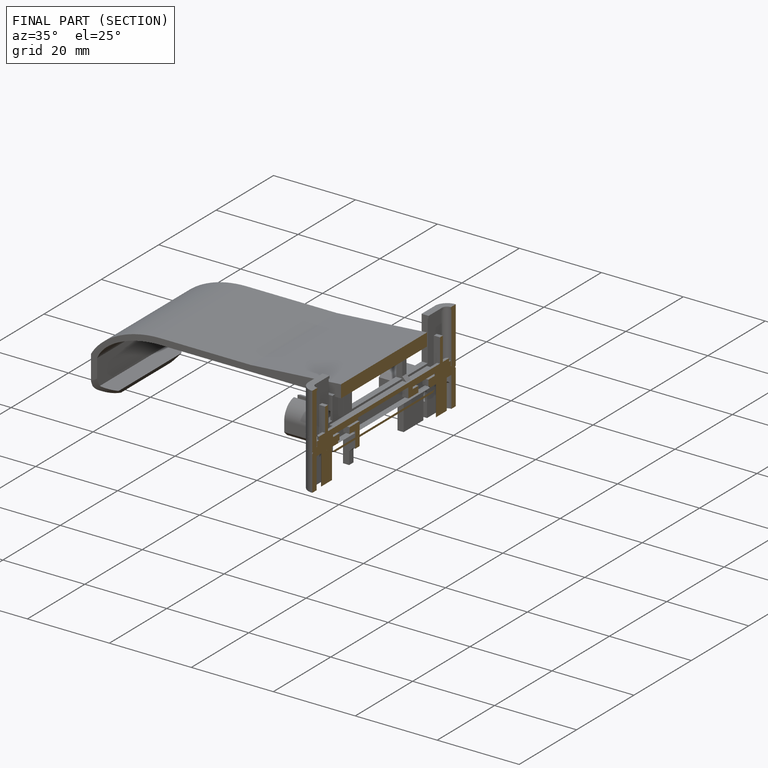
[diagram: finished part — half-section view (interior)]
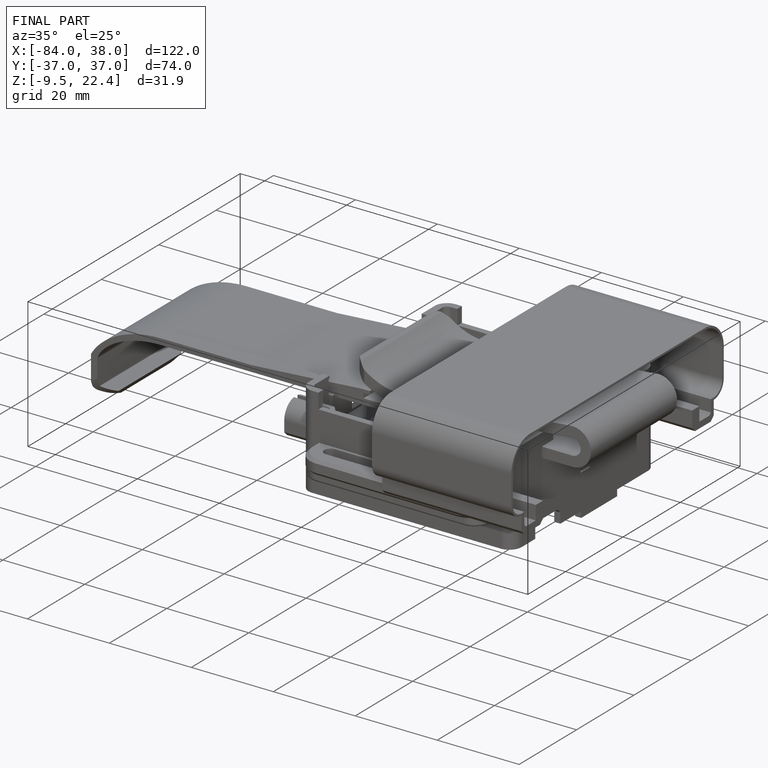
[diagram: finished part — iso view with bounding-box wireframe]
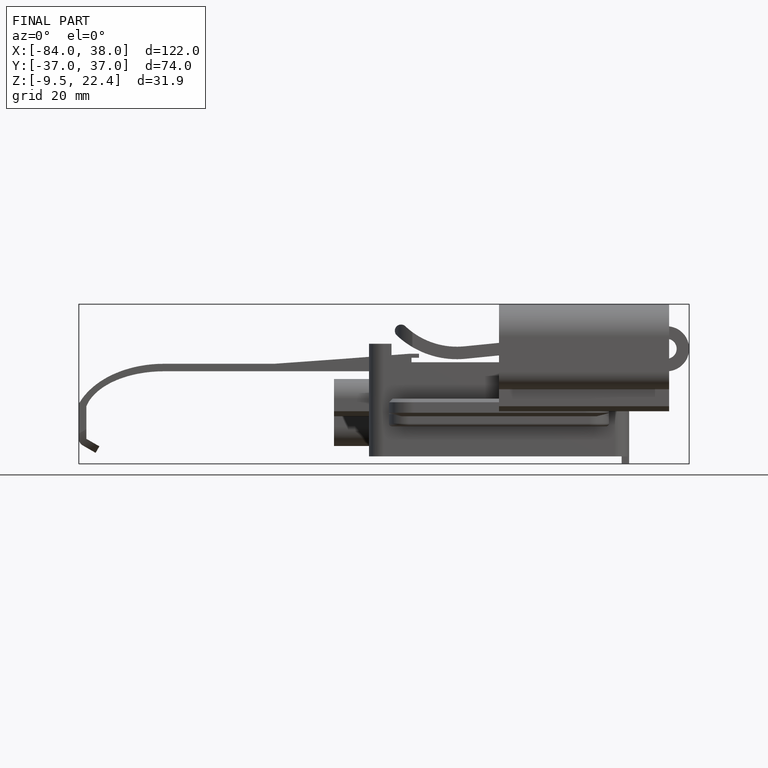
[diagram: finished part — front view with bounding-box wireframe]
